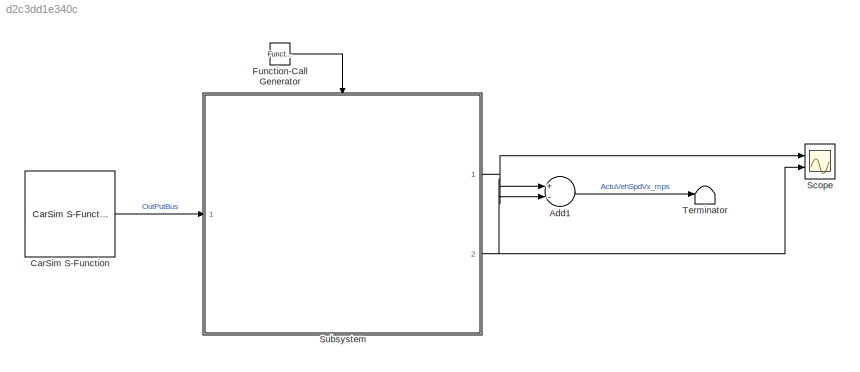
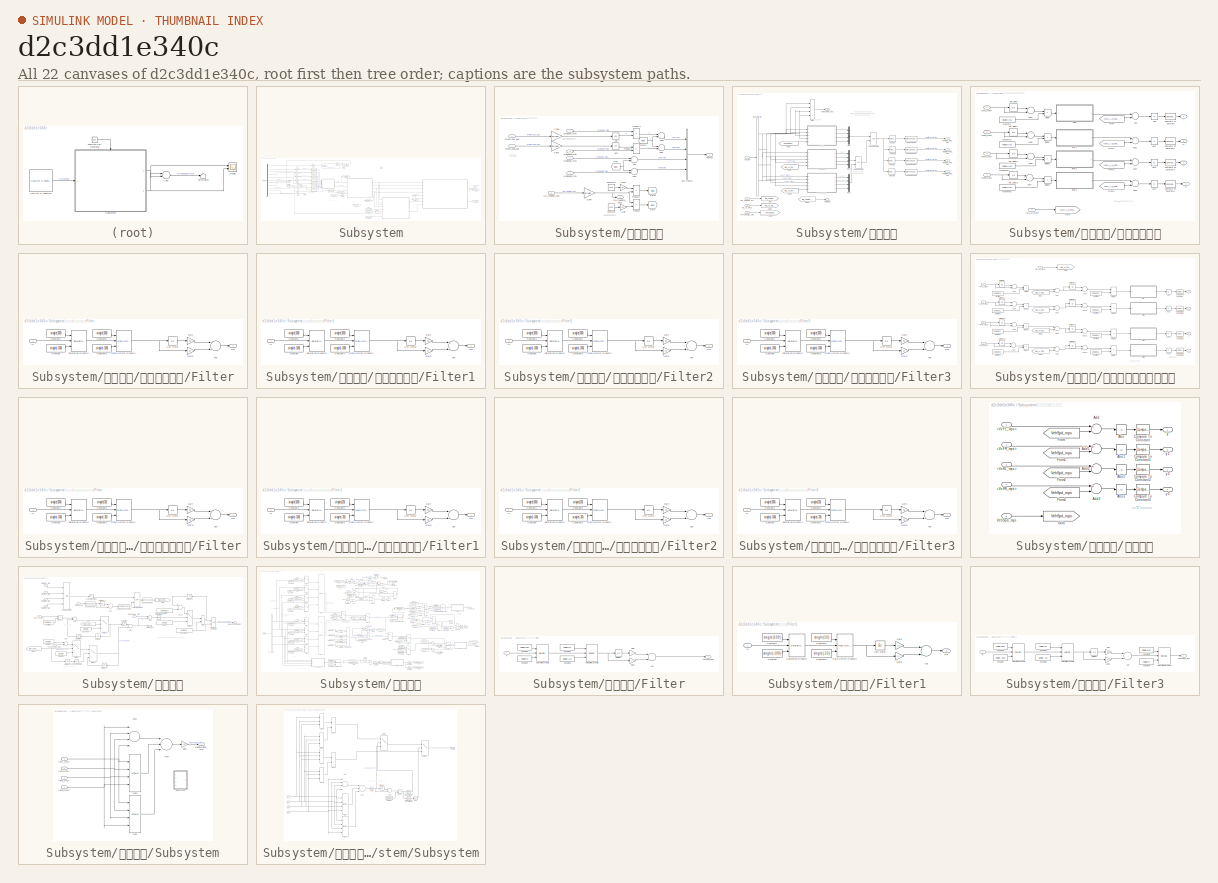
[diagram: thumbnail index - all 22 canvases of the model, root first then tree order]
MODEL slx_d2c3dd1e340c
KIND model
CONFIG AbsTol = auto
CONFIG EnableMultiTasking = off
CONFIG FixedStep = 0.01
CONFIG MaxStep = auto
CONFIG MinStep = auto
CONFIG RelTol = 1e-3
CONFIG SampleTimeConstraint = Unconstrained
CONFIG Solver = VariableStepAuto
CONFIG SolverName = VariableStepAuto
CONFIG StartTime = 0.0
CONFIG StopTime = 120
BLOCK [Sum] Add1
  InputSameDT = off
  Inputs = +-
  OutDataTypeStr = Inherit: Inherit via internal rule
  Ports = [2, 1]
  SaturateOnIntegerOverflow = off
BLOCK [Reference] CarSim S-Function  REF=Solver_SF/CarSim S-Function
  Ports = [0, 1]
  Priority = 1
  SourceBlock = Solver_SF/CarSim S-Function
  SourceProductName = CarSim S-Function
  SourceType = Vehicle math model library
BLOCK [Reference] Function-Call Generator  REF=simulink/Ports &
Subsystems/Function-Call
Generator
  Ports = [0, 1]
  SourceBlock = simulink/Ports &\nSubsystems/Function-Call\nGenerator
  SourceProductBaseCode = SL
  SourceProductName = Simulink
  SourceType = Function-Call Generator
BLOCK [Scope] Scope
  Floating = off
  NumInputPorts = 2
  Ports = [2]
  ScopeSpecificationString = Simulink.scopes.TimeScopeBlockCfg('CurrentConfiguration', extmgr.ConfigurationSet(extmgr.Configuration('Core','General UI',true),extmgr.Configuration('Core','Source UI',true),extmgr.Configuration('Sources','WiredSimulink',true),extmgr.Configuration('Visuals','Time Domain',true,'SerializedDisplays',{struct('MinYLimReal','-28.6292','MaxYLimReal','257.62547','YLabelReal','','MinYLimMag','0.00000','Ma...<+1528ch>
BLOCK [SubSystem] Subsystem
  Ports = [1, 2, 0, 1]
  RequestExecContextInheritance = off
BLOCK [Outport] Subsystem/ActuVehSpdVx_mps
  IconDisplay = Port number
  VectorParamsAs1DForOutWhenUnconnected = on
BLOCK [Sum] Subsystem/Add
  InputSameDT = off
  Inputs = -+
  OutDataTypeStr = Inherit: Inherit via internal rule
  Ports = [2, 1]
  SaturateOnIntegerOverflow = off
BLOCK [DataTypeConversion] Subsystem/Cast To Double
  OutDataTypeStr = single
  RndMeth = Floor
  SaturateOnIntegerOverflow = off
BLOCK [DataTypeConversion] Subsystem/Cast To Double1
  OutDataTypeStr = single
  RndMeth = Floor
  SaturateOnIntegerOverflow = off
BLOCK [DataTypeConversion] Subsystem/Cast To Double2
  OutDataTypeStr = single
  RndMeth = Floor
  SaturateOnIntegerOverflow = off
BLOCK [DataTypeConversion] Subsystem/Cast To Double3
  OutDataTypeStr = single
  RndMeth = Floor
  SaturateOnIntegerOverflow = off
BLOCK [DataTypeConversion] Subsystem/Cast To Double4
  OutDataTypeStr = single
  RndMeth = Floor
  SaturateOnIntegerOverflow = off
BLOCK [DataTypeConversion] Subsystem/Cast To Double5
  OutDataTypeStr = single
  RndMeth = Floor
  SaturateOnIntegerOverflow = off
BLOCK [DataTypeConversion] Subsystem/Cast To Double6
  OutDataTypeStr = single
  RndMeth = Floor
  SaturateOnIntegerOverflow = off
BLOCK [DataTypeConversion] Subsystem/Cast To Double7
  OutDataTypeStr = single
  RndMeth = Floor
  SaturateOnIntegerOverflow = off
BLOCK [Constant] Subsystem/Constant
  Value = 0.01
BLOCK [Demux] Subsystem/Demux
  DisplayOption = bar
  Outputs = 11
  Ports = [1, 11]
BLOCK [Product] Subsystem/Divide
  InputSameDT = off
  Inputs = */
  OutDataTypeStr = Inherit: Inherit via internal rule
  Ports = [2, 1]
  RndMeth = Floor
  SaturateOnIntegerOverflow = off
BLOCK [From] Subsystem/From
  Commented = on
  GotoTag = IMU_Aa_mpss
BLOCK [From] Subsystem/From1
  GotoTag = Vxii_mps
BLOCK [From] Subsystem/From2
  GotoTag = VehVxEst_mps
BLOCK [From] Subsystem/From3
  GotoTag = VehVxEst_mps
BLOCK [From] Subsystem/From4
  GotoTag = WhlSpdMax_mps
BLOCK [From] Subsystem/From5
  GotoTag = IMU_Aa_mpss
BLOCK [From] Subsystem/From6
  GotoTag = AccEst_mpss
BLOCK [Gain] Subsystem/Gain
  Gain = 1/3.6
  OutDataTypeStr = Inherit: Inherit via internal rule
  ParamDataTypeStr = Inherit: Inherit via internal rule
  SaturateOnIntegerOverflow = off
BLOCK [Gain] Subsystem/Gain1
  Gain = 1/3.6
  OutDataTypeStr = Inherit: Inherit via internal rule
  ParamDataTypeStr = Inherit: Inherit via internal rule
  SaturateOnIntegerOverflow = off
BLOCK [Gain] Subsystem/Gain2
  Gain = 1/3.6
  OutDataTypeStr = Inherit: Inherit via internal rule
  ParamDataTypeStr = Inherit: Inherit via internal rule
  SaturateOnIntegerOverflow = off
BLOCK [Gain] Subsystem/Gain3
  Gain = 1/3.6
  OutDataTypeStr = Inherit: Inherit via internal rule
  ParamDataTypeStr = Inherit: Inherit via internal rule
  SaturateOnIntegerOverflow = off
BLOCK [Gain] Subsystem/Gain4
  Gain = 1/3.6
  OutDataTypeStr = Inherit: Inherit via internal rule
  ParamDataTypeStr = Inherit: Inherit via internal rule
  SaturateOnIntegerOverflow = off
BLOCK [Gain] Subsystem/Gain5
  Gain = 10
  OutDataTypeStr = Inherit: Inherit via internal rule
  ParamDataTypeStr = Inherit: Inherit via internal rule
  SaturateOnIntegerOverflow = off
BLOCK [Gain] Subsystem/Gain6
  Gain = 10
  OutDataTypeStr = Inherit: Inherit via internal rule
  ParamDataTypeStr = Inherit: Inherit via internal rule
  SaturateOnIntegerOverflow = off
BLOCK [Gain] Subsystem/Gain7
  Gain = -1
  OutDataTypeStr = Inherit: Inherit via internal rule
  ParamDataTypeStr = Inherit: Inherit via internal rule
  SaturateOnIntegerOverflow = off
BLOCK [Gain] Subsystem/Gain8
  Gain = -1
  OutDataTypeStr = Inherit: Inherit via internal rule
  ParamDataTypeStr = Inherit: Inherit via internal rule
  SaturateOnIntegerOverflow = off
BLOCK [Gain] Subsystem/Gain9
  Gain = -1
  OutDataTypeStr = Inherit: Inherit via internal rule
  ParamDataTypeStr = Inherit: Inherit via internal rule
  SaturateOnIntegerOverflow = off
BLOCK [Goto] Subsystem/Goto
  GotoTag = VehVxEst_mps
BLOCK [Goto] Subsystem/Goto1
  GotoTag = IMU_Aa_mpss
BLOCK [Goto] Subsystem/Goto2
  GotoTag = Vxii_mps
BLOCK [Goto] Subsystem/Goto3
  GotoTag = WhlSpdMax_mps
BLOCK [Goto] Subsystem/Goto4
  GotoTag = AccEst_mpss
BLOCK [Inport] Subsystem/OutPutBus
  IconDisplay = Port number
BLOCK [Saturate] Subsystem/Saturation
  InputPortMap = u0
  LowerLimit = -100
  Ports = [1, 1]
  UpperLimit = 100
BLOCK [Terminator] Subsystem/Terminator
BLOCK [Terminator] Subsystem/Terminator1
BLOCK [UnitDelay] Subsystem/Unit Delay
  InputProcessing = Elements as channels (sample based)
  SampleTime = -1
BLOCK [UnitDelay] Subsystem/Unit Delay1
  InputProcessing = Elements as channels (sample based)
  SampleTime = -1
BLOCK [UnitDelay] Subsystem/Unit Delay2
  InputProcessing = Elements as channels (sample based)
  SampleTime = -1
BLOCK [Outport] Subsystem/VehVxEst_mps
  IconDisplay = Port number
  Port = 2
  VectorParamsAs1DForOutWhenUnconnected = on
BLOCK [TriggerPort] Subsystem/function
  Ports = []
  StatesWhenEnabling = held
  TriggerType = function-call
  VariantControl = (inherit)
BLOCK [SubSystem] Subsystem/坐标系转换
  Ports = [7, 2]
  RequestExecContextInheritance = off
BLOCK [Sum] Subsystem/坐标系转换/Add
  InputSameDT = off
  Inputs = +-
  OutDataTypeStr = Inherit: Inherit via internal rule
  Ports = [2, 1]
  SaturateOnIntegerOverflow = off
BLOCK [Sum] Subsystem/坐标系转换/Add1
  InputSameDT = off
  OutDataTypeStr = Inherit: Inherit via internal rule
  Ports = [2, 1]
  SaturateOnIntegerOverflow = off
BLOCK [Sum] Subsystem/坐标系转换/Add2
  InputSameDT = off
  Inputs = +-
  OutDataTypeStr = Inherit: Inherit via internal rule
  Ports = [2, 1]
  SaturateOnIntegerOverflow = off
BLOCK [Sum] Subsystem/坐标系转换/Add3
  InputSameDT = off
  OutDataTypeStr = Inherit: Inherit via internal rule
  Ports = [2, 1]
  SaturateOnIntegerOverflow = off
BLOCK [Trigonometry] Subsystem/坐标系转换/Asin
  Operator = cos
  Ports = [1, 1]
BLOCK [Trigonometry] Subsystem/坐标系转换/Asin1
  Operator = cos
  Ports = [1, 1]
BLOCK [BusCreator] Subsystem/坐标系转换/Bus Creator
  DisplayOption = bar
  InheritFromInputs = on
  Inputs = 4
  Ports = [4, 1]
BLOCK [Constant] Subsystem/坐标系转换/Constant
  Value = Ldwr
BLOCK [Constant] Subsystem/坐标系转换/Constant1
  Value = Ldwf
BLOCK [From] Subsystem/坐标系转换/From
  GotoTag = Vldwr
BLOCK [From] Subsystem/坐标系转换/From2
  GotoTag = Vldwf
BLOCK [Gain] Subsystem/坐标系转换/Gain
  Gain = 1/2
  OutDataTypeStr = Inherit: Inherit via internal rule
  ParamDataTypeStr = Inherit: Inherit via internal rule
  SaturateOnIntegerOverflow = off
BLOCK [Gain] Subsystem/坐标系转换/Gain1
  Gain = 1/2
  OutDataTypeStr = Inherit: Inherit via internal rule
  ParamDataTypeStr = Inherit: Inherit via internal rule
  SaturateOnIntegerOverflow = off
BLOCK [Gain] Subsystem/坐标系转换/Gain2
  Gain = pi/180
  OutDataTypeStr = Inherit: Inherit via internal rule
  ParamDataTypeStr = Inherit: Inherit via internal rule
  SaturateOnIntegerOverflow = off
BLOCK [Gain] Subsystem/坐标系转换/Gain3
  Gain = pi/180
  OutDataTypeStr = Inherit: Inherit via internal rule
  ParamDataTypeStr = Inherit: Inherit via internal rule
  SaturateOnIntegerOverflow = off
BLOCK [Gain] Subsystem/坐标系转换/Gain4
  Gain = pi/180
  OutDataTypeStr = Inherit: Inherit via internal rule
  ParamDataTypeStr = Inherit: Inherit via internal rule
  SaturateOnIntegerOverflow = off
BLOCK [Goto] Subsystem/坐标系转换/Goto
  GotoTag = Vldwr
BLOCK [Goto] Subsystem/坐标系转换/Goto1
  GotoTag = Vldwf
BLOCK [Inport] Subsystem/坐标系转换/IMU_YawRate_dps
  IconDisplay = Port number
  Port = 5
BLOCK [Outport] Subsystem/坐标系转换/IMU_YawRate_dps1
  IconDisplay = Port number
  Port = 2
  VectorParamsAs1DForOutWhenUnconnected = on
BLOCK [Product] Subsystem/坐标系转换/Product
  InputSameDT = off
  OutDataTypeStr = Inherit: Inherit via internal rule
  Ports = [2, 1]
  RndMeth = Floor
  SaturateOnIntegerOverflow = off
BLOCK [Product] Subsystem/坐标系转换/Product1
  InputSameDT = off
  OutDataTypeStr = Inherit: Inherit via internal rule
  Ports = [2, 1]
  RndMeth = Floor
  SaturateOnIntegerOverflow = off
BLOCK [Product] Subsystem/坐标系转换/Product2
  InputSameDT = off
  OutDataTypeStr = Inherit: Inherit via internal rule
  Ports = [2, 1]
  RndMeth = Floor
  SaturateOnIntegerOverflow = off
BLOCK [Product] Subsystem/坐标系转换/Product3
  InputSameDT = off
  OutDataTypeStr = Inherit: Inherit via internal rule
  Ports = [2, 1]
  RndMeth = Floor
  SaturateOnIntegerOverflow = off
BLOCK [Outport] Subsystem/坐标系转换/Vxii_mps
  IconDisplay = Port number
  VectorParamsAs1DForOutWhenUnconnected = on
BLOCK [Inport] Subsystem/坐标系转换/WhlSpdFL_mps
  IconDisplay = Port number
BLOCK [Inport] Subsystem/坐标系转换/WhlSpdFR_mps
  IconDisplay = Port number
  Port = 2
BLOCK [Inport] Subsystem/坐标系转换/WhlSpdRL_mps
  IconDisplay = Port number
  Port = 3
BLOCK [Inport] Subsystem/坐标系转换/WhlSpdRR_mps
  IconDisplay = Port number
  Port = 4
BLOCK [Inport] Subsystem/坐标系转换/WhlStrAngL_deg
  IconDisplay = Port number
  Port = 6
BLOCK [Inport] Subsystem/坐标系转换/WhlStrAngR_deg
  IconDisplay = Port number
  Port = 7
BLOCK [SubSystem] Subsystem/打滑判断
  Ports = [4, 5]
  RequestExecContextInheritance = off
BLOCK [BusSelector] Subsystem/打滑判断/Bus Selector
  OutputAsBus = off
  OutputSignals = VxFL_mps,VxFR_mps,VxRL_mps,VxRR_mps
  Ports = [1, 4]
BLOCK [DataTypeConversion] Subsystem/打滑判断/Cast To Double
  OutDataTypeStr = boolean
  RndMeth = Floor
  SaturateOnIntegerOverflow = off
BLOCK [DataTypeConversion] Subsystem/打滑判断/Cast To Double1
  OutDataTypeStr = boolean
  RndMeth = Floor
  SaturateOnIntegerOverflow = off
BLOCK [DataTypeConversion] Subsystem/打滑判断/Cast To Double2
  OutDataTypeStr = boolean
  RndMeth = Floor
  SaturateOnIntegerOverflow = off
BLOCK [DataTypeConversion] Subsystem/打滑判断/Cast To Double3
  OutDataTypeStr = boolean
  RndMeth = Floor
  SaturateOnIntegerOverflow = off
BLOCK [From] Subsystem/打滑判断/From
  GotoTag = IMU_Aa_mpsss
BLOCK [From] Subsystem/打滑判断/From1
  GotoTag = VehSpdEstiZ1_mps
BLOCK [From] Subsystem/打滑判断/From2
  GotoTag = IMU_Aa_mpsss
BLOCK [From] Subsystem/打滑判断/From3
  GotoTag = IMU_YawRate_dps
BLOCK [Goto] Subsystem/打滑判断/Goto
  GotoTag = IMU_YawRate_dps
BLOCK [Goto] Subsystem/打滑判断/Goto1
  GotoTag = IMU_Aa_mpsss
BLOCK [Goto] Subsystem/打滑判断/Goto2
  GotoTag = VehSpdEstiZ1_mps
BLOCK [Inport] Subsystem/打滑判断/IMU_Aa_mpss
  IconDisplay = Port number
  Port = 3
BLOCK [Inport] Subsystem/打滑判断/IMU_YawRate_dps
  IconDisplay = Port number
  Port = 2
BLOCK [Logic] Subsystem/打滑判断/Logical Operator
  AllPortsSameDT = off
  Operator = OR
  OutDataTypeStr = boolean
  Ports = [2, 1]
BLOCK [Logic] Subsystem/打滑判断/Logical Operator1
  AllPortsSameDT = off
  OutDataTypeStr = boolean
  Ports = [2, 1]
BLOCK [MinMax] Subsystem/打滑判断/Min1
  Function = max
  InputSameDT = off
  Inputs = 4
  Ports = [4, 1]
  SaturateOnIntegerOverflow = off
BLOCK [Mux] Subsystem/打滑判断/Mux
  DisplayOption = bar
  Ports = [4, 1]
BLOCK [Mux] Subsystem/打滑判断/Mux1
  DisplayOption = bar
  Ports = [4, 1]
BLOCK [Mux] Subsystem/打滑判断/Mux2
  DisplayOption = bar
  Ports = [4, 1]
BLOCK [Selector] Subsystem/打滑判断/Selector
  IndexOptions = Index vector (dialog)
  Indices = [1]
  InputPortWidth = 4
  OutputSizes = 1
  Ports = [1, 1]
BLOCK [Selector] Subsystem/打滑判断/Selector1
  IndexOptions = Index vector (dialog)
  Indices = [2]
  InputPortWidth = 4
  OutputSizes = 1
  Ports = [1, 1]
BLOCK [Selector] Subsystem/打滑判断/Selector2
  IndexOptions = Index vector (dialog)
  Indices = [3]
  InputPortWidth = 4
  OutputSizes = 1
  Ports = [1, 1]
BLOCK [Selector] Subsystem/打滑判断/Selector3
  IndexOptions = Index vector (dialog)
  Indices = [4]
  InputPortWidth = 4
  OutputSizes = 1
  Ports = [1, 1]
BLOCK [Terminator] Subsystem/打滑判断/Terminator
BLOCK [Inport] Subsystem/打滑判断/VehSpdEstiZ1_mps
  IconDisplay = Port number
  Port = 4
BLOCK [Inport] Subsystem/打滑判断/Vxii_mps
  IconDisplay = Port number
BLOCK [Outport] Subsystem/打滑判断/WhlSlipFLValid_flag
  IconDisplay = Port number
  VectorParamsAs1DForOutWhenUnconnected = on
BLOCK [Outport] Subsystem/打滑判断/WhlSlipFRValid_flag
  IconDisplay = Port number
  Port = 2
  VectorParamsAs1DForOutWhenUnconnected = on
BLOCK [Outport] Subsystem/打滑判断/WhlSlipRLValid_flag
  IconDisplay = Port number
  Port = 3
  VectorParamsAs1DForOutWhenUnconnected = on
BLOCK [Outport] Subsystem/打滑判断/WhlSlipRRValid_flag
  IconDisplay = Port number
  Port = 4
  VectorParamsAs1DForOutWhenUnconnected = on
BLOCK [Outport] Subsystem/打滑判断/WhlSpdMax_mps
  IconDisplay = Port number
  Port = 5
  VectorParamsAs1DForOutWhenUnconnected = on
BLOCK [SubSystem] Subsystem/打滑判断/加速度差判断
  Ports = [5, 4]
  RequestExecContextInheritance = off
BLOCK [Inport] Subsystem/打滑判断/加速度差判断/<VxFL_mps>
  IconDisplay = Port number
BLOCK [Inport] Subsystem/打滑判断/加速度差判断/<VxFR_mps>
  IconDisplay = Port number
  Port = 2
BLOCK [Inport] Subsystem/打滑判断/加速度差判断/<VxRL_mps>
  IconDisplay = Port number
  Port = 3
BLOCK [Inport] Subsystem/打滑判断/加速度差判断/<VxRR_mps>
  IconDisplay = Port number
  Port = 4
BLOCK [Abs] Subsystem/打滑判断/加速度差判断/Abs
  SaturateOnIntegerOverflow = off
BLOCK [Abs] Subsystem/打滑判断/加速度差判断/Abs1
  SaturateOnIntegerOverflow = off
BLOCK [Abs] Subsystem/打滑判断/加速度差判断/Abs2
  SaturateOnIntegerOverflow = off
BLOCK [Abs] Subsystem/打滑判断/加速度差判断/Abs3
  SaturateOnIntegerOverflow = off
BLOCK [Sum] Subsystem/打滑判断/加速度差判断/Add
  InputSameDT = off
  Inputs = +-
  OutDataTypeStr = Inherit: Inherit via internal rule
  Ports = [2, 1]
  SaturateOnIntegerOverflow = off
BLOCK [Sum] Subsystem/打滑判断/加速度差判断/Add1
  InputSameDT = off
  Inputs = +-
  OutDataTypeStr = Inherit: Inherit via internal rule
  Ports = [2, 1]
  SaturateOnIntegerOverflow = off
BLOCK [Sum] Subsystem/打滑判断/加速度差判断/Add2
  InputSameDT = off
  Inputs = +-
  OutDataTypeStr = Inherit: Inherit via internal rule
  Ports = [2, 1]
  SaturateOnIntegerOverflow = off
BLOCK [Sum] Subsystem/打滑判断/加速度差判断/Add3
  InputSameDT = off
  Inputs = +-
  OutDataTypeStr = Inherit: Inherit via internal rule
  Ports = [2, 1]
  SaturateOnIntegerOverflow = off
BLOCK [Sum] Subsystem/打滑判断/加速度差判断/Add4
  InputSameDT = off
  Inputs = -+
  OutDataTypeStr = Inherit: Inherit via internal rule
  Ports = [2, 1]
  SaturateOnIntegerOverflow = off
BLOCK [Sum] Subsystem/打滑判断/加速度差判断/Add5
  InputSameDT = off
  Inputs = -+
  OutDataTypeStr = Inherit: Inherit via internal rule
  Ports = [2, 1]
  SaturateOnIntegerOverflow = off
BLOCK [Sum] Subsystem/打滑判断/加速度差判断/Add6
  InputSameDT = off
  Inputs = -+
  OutDataTypeStr = Inherit: Inherit via internal rule
  Ports = [2, 1]
  SaturateOnIntegerOverflow = off
BLOCK [Sum] Subsystem/打滑判断/加速度差判断/Add7
  InputSameDT = off
  Inputs = -+
  OutDataTypeStr = Inherit: Inherit via internal rule
  Ports = [2, 1]
  SaturateOnIntegerOverflow = off
BLOCK [Reference] Subsystem/打滑判断/加速度差判断/Compare To Constant  REF=simulink/Logic and Bit
Operations/Compare
To Constant
  Ports = [1, 1]
  SourceBlock = simulink/Logic and Bit\nOperations/Compare\nTo Constant
  SourceProductBaseCode = SL
  SourceProductName = Simulink
  SourceType = Compare To Constant
BLOCK [Reference] Subsystem/打滑判断/加速度差判断/Compare To Constant1  REF=simulink/Logic and Bit
Operations/Compare
To Constant
  Ports = [1, 1]
  SourceBlock = simulink/Logic and Bit\nOperations/Compare\nTo Constant
  SourceProductBaseCode = SL
  SourceProductName = Simulink
  SourceType = Compare To Constant
BLOCK [Reference] Subsystem/打滑判断/加速度差判断/Compare To Constant2  REF=simulink/Logic and Bit
Operations/Compare
To Constant
  Ports = [1, 1]
  SourceBlock = simulink/Logic and Bit\nOperations/Compare\nTo Constant
  SourceProductBaseCode = SL
  SourceProductName = Simulink
  SourceType = Compare To Constant
BLOCK [Reference] Subsystem/打滑判断/加速度差判断/Compare To Constant3  REF=simulink/Logic and Bit
Operations/Compare
To Constant
  Ports = [1, 1]
  SourceBlock = simulink/Logic and Bit\nOperations/Compare\nTo Constant
  SourceProductBaseCode = SL
  SourceProductName = Simulink
  SourceType = Compare To Constant
BLOCK [Product] Subsystem/打滑判断/加速度差判断/Divide
  InputSameDT = off
  Inputs = */
  OutDataTypeStr = Inherit: Inherit via internal rule
  Ports = [2, 1]
  RndMeth = Floor
  SaturateOnIntegerOverflow = off
BLOCK [Product] Subsystem/打滑判断/加速度差判断/Divide1
  InputSameDT = off
  Inputs = */
  OutDataTypeStr = Inherit: Inherit via internal rule
  Ports = [2, 1]
  RndMeth = Floor
  SaturateOnIntegerOverflow = off
BLOCK [Product] Subsystem/打滑判断/加速度差判断/Divide2
  InputSameDT = off
  Inputs = */
  OutDataTypeStr = Inherit: Inherit via internal rule
  Ports = [2, 1]
  RndMeth = Floor
  SaturateOnIntegerOverflow = off
BLOCK [Product] Subsystem/打滑判断/加速度差判断/Divide3
  InputSameDT = off
  Inputs = */
  OutDataTypeStr = Inherit: Inherit via internal rule
  Ports = [2, 1]
  RndMeth = Floor
  SaturateOnIntegerOverflow = off
BLOCK [SubSystem] Subsystem/打滑判断/加速度差判断/Filter
  Ports = [1, 1]
  RequestExecContextInheritance = off
BLOCK [Sum] Subsystem/打滑判断/加速度差判断/Filter/Add
  InputSameDT = off
  OutDataTypeStr = Inherit: Inherit via internal rule
  Ports = [2, 1]
  SaturateOnIntegerOverflow = off
BLOCK [Constant] Subsystem/打滑判断/加速度差判断/Filter/Constant
  Value = single(-100)
BLOCK [Constant] Subsystem/打滑判断/加速度差判断/Filter/Constant1
  Value = single(100)
BLOCK [Constant] Subsystem/打滑判断/加速度差判断/Filter/Constant2
  Value = single(100)
BLOCK [Constant] Subsystem/打滑判断/加速度差判断/Filter/Constant3
  Value = single(-100)
BLOCK [Gain] Subsystem/打滑判断/加速度差判断/Filter/Gain
  Gain = 0.3
  OutDataTypeStr = Inherit: Inherit via internal rule
  ParamDataTypeStr = Inherit: Inherit via internal rule
  SaturateOnIntegerOverflow = off
BLOCK [Gain] Subsystem/打滑判断/加速度差判断/Filter/Gain1
  Gain = 0.7
  OutDataTypeStr = Inherit: Inherit via internal rule
  ParamDataTypeStr = Inherit: Inherit via internal rule
  SaturateOnIntegerOverflow = off
BLOCK [Inport] Subsystem/打滑判断/加速度差判断/Filter/In
  IconDisplay = Port number
BLOCK [Outport] Subsystem/打滑判断/加速度差判断/Filter/Out
  IconDisplay = Port number
  VectorParamsAs1DForOutWhenUnconnected = on
BLOCK [Reference] Subsystem/打滑判断/加速度差判断/Filter/Rate Limiter Dynamic  REF=simulink/Discontinuities/Rate Limiter
Dynamic
  Ports = [3, 1]
  SourceBlock = simulink/Discontinuities/Rate Limiter\nDynamic
  SourceProductBaseCode = SL
  SourceProductName = Simulink
  SourceType = Rate Limiter Dynamic
BLOCK [Reference] Subsystem/打滑判断/加速度差判断/Filter/Saturation Dynamic  REF=simulink/Discontinuities/Saturation
Dynamic
  Ports = [3, 1]
  SourceBlock = simulink/Discontinuities/Saturation\nDynamic
  SourceProductBaseCode = SL
  SourceProductName = Simulink
  SourceType = Saturation Dynamic
BLOCK [UnitDelay] Subsystem/打滑判断/加速度差判断/Filter/Unit Delay
  InputProcessing = Elements as channels (sample based)
  SampleTime = -1
BLOCK [SubSystem] Subsystem/打滑判断/加速度差判断/Filter1
  Ports = [1, 1]
  RequestExecContextInheritance = off
BLOCK [Sum] Subsystem/打滑判断/加速度差判断/Filter1/Add
  InputSameDT = off
  OutDataTypeStr = Inherit: Inherit via internal rule
  Ports = [2, 1]
  SaturateOnIntegerOverflow = off
BLOCK [Constant] Subsystem/打滑判断/加速度差判断/Filter1/Constant
  Value = single(-100)
BLOCK [Constant] Subsystem/打滑判断/加速度差判断/Filter1/Constant1
  Value = single(100)
BLOCK [Constant] Subsystem/打滑判断/加速度差判断/Filter1/Constant2
  Value = single(100)
BLOCK [Constant] Subsystem/打滑判断/加速度差判断/Filter1/Constant3
  Value = single(-100)
BLOCK [Gain] Subsystem/打滑判断/加速度差判断/Filter1/Gain
  Gain = 0.3
  OutDataTypeStr = Inherit: Inherit via internal rule
  ParamDataTypeStr = Inherit: Inherit via internal rule
  SaturateOnIntegerOverflow = off
BLOCK [Gain] Subsystem/打滑判断/加速度差判断/Filter1/Gain1
  Gain = 0.7
  OutDataTypeStr = Inherit: Inherit via internal rule
  ParamDataTypeStr = Inherit: Inherit via internal rule
  SaturateOnIntegerOverflow = off
BLOCK [Inport] Subsystem/打滑判断/加速度差判断/Filter1/In
  IconDisplay = Port number
BLOCK [Outport] Subsystem/打滑判断/加速度差判断/Filter1/Out
  IconDisplay = Port number
  VectorParamsAs1DForOutWhenUnconnected = on
BLOCK [Reference] Subsystem/打滑判断/加速度差判断/Filter1/Rate Limiter Dynamic  REF=simulink/Discontinuities/Rate Limiter
Dynamic
  Ports = [3, 1]
  SourceBlock = simulink/Discontinuities/Rate Limiter\nDynamic
  SourceProductBaseCode = SL
  SourceProductName = Simulink
  SourceType = Rate Limiter Dynamic
BLOCK [Reference] Subsystem/打滑判断/加速度差判断/Filter1/Saturation Dynamic  REF=simulink/Discontinuities/Saturation
Dynamic
  Ports = [3, 1]
  SourceBlock = simulink/Discontinuities/Saturation\nDynamic
  SourceProductBaseCode = SL
  SourceProductName = Simulink
  SourceType = Saturation Dynamic
BLOCK [UnitDelay] Subsystem/打滑判断/加速度差判断/Filter1/Unit Delay
  InputProcessing = Elements as channels (sample based)
  SampleTime = -1
BLOCK [SubSystem] Subsystem/打滑判断/加速度差判断/Filter2
  Ports = [1, 1]
  RequestExecContextInheritance = off
BLOCK [Sum] Subsystem/打滑判断/加速度差判断/Filter2/Add
  InputSameDT = off
  OutDataTypeStr = Inherit: Inherit via internal rule
  Ports = [2, 1]
  SaturateOnIntegerOverflow = off
BLOCK [Constant] Subsystem/打滑判断/加速度差判断/Filter2/Constant
  Value = single(-100)
BLOCK [Constant] Subsystem/打滑判断/加速度差判断/Filter2/Constant1
  Value = single(100)
BLOCK [Constant] Subsystem/打滑判断/加速度差判断/Filter2/Constant2
  Value = single(100)
BLOCK [Constant] Subsystem/打滑判断/加速度差判断/Filter2/Constant3
  Value = single(-100)
BLOCK [Gain] Subsystem/打滑判断/加速度差判断/Filter2/Gain
  Gain = 0.3
  OutDataTypeStr = Inherit: Inherit via internal rule
  ParamDataTypeStr = Inherit: Inherit via internal rule
  SaturateOnIntegerOverflow = off
BLOCK [Gain] Subsystem/打滑判断/加速度差判断/Filter2/Gain1
  Gain = 0.7
  OutDataTypeStr = Inherit: Inherit via internal rule
  ParamDataTypeStr = Inherit: Inherit via internal rule
  SaturateOnIntegerOverflow = off
BLOCK [Inport] Subsystem/打滑判断/加速度差判断/Filter2/In
  IconDisplay = Port number
BLOCK [Outport] Subsystem/打滑判断/加速度差判断/Filter2/Out
  IconDisplay = Port number
  VectorParamsAs1DForOutWhenUnconnected = on
BLOCK [Reference] Subsystem/打滑判断/加速度差判断/Filter2/Rate Limiter Dynamic  REF=simulink/Discontinuities/Rate Limiter
Dynamic
  Ports = [3, 1]
  SourceBlock = simulink/Discontinuities/Rate Limiter\nDynamic
  SourceProductBaseCode = SL
  SourceProductName = Simulink
  SourceType = Rate Limiter Dynamic
BLOCK [Reference] Subsystem/打滑判断/加速度差判断/Filter2/Saturation Dynamic  REF=simulink/Discontinuities/Saturation
Dynamic
  Ports = [3, 1]
  SourceBlock = simulink/Discontinuities/Saturation\nDynamic
  SourceProductBaseCode = SL
  SourceProductName = Simulink
  SourceType = Saturation Dynamic
BLOCK [UnitDelay] Subsystem/打滑判断/加速度差判断/Filter2/Unit Delay
  InputProcessing = Elements as channels (sample based)
  SampleTime = -1
BLOCK [SubSystem] Subsystem/打滑判断/加速度差判断/Filter3
  Ports = [1, 1]
  RequestExecContextInheritance = off
BLOCK [Sum] Subsystem/打滑判断/加速度差判断/Filter3/Add
  InputSameDT = off
  OutDataTypeStr = Inherit: Inherit via internal rule
  Ports = [2, 1]
  SaturateOnIntegerOverflow = off
BLOCK [Constant] Subsystem/打滑判断/加速度差判断/Filter3/Constant
  Value = single(-100)
BLOCK [Constant] Subsystem/打滑判断/加速度差判断/Filter3/Constant1
  Value = single(100)
BLOCK [Constant] Subsystem/打滑判断/加速度差判断/Filter3/Constant2
  Value = single(100)
BLOCK [Constant] Subsystem/打滑判断/加速度差判断/Filter3/Constant3
  Value = single(-100)
BLOCK [Gain] Subsystem/打滑判断/加速度差判断/Filter3/Gain
  Gain = 0.3
  OutDataTypeStr = Inherit: Inherit via internal rule
  ParamDataTypeStr = Inherit: Inherit via internal rule
  SaturateOnIntegerOverflow = off
BLOCK [Gain] Subsystem/打滑判断/加速度差判断/Filter3/Gain1
  Gain = 0.7
  OutDataTypeStr = Inherit: Inherit via internal rule
  ParamDataTypeStr = Inherit: Inherit via internal rule
  SaturateOnIntegerOverflow = off
BLOCK [Inport] Subsystem/打滑判断/加速度差判断/Filter3/In
  IconDisplay = Port number
BLOCK [Outport] Subsystem/打滑判断/加速度差判断/Filter3/Out
  IconDisplay = Port number
  VectorParamsAs1DForOutWhenUnconnected = on
BLOCK [Reference] Subsystem/打滑判断/加速度差判断/Filter3/Rate Limiter Dynamic  REF=simulink/Discontinuities/Rate Limiter
Dynamic
  Ports = [3, 1]
  SourceBlock = simulink/Discontinuities/Rate Limiter\nDynamic
  SourceProductBaseCode = SL
  SourceProductName = Simulink
  SourceType = Rate Limiter Dynamic
BLOCK [Reference] Subsystem/打滑判断/加速度差判断/Filter3/Saturation Dynamic  REF=simulink/Discontinuities/Saturation
Dynamic
  Ports = [3, 1]
  SourceBlock = simulink/Discontinuities/Saturation\nDynamic
  SourceProductBaseCode = SL
  SourceProductName = Simulink
  SourceType = Saturation Dynamic
BLOCK [UnitDelay] Subsystem/打滑判断/加速度差判断/Filter3/Unit Delay
  InputProcessing = Elements as channels (sample based)
  SampleTime = -1
BLOCK [From] Subsystem/打滑判断/加速度差判断/From
  GotoTag = IMU_Ax_mpss
BLOCK [From] Subsystem/打滑判断/加速度差判断/From1
  GotoTag = IMU_Ax_mpss
BLOCK [From] Subsystem/打滑判断/加速度差判断/From2
  GotoTag = IMU_Ax_mpss
BLOCK [From] Subsystem/打滑判断/加速度差判断/From3
  GotoTag = IMU_Ax_mpss
BLOCK [Goto] Subsystem/打滑判断/加速度差判断/Goto
  GotoTag = IMU_Ax_mpss
BLOCK [Inport] Subsystem/打滑判断/加速度差判断/IMU_Ax_mpss
  IconDisplay = Port number
  Port = 5
BLOCK [UnitDelay] Subsystem/打滑判断/加速度差判断/Unit Delay
  InputProcessing = Elements as channels (sample based)
  SampleTime = -1
BLOCK [UnitDelay] Subsystem/打滑判断/加速度差判断/Unit Delay1
  InputProcessing = Elements as channels (sample based)
  SampleTime = -1
BLOCK [UnitDelay] Subsystem/打滑判断/加速度差判断/Unit Delay2
  InputProcessing = Elements as channels (sample based)
  SampleTime = -1
BLOCK [UnitDelay] Subsystem/打滑判断/加速度差判断/Unit Delay3
  InputProcessing = Elements as channels (sample based)
  SampleTime = -1
BLOCK [Constant] Subsystem/打滑判断/加速度差判断/steptime
  Value = single(0.01)
BLOCK [Constant] Subsystem/打滑判断/加速度差判断/steptime1
  Value = single(0.01)
BLOCK [Constant] Subsystem/打滑判断/加速度差判断/steptime2
  Value = single(0.01)
BLOCK [Constant] Subsystem/打滑判断/加速度差判断/steptime3
  Value = single(0.01)
BLOCK [Outport] Subsystem/打滑判断/加速度差判断/y
  IconDisplay = Port number
  VectorParamsAs1DForOutWhenUnconnected = on
BLOCK [Outport] Subsystem/打滑判断/加速度差判断/y1
  IconDisplay = Port number
  Port = 2
  VectorParamsAs1DForOutWhenUnconnected = on
BLOCK [Outport] Subsystem/打滑判断/加速度差判断/y2
  IconDisplay = Port number
  Port = 3
  VectorParamsAs1DForOutWhenUnconnected = on
BLOCK [Outport] Subsystem/打滑判断/加速度差判断/y3
  IconDisplay = Port number
  Port = 4
  VectorParamsAs1DForOutWhenUnconnected = on
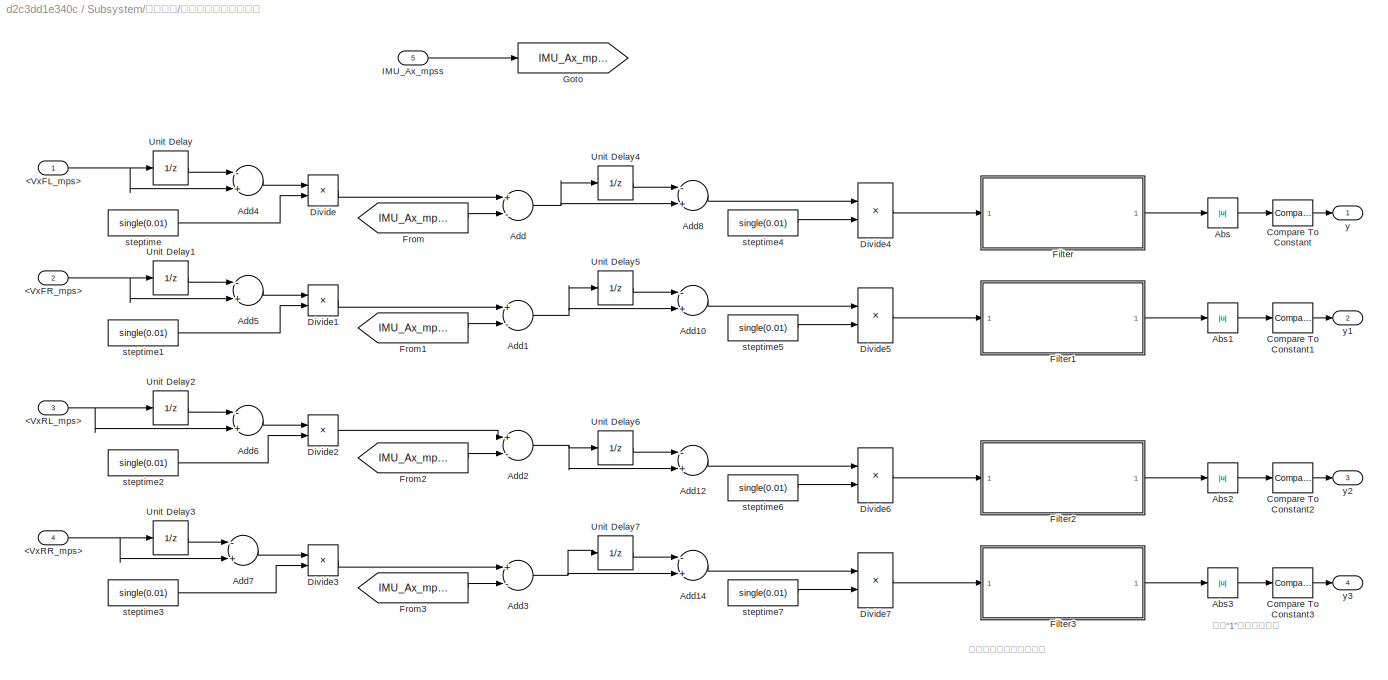
BLOCK [SubSystem] Subsystem/打滑判断/加速度差的微分的判断
  Ports = [5, 4]
  RequestExecContextInheritance = off
BLOCK [Inport] Subsystem/打滑判断/加速度差的微分的判断/<VxFL_mps>
  IconDisplay = Port number
BLOCK [Inport] Subsystem/打滑判断/加速度差的微分的判断/<VxFR_mps>
  IconDisplay = Port number
  Port = 2
BLOCK [Inport] Subsystem/打滑判断/加速度差的微分的判断/<VxRL_mps>
  IconDisplay = Port number
  Port = 3
BLOCK [Inport] Subsystem/打滑判断/加速度差的微分的判断/<VxRR_mps>
  IconDisplay = Port number
  Port = 4
BLOCK [Abs] Subsystem/打滑判断/加速度差的微分的判断/Abs
  SaturateOnIntegerOverflow = off
BLOCK [Abs] Subsystem/打滑判断/加速度差的微分的判断/Abs1
  SaturateOnIntegerOverflow = off
BLOCK [Abs] Subsystem/打滑判断/加速度差的微分的判断/Abs2
  SaturateOnIntegerOverflow = off
BLOCK [Abs] Subsystem/打滑判断/加速度差的微分的判断/Abs3
  SaturateOnIntegerOverflow = off
BLOCK [Sum] Subsystem/打滑判断/加速度差的微分的判断/Add
  InputSameDT = off
  Inputs = +-
  OutDataTypeStr = Inherit: Inherit via internal rule
  Ports = [2, 1]
  SaturateOnIntegerOverflow = off
BLOCK [Sum] Subsystem/打滑判断/加速度差的微分的判断/Add1
  InputSameDT = off
  Inputs = +-
  OutDataTypeStr = Inherit: Inherit via internal rule
  Ports = [2, 1]
  SaturateOnIntegerOverflow = off
BLOCK [Sum] Subsystem/打滑判断/加速度差的微分的判断/Add10
  InputSameDT = off
  Inputs = -+
  OutDataTypeStr = Inherit: Inherit via internal rule
  Ports = [2, 1]
  SaturateOnIntegerOverflow = off
BLOCK [Sum] Subsystem/打滑判断/加速度差的微分的判断/Add12
  InputSameDT = off
  Inputs = -+
  OutDataTypeStr = Inherit: Inherit via internal rule
  Ports = [2, 1]
  SaturateOnIntegerOverflow = off
BLOCK [Sum] Subsystem/打滑判断/加速度差的微分的判断/Add14
  InputSameDT = off
  Inputs = -+
  OutDataTypeStr = Inherit: Inherit via internal rule
  Ports = [2, 1]
  SaturateOnIntegerOverflow = off
BLOCK [Sum] Subsystem/打滑判断/加速度差的微分的判断/Add2
  InputSameDT = off
  Inputs = +-
  OutDataTypeStr = Inherit: Inherit via internal rule
  Ports = [2, 1]
  SaturateOnIntegerOverflow = off
BLOCK [Sum] Subsystem/打滑判断/加速度差的微分的判断/Add3
  InputSameDT = off
  Inputs = +-
  OutDataTypeStr = Inherit: Inherit via internal rule
  Ports = [2, 1]
  SaturateOnIntegerOverflow = off
BLOCK [Sum] Subsystem/打滑判断/加速度差的微分的判断/Add4
  InputSameDT = off
  Inputs = -+
  OutDataTypeStr = Inherit: Inherit via internal rule
  Ports = [2, 1]
  SaturateOnIntegerOverflow = off
BLOCK [Sum] Subsystem/打滑判断/加速度差的微分的判断/Add5
  InputSameDT = off
  Inputs = -+
  OutDataTypeStr = Inherit: Inherit via internal rule
  Ports = [2, 1]
  SaturateOnIntegerOverflow = off
BLOCK [Sum] Subsystem/打滑判断/加速度差的微分的判断/Add6
  InputSameDT = off
  Inputs = -+
  OutDataTypeStr = Inherit: Inherit via internal rule
  Ports = [2, 1]
  SaturateOnIntegerOverflow = off
BLOCK [Sum] Subsystem/打滑判断/加速度差的微分的判断/Add7
  InputSameDT = off
  Inputs = -+
  OutDataTypeStr = Inherit: Inherit via internal rule
  Ports = [2, 1]
  SaturateOnIntegerOverflow = off
BLOCK [Sum] Subsystem/打滑判断/加速度差的微分的判断/Add8
  InputSameDT = off
  Inputs = -+
  OutDataTypeStr = Inherit: Inherit via internal rule
  Ports = [2, 1]
  SaturateOnIntegerOverflow = off
BLOCK [Reference] Subsystem/打滑判断/加速度差的微分的判断/Compare To Constant  REF=simulink/Logic and Bit
Operations/Compare
To Constant
  Ports = [1, 1]
  SourceBlock = simulink/Logic and Bit\nOperations/Compare\nTo Constant
  SourceProductBaseCode = SL
  SourceProductName = Simulink
  SourceType = Compare To Constant
BLOCK [Reference] Subsystem/打滑判断/加速度差的微分的判断/Compare To Constant1  REF=simulink/Logic and Bit
Operations/Compare
To Constant
  Ports = [1, 1]
  SourceBlock = simulink/Logic and Bit\nOperations/Compare\nTo Constant
  SourceProductBaseCode = SL
  SourceProductName = Simulink
  SourceType = Compare To Constant
BLOCK [Reference] Subsystem/打滑判断/加速度差的微分的判断/Compare To Constant2  REF=simulink/Logic and Bit
Operations/Compare
To Constant
  Ports = [1, 1]
  SourceBlock = simulink/Logic and Bit\nOperations/Compare\nTo Constant
  SourceProductBaseCode = SL
  SourceProductName = Simulink
  SourceType = Compare To Constant
BLOCK [Reference] Subsystem/打滑判断/加速度差的微分的判断/Compare To Constant3  REF=simulink/Logic and Bit
Operations/Compare
To Constant
  Ports = [1, 1]
  SourceBlock = simulink/Logic and Bit\nOperations/Compare\nTo Constant
  SourceProductBaseCode = SL
  SourceProductName = Simulink
  SourceType = Compare To Constant
BLOCK [Product] Subsystem/打滑判断/加速度差的微分的判断/Divide
  InputSameDT = off
  Inputs = */
  OutDataTypeStr = Inherit: Inherit via internal rule
  Ports = [2, 1]
  RndMeth = Floor
  SaturateOnIntegerOverflow = off
BLOCK [Product] Subsystem/打滑判断/加速度差的微分的判断/Divide1
  InputSameDT = off
  Inputs = */
  OutDataTypeStr = Inherit: Inherit via internal rule
  Ports = [2, 1]
  RndMeth = Floor
  SaturateOnIntegerOverflow = off
BLOCK [Product] Subsystem/打滑判断/加速度差的微分的判断/Divide2
  InputSameDT = off
  Inputs = */
  OutDataTypeStr = Inherit: Inherit via internal rule
  Ports = [2, 1]
  RndMeth = Floor
  SaturateOnIntegerOverflow = off
BLOCK [Product] Subsystem/打滑判断/加速度差的微分的判断/Divide3
  InputSameDT = off
  Inputs = */
  OutDataTypeStr = Inherit: Inherit via internal rule
  Ports = [2, 1]
  RndMeth = Floor
  SaturateOnIntegerOverflow = off
BLOCK [Product] Subsystem/打滑判断/加速度差的微分的判断/Divide4
  InputSameDT = off
  Inputs = */
  OutDataTypeStr = Inherit: Inherit via internal rule
  Ports = [2, 1]
  RndMeth = Floor
  SaturateOnIntegerOverflow = off
BLOCK [Product] Subsystem/打滑判断/加速度差的微分的判断/Divide5
  InputSameDT = off
  Inputs = */
  OutDataTypeStr = Inherit: Inherit via internal rule
  Ports = [2, 1]
  RndMeth = Floor
  SaturateOnIntegerOverflow = off
BLOCK [Product] Subsystem/打滑判断/加速度差的微分的判断/Divide6
  InputSameDT = off
  Inputs = */
  OutDataTypeStr = Inherit: Inherit via internal rule
  Ports = [2, 1]
  RndMeth = Floor
  SaturateOnIntegerOverflow = off
BLOCK [Product] Subsystem/打滑判断/加速度差的微分的判断/Divide7
  InputSameDT = off
  Inputs = */
  OutDataTypeStr = Inherit: Inherit via internal rule
  Ports = [2, 1]
  RndMeth = Floor
  SaturateOnIntegerOverflow = off
BLOCK [SubSystem] Subsystem/打滑判断/加速度差的微分的判断/Filter
  Ports = [1, 1]
  RequestExecContextInheritance = off
BLOCK [Sum] Subsystem/打滑判断/加速度差的微分的判断/Filter/Add
  InputSameDT = off
  OutDataTypeStr = Inherit: Inherit via internal rule
  Ports = [2, 1]
  SaturateOnIntegerOverflow = off
BLOCK [Constant] Subsystem/打滑判断/加速度差的微分的判断/Filter/Constant
  Value = single(-100)
BLOCK [Constant] Subsystem/打滑判断/加速度差的微分的判断/Filter/Constant1
  Value = single(100)
BLOCK [Constant] Subsystem/打滑判断/加速度差的微分的判断/Filter/Constant2
  Value = single(20)
BLOCK [Constant] Subsystem/打滑判断/加速度差的微分的判断/Filter/Constant3
  Value = single(-20)
BLOCK [Gain] Subsystem/打滑判断/加速度差的微分的判断/Filter/Gain
  Gain = 0.5
  OutDataTypeStr = Inherit: Inherit via internal rule
  ParamDataTypeStr = Inherit: Inherit via internal rule
  SaturateOnIntegerOverflow = off
BLOCK [Gain] Subsystem/打滑判断/加速度差的微分的判断/Filter/Gain1
  Gain = 0.5
  OutDataTypeStr = Inherit: Inherit via internal rule
  ParamDataTypeStr = Inherit: Inherit via internal rule
  SaturateOnIntegerOverflow = off
BLOCK [Inport] Subsystem/打滑判断/加速度差的微分的判断/Filter/In
  IconDisplay = Port number
BLOCK [Outport] Subsystem/打滑判断/加速度差的微分的判断/Filter/Out
  IconDisplay = Port number
  VectorParamsAs1DForOutWhenUnconnected = on
BLOCK [Reference] Subsystem/打滑判断/加速度差的微分的判断/Filter/Rate Limiter Dynamic  REF=simulink/Discontinuities/Rate Limiter
Dynamic
  Ports = [3, 1]
  SourceBlock = simulink/Discontinuities/Rate Limiter\nDynamic
  SourceProductBaseCode = SL
  SourceProductName = Simulink
  SourceType = Rate Limiter Dynamic
BLOCK [Reference] Subsystem/打滑判断/加速度差的微分的判断/Filter/Saturation Dynamic  REF=simulink/Discontinuities/Saturation
Dynamic
  Ports = [3, 1]
  SourceBlock = simulink/Discontinuities/Saturation\nDynamic
  SourceProductBaseCode = SL
  SourceProductName = Simulink
  SourceType = Saturation Dynamic
BLOCK [UnitDelay] Subsystem/打滑判断/加速度差的微分的判断/Filter/Unit Delay
  InputProcessing = Elements as channels (sample based)
  SampleTime = -1
BLOCK [SubSystem] Subsystem/打滑判断/加速度差的微分的判断/Filter1
  Ports = [1, 1]
  RequestExecContextInheritance = off
BLOCK [Sum] Subsystem/打滑判断/加速度差的微分的判断/Filter1/Add
  InputSameDT = off
  OutDataTypeStr = Inherit: Inherit via internal rule
  Ports = [2, 1]
  SaturateOnIntegerOverflow = off
BLOCK [Constant] Subsystem/打滑判断/加速度差的微分的判断/Filter1/Constant
  Value = single(-100)
BLOCK [Constant] Subsystem/打滑判断/加速度差的微分的判断/Filter1/Constant1
  Value = single(100)
BLOCK [Constant] Subsystem/打滑判断/加速度差的微分的判断/Filter1/Constant2
  Value = single(20)
BLOCK [Constant] Subsystem/打滑判断/加速度差的微分的判断/Filter1/Constant3
  Value = single(-20)
BLOCK [Gain] Subsystem/打滑判断/加速度差的微分的判断/Filter1/Gain
  Gain = 0.5
  OutDataTypeStr = Inherit: Inherit via internal rule
  ParamDataTypeStr = Inherit: Inherit via internal rule
  SaturateOnIntegerOverflow = off
BLOCK [Gain] Subsystem/打滑判断/加速度差的微分的判断/Filter1/Gain1
  Gain = 0.5
  OutDataTypeStr = Inherit: Inherit via internal rule
  ParamDataTypeStr = Inherit: Inherit via internal rule
  SaturateOnIntegerOverflow = off
BLOCK [Inport] Subsystem/打滑判断/加速度差的微分的判断/Filter1/In
  IconDisplay = Port number
BLOCK [Outport] Subsystem/打滑判断/加速度差的微分的判断/Filter1/Out
  IconDisplay = Port number
  VectorParamsAs1DForOutWhenUnconnected = on
BLOCK [Reference] Subsystem/打滑判断/加速度差的微分的判断/Filter1/Rate Limiter Dynamic  REF=simulink/Discontinuities/Rate Limiter
Dynamic
  Ports = [3, 1]
  SourceBlock = simulink/Discontinuities/Rate Limiter\nDynamic
  SourceProductBaseCode = SL
  SourceProductName = Simulink
  SourceType = Rate Limiter Dynamic
BLOCK [Reference] Subsystem/打滑判断/加速度差的微分的判断/Filter1/Saturation Dynamic  REF=simulink/Discontinuities/Saturation
Dynamic
  Ports = [3, 1]
  SourceBlock = simulink/Discontinuities/Saturation\nDynamic
  SourceProductBaseCode = SL
  SourceProductName = Simulink
  SourceType = Saturation Dynamic
BLOCK [UnitDelay] Subsystem/打滑判断/加速度差的微分的判断/Filter1/Unit Delay
  InputProcessing = Elements as channels (sample based)
  SampleTime = -1
BLOCK [SubSystem] Subsystem/打滑判断/加速度差的微分的判断/Filter2
  Ports = [1, 1]
  RequestExecContextInheritance = off
BLOCK [Sum] Subsystem/打滑判断/加速度差的微分的判断/Filter2/Add
  InputSameDT = off
  OutDataTypeStr = Inherit: Inherit via internal rule
  Ports = [2, 1]
  SaturateOnIntegerOverflow = off
BLOCK [Constant] Subsystem/打滑判断/加速度差的微分的判断/Filter2/Constant
  Value = single(-100)
BLOCK [Constant] Subsystem/打滑判断/加速度差的微分的判断/Filter2/Constant1
  Value = single(100)
BLOCK [Constant] Subsystem/打滑判断/加速度差的微分的判断/Filter2/Constant2
  Value = single(20)
BLOCK [Constant] Subsystem/打滑判断/加速度差的微分的判断/Filter2/Constant3
  Value = single(-20)
BLOCK [Gain] Subsystem/打滑判断/加速度差的微分的判断/Filter2/Gain
  Gain = 0.5
  OutDataTypeStr = Inherit: Inherit via internal rule
  ParamDataTypeStr = Inherit: Inherit via internal rule
  SaturateOnIntegerOverflow = off
BLOCK [Gain] Subsystem/打滑判断/加速度差的微分的判断/Filter2/Gain1
  Gain = 0.5
  OutDataTypeStr = Inherit: Inherit via internal rule
  ParamDataTypeStr = Inherit: Inherit via internal rule
  SaturateOnIntegerOverflow = off
BLOCK [Inport] Subsystem/打滑判断/加速度差的微分的判断/Filter2/In
  IconDisplay = Port number
BLOCK [Outport] Subsystem/打滑判断/加速度差的微分的判断/Filter2/Out
  IconDisplay = Port number
  VectorParamsAs1DForOutWhenUnconnected = on
BLOCK [Reference] Subsystem/打滑判断/加速度差的微分的判断/Filter2/Rate Limiter Dynamic  REF=simulink/Discontinuities/Rate Limiter
Dynamic
  Ports = [3, 1]
  SourceBlock = simulink/Discontinuities/Rate Limiter\nDynamic
  SourceProductBaseCode = SL
  SourceProductName = Simulink
  SourceType = Rate Limiter Dynamic
BLOCK [Reference] Subsystem/打滑判断/加速度差的微分的判断/Filter2/Saturation Dynamic  REF=simulink/Discontinuities/Saturation
Dynamic
  Ports = [3, 1]
  SourceBlock = simulink/Discontinuities/Saturation\nDynamic
  SourceProductBaseCode = SL
  SourceProductName = Simulink
  SourceType = Saturation Dynamic
BLOCK [UnitDelay] Subsystem/打滑判断/加速度差的微分的判断/Filter2/Unit Delay
  InputProcessing = Elements as channels (sample based)
  SampleTime = -1
BLOCK [SubSystem] Subsystem/打滑判断/加速度差的微分的判断/Filter3
  Ports = [1, 1]
  RequestExecContextInheritance = off
BLOCK [Sum] Subsystem/打滑判断/加速度差的微分的判断/Filter3/Add
  InputSameDT = off
  OutDataTypeStr = Inherit: Inherit via internal rule
  Ports = [2, 1]
  SaturateOnIntegerOverflow = off
BLOCK [Constant] Subsystem/打滑判断/加速度差的微分的判断/Filter3/Constant
  Value = single(-100)
BLOCK [Constant] Subsystem/打滑判断/加速度差的微分的判断/Filter3/Constant1
  Value = single(100)
BLOCK [Constant] Subsystem/打滑判断/加速度差的微分的判断/Filter3/Constant2
  Value = single(20)
BLOCK [Constant] Subsystem/打滑判断/加速度差的微分的判断/Filter3/Constant3
  Value = single(-20)
BLOCK [Gain] Subsystem/打滑判断/加速度差的微分的判断/Filter3/Gain
  Gain = 0.5
  OutDataTypeStr = Inherit: Inherit via internal rule
  ParamDataTypeStr = Inherit: Inherit via internal rule
  SaturateOnIntegerOverflow = off
BLOCK [Gain] Subsystem/打滑判断/加速度差的微分的判断/Filter3/Gain1
  Gain = 0.5
  OutDataTypeStr = Inherit: Inherit via internal rule
  ParamDataTypeStr = Inherit: Inherit via internal rule
  SaturateOnIntegerOverflow = off
BLOCK [Inport] Subsystem/打滑判断/加速度差的微分的判断/Filter3/In
  IconDisplay = Port number
BLOCK [Outport] Subsystem/打滑判断/加速度差的微分的判断/Filter3/Out
  IconDisplay = Port number
  VectorParamsAs1DForOutWhenUnconnected = on
BLOCK [Reference] Subsystem/打滑判断/加速度差的微分的判断/Filter3/Rate Limiter Dynamic  REF=simulink/Discontinuities/Rate Limiter
Dynamic
  Ports = [3, 1]
  SourceBlock = simulink/Discontinuities/Rate Limiter\nDynamic
  SourceProductBaseCode = SL
  SourceProductName = Simulink
  SourceType = Rate Limiter Dynamic
BLOCK [Reference] Subsystem/打滑判断/加速度差的微分的判断/Filter3/Saturation Dynamic  REF=simulink/Discontinuities/Saturation
Dynamic
  Ports = [3, 1]
  SourceBlock = simulink/Discontinuities/Saturation\nDynamic
  SourceProductBaseCode = SL
  SourceProductName = Simulink
  SourceType = Saturation Dynamic
BLOCK [UnitDelay] Subsystem/打滑判断/加速度差的微分的判断/Filter3/Unit Delay
  InputProcessing = Elements as channels (sample based)
  SampleTime = -1
BLOCK [From] Subsystem/打滑判断/加速度差的微分的判断/From
  GotoTag = IMU_Ax_mpss
BLOCK [From] Subsystem/打滑判断/加速度差的微分的判断/From1
  GotoTag = IMU_Ax_mpss
BLOCK [From] Subsystem/打滑判断/加速度差的微分的判断/From2
  GotoTag = IMU_Ax_mpss
BLOCK [From] Subsystem/打滑判断/加速度差的微分的判断/From3
  GotoTag = IMU_Ax_mpss
BLOCK [Goto] Subsystem/打滑判断/加速度差的微分的判断/Goto
  GotoTag = IMU_Ax_mpss
BLOCK [Inport] Subsystem/打滑判断/加速度差的微分的判断/IMU_Ax_mpss
  IconDisplay = Port number
  Port = 5
BLOCK [UnitDelay] Subsystem/打滑判断/加速度差的微分的判断/Unit Delay
  InputProcessing = Elements as channels (sample based)
  SampleTime = -1
BLOCK [UnitDelay] Subsystem/打滑判断/加速度差的微分的判断/Unit Delay1
  InputProcessing = Elements as channels (sample based)
  SampleTime = -1
BLOCK [UnitDelay] Subsystem/打滑判断/加速度差的微分的判断/Unit Delay2
  InputProcessing = Elements as channels (sample based)
  SampleTime = -1
BLOCK [UnitDelay] Subsystem/打滑判断/加速度差的微分的判断/Unit Delay3
  InputProcessing = Elements as channels (sample based)
  SampleTime = -1
BLOCK [UnitDelay] Subsystem/打滑判断/加速度差的微分的判断/Unit Delay4
  InputProcessing = Elements as channels (sample based)
  SampleTime = -1
BLOCK [UnitDelay] Subsystem/打滑判断/加速度差的微分的判断/Unit Delay5
  InputProcessing = Elements as channels (sample based)
  SampleTime = -1
BLOCK [UnitDelay] Subsystem/打滑判断/加速度差的微分的判断/Unit Delay6
  InputProcessing = Elements as channels (sample based)
  SampleTime = -1
BLOCK [UnitDelay] Subsystem/打滑判断/加速度差的微分的判断/Unit Delay7
  InputProcessing = Elements as channels (sample based)
  SampleTime = -1
BLOCK [Constant] Subsystem/打滑判断/加速度差的微分的判断/steptime
  Value = single(0.01)
BLOCK [Constant] Subsystem/打滑判断/加速度差的微分的判断/steptime1
  Value = single(0.01)
BLOCK [Constant] Subsystem/打滑判断/加速度差的微分的判断/steptime2
  Value = single(0.01)
BLOCK [Constant] Subsystem/打滑判断/加速度差的微分的判断/steptime3
  Value = single(0.01)
BLOCK [Constant] Subsystem/打滑判断/加速度差的微分的判断/steptime4
  Value = single(0.01)
BLOCK [Constant] Subsystem/打滑判断/加速度差的微分的判断/steptime5
  Value = single(0.01)
BLOCK [Constant] Subsystem/打滑判断/加速度差的微分的判断/steptime6
  Value = single(0.01)
BLOCK [Constant] Subsystem/打滑判断/加速度差的微分的判断/steptime7
  Value = single(0.01)
BLOCK [Outport] Subsystem/打滑判断/加速度差的微分的判断/y
  IconDisplay = Port number
  VectorParamsAs1DForOutWhenUnconnected = on
BLOCK [Outport] Subsystem/打滑判断/加速度差的微分的判断/y1
  IconDisplay = Port number
  Port = 2
  VectorParamsAs1DForOutWhenUnconnected = on
BLOCK [Outport] Subsystem/打滑判断/加速度差的微分的判断/y2
  IconDisplay = Port number
  Port = 3
  VectorParamsAs1DForOutWhenUnconnected = on
BLOCK [Outport] Subsystem/打滑判断/加速度差的微分的判断/y3
  IconDisplay = Port number
  Port = 4
  VectorParamsAs1DForOutWhenUnconnected = on
BLOCK [SubSystem] Subsystem/打滑判断/速差判断
  Ports = [5, 4]
  RequestExecContextInheritance = off
BLOCK [Inport] Subsystem/打滑判断/速差判断/<VxFL_mps>
  IconDisplay = Port number
BLOCK [Inport] Subsystem/打滑判断/速差判断/<VxFR_mps>
  IconDisplay = Port number
  Port = 2
BLOCK [Inport] Subsystem/打滑判断/速差判断/<VxRL_mps>
  IconDisplay = Port number
  Port = 3
BLOCK [Inport] Subsystem/打滑判断/速差判断/<VxRR_mps>
  IconDisplay = Port number
  Port = 4
BLOCK [Abs] Subsystem/打滑判断/速差判断/Abs
  SaturateOnIntegerOverflow = off
BLOCK [Abs] Subsystem/打滑判断/速差判断/Abs1
  SaturateOnIntegerOverflow = off
BLOCK [Abs] Subsystem/打滑判断/速差判断/Abs2
  SaturateOnIntegerOverflow = off
BLOCK [Abs] Subsystem/打滑判断/速差判断/Abs3
  SaturateOnIntegerOverflow = off
BLOCK [Sum] Subsystem/打滑判断/速差判断/Add
  InputSameDT = off
  Inputs = +-
  OutDataTypeStr = Inherit: Inherit via internal rule
  Ports = [2, 1]
  SaturateOnIntegerOverflow = off
BLOCK [Sum] Subsystem/打滑判断/速差判断/Add1
  InputSameDT = off
  Inputs = +-
  OutDataTypeStr = Inherit: Inherit via internal rule
  Ports = [2, 1]
  SaturateOnIntegerOverflow = off
BLOCK [Sum] Subsystem/打滑判断/速差判断/Add2
  InputSameDT = off
  Inputs = +-
  OutDataTypeStr = Inherit: Inherit via internal rule
  Ports = [2, 1]
  SaturateOnIntegerOverflow = off
BLOCK [Sum] Subsystem/打滑判断/速差判断/Add3
  InputSameDT = off
  Inputs = +-
  OutDataTypeStr = Inherit: Inherit via internal rule
  Ports = [2, 1]
  SaturateOnIntegerOverflow = off
BLOCK [Reference] Subsystem/打滑判断/速差判断/Compare To Constant  REF=simulink/Logic and Bit
Operations/Compare
To Constant
  Ports = [1, 1]
  SourceBlock = simulink/Logic and Bit\nOperations/Compare\nTo Constant
  SourceProductBaseCode = SL
  SourceProductName = Simulink
  SourceType = Compare To Constant
BLOCK [Reference] Subsystem/打滑判断/速差判断/Compare To Constant1  REF=simulink/Logic and Bit
Operations/Compare
To Constant
  Ports = [1, 1]
  SourceBlock = simulink/Logic and Bit\nOperations/Compare\nTo Constant
  SourceProductBaseCode = SL
  SourceProductName = Simulink
  SourceType = Compare To Constant
BLOCK [Reference] Subsystem/打滑判断/速差判断/Compare To Constant2  REF=simulink/Logic and Bit
Operations/Compare
To Constant
  Ports = [1, 1]
  SourceBlock = simulink/Logic and Bit\nOperations/Compare\nTo Constant
  SourceProductBaseCode = SL
  SourceProductName = Simulink
  SourceType = Compare To Constant
BLOCK [Reference] Subsystem/打滑判断/速差判断/Compare To Constant3  REF=simulink/Logic and Bit
Operations/Compare
To Constant
  Ports = [1, 1]
  SourceBlock = simulink/Logic and Bit\nOperations/Compare\nTo Constant
  SourceProductBaseCode = SL
  SourceProductName = Simulink
  SourceType = Compare To Constant
BLOCK [From] Subsystem/打滑判断/速差判断/From
  GotoTag = VehSpd_mps
BLOCK [From] Subsystem/打滑判断/速差判断/From1
  GotoTag = VehSpd_mps
BLOCK [From] Subsystem/打滑判断/速差判断/From2
  GotoTag = VehSpd_mps
BLOCK [From] Subsystem/打滑判断/速差判断/From3
  GotoTag = VehSpd_mps
BLOCK [Goto] Subsystem/打滑判断/速差判断/Goto
  GotoTag = VehSpd_mps
BLOCK [Inport] Subsystem/打滑判断/速差判断/VehSpd_mps
  IconDisplay = Port number
  Port = 5
BLOCK [Outport] Subsystem/打滑判断/速差判断/y
  IconDisplay = Port number
  VectorParamsAs1DForOutWhenUnconnected = on
BLOCK [Outport] Subsystem/打滑判断/速差判断/y1
  IconDisplay = Port number
  Port = 2
  VectorParamsAs1DForOutWhenUnconnected = on
BLOCK [Outport] Subsystem/打滑判断/速差判断/y2
  IconDisplay = Port number
  Port = 3
  VectorParamsAs1DForOutWhenUnconnected = on
BLOCK [Outport] Subsystem/打滑判断/速差判断/y3
  IconDisplay = Port number
  Port = 4
  VectorParamsAs1DForOutWhenUnconnected = on
BLOCK [SubSystem] Subsystem/积分判断
  Ports = [8, 2]
  RequestExecContextInheritance = off
BLOCK [Sum] Subsystem/积分判断/Add
  InputSameDT = off
  OutDataTypeStr = Inherit: Inherit via internal rule
  Ports = [2, 1]
  SaturateOnIntegerOverflow = off
BLOCK [Sum] Subsystem/积分判断/Add1
  InputSameDT = off
  Inputs = -+
  OutDataTypeStr = Inherit: Inherit via internal rule
  Ports = [2, 1]
  SaturateOnIntegerOverflow = off
BLOCK [Sum] Subsystem/积分判断/Add10
  InputSameDT = off
  OutDataTypeStr = Inherit: Inherit via internal rule
  Ports = [2, 1]
  SaturateOnIntegerOverflow = off
BLOCK [Sum] Subsystem/积分判断/Add2
  InputSameDT = off
  Inputs = +-
  OutDataTypeStr = Inherit: Inherit via internal rule
  Ports = [2, 1]
  SaturateOnIntegerOverflow = off
BLOCK [Sum] Subsystem/积分判断/Add3
  InputSameDT = off
  OutDataTypeStr = Inherit: Inherit via internal rule
  Ports = [2, 1]
  SaturateOnIntegerOverflow = off
BLOCK [Sum] Subsystem/积分判断/Add4
  InputSameDT = off
  OutDataTypeStr = Inherit: Inherit via internal rule
  Ports = [2, 1]
  SaturateOnIntegerOverflow = off
BLOCK [DataTypeConversion] Subsystem/积分判断/Cast To Double
  OutDataTypeStr = single
  RndMeth = Floor
  SaturateOnIntegerOverflow = off
BLOCK [DataTypeConversion] Subsystem/积分判断/Cast To Double1
  OutDataTypeStr = boolean
  RndMeth = Floor
  SaturateOnIntegerOverflow = off
BLOCK [Reference] Subsystem/积分判断/Compare To Constant  REF=simulink/Logic and Bit
Operations/Compare
To Constant
  Ports = [1, 1]
  SourceBlock = simulink/Logic and Bit\nOperations/Compare\nTo Constant
  SourceProductBaseCode = SL
  SourceProductName = Simulink
  SourceType = Compare To Constant
BLOCK [Reference] Subsystem/积分判断/Compare To Constant1  REF=simulink/Logic and Bit
Operations/Compare
To Constant
  Ports = [1, 1]
  SourceBlock = simulink/Logic and Bit\nOperations/Compare\nTo Constant
  SourceProductBaseCode = SL
  SourceProductName = Simulink
  SourceType = Compare To Constant
BLOCK [Constant] Subsystem/积分判断/Constant
  Value = single(0)
BLOCK [Inport] Subsystem/积分判断/FFVehVxEst_mps
  IconDisplay = Port number
  Port = 6
BLOCK [From] Subsystem/积分判断/From
  GotoTag = IMUAccIns_ACT
BLOCK [From] Subsystem/积分判断/From1
  GotoTag = IMUAccIns_ACT
BLOCK [Goto] Subsystem/积分判断/Goto
  GotoTag = IMUAccIns_ACT
BLOCK [Outport] Subsystem/积分判断/IMUVehSpdEstiExit
  IconDisplay = Port number
  Port = 2
  VectorParamsAs1DForOutWhenUnconnected = on
BLOCK [Inport] Subsystem/积分判断/IMU_Ax_mpss
  IconDisplay = Port number
  Port = 5
BLOCK [Constant] Subsystem/积分判断/InitZORE
  Value = single(0)
BLOCK [Logic] Subsystem/积分判断/Logical Operator
  AllPortsSameDT = off
  Inputs = 4
  Operator = OR
  OutDataTypeStr = boolean
  Ports = [4, 1]
BLOCK [Logic] Subsystem/积分判断/Logical Operator1
  AllPortsSameDT = off
  Operator = NOT
  OutDataTypeStr = boolean
  Ports = [1, 1]
BLOCK [Logic] Subsystem/积分判断/Logical Operator2
  AllPortsSameDT = off
  Operator = OR
  OutDataTypeStr = boolean
  Ports = [2, 1]
BLOCK [Logic] Subsystem/积分判断/Logical Operator3
  AllPortsSameDT = off
  Operator = NOT
  OutDataTypeStr = boolean
  Ports = [1, 1]
BLOCK [MinMax] Subsystem/积分判断/Min
  InputSameDT = off
  Inputs = 2
  Ports = [2, 1]
  SaturateOnIntegerOverflow = off
BLOCK [Product] Subsystem/积分判断/Product
  InputSameDT = off
  OutDataTypeStr = Inherit: Inherit via internal rule
  Ports = [2, 1]
  RndMeth = Floor
  SaturateOnIntegerOverflow = off
BLOCK [RelationalOperator] Subsystem/积分判断/Relational Operator9
  InputSameDT = off
  OutDataTypeStr = boolean
  Ports = [2, 1]
  RndMeth = Simplest
BLOCK [Constant] Subsystem/积分判断/Reset
  Value = single(0)
BLOCK [Constant] Subsystem/积分判断/ResetDelay
  Value = single(0.1)
BLOCK [Saturate] Subsystem/积分判断/Saturation
  InputPortMap = u0
  LowerLimit = -10
  Ports = [1, 1]
  UpperLimit = 200
BLOCK [Saturate] Subsystem/积分判断/Saturation1
  InputPortMap = u0
  LowerLimit = -10
  Ports = [1, 1]
  UpperLimit = 200
BLOCK [Constant] Subsystem/积分判断/Steptime
  Value = single(0.01)
BLOCK [Switch] Subsystem/积分判断/Switch1
  Criteria = u2 ~= 0
  InputSameDT = off
  SaturateOnIntegerOverflow = off
BLOCK [Switch] Subsystem/积分判断/Switch3
  Criteria = u2 ~= 0
  InputSameDT = off
  SaturateOnIntegerOverflow = off
BLOCK [Switch] Subsystem/积分判断/Switch4
  Criteria = u2 ~= 0
  InputSameDT = off
  SaturateOnIntegerOverflow = off
BLOCK [Switch] Subsystem/积分判断/Switch6
  Criteria = u2 ~= 0
  InputSameDT = off
  SaturateOnIntegerOverflow = off
BLOCK [Inport] Subsystem/积分判断/TrqReq_Nm
  IconDisplay = Port number
  Port = 7
BLOCK [UnitDelay] Subsystem/积分判断/Unit Delay
  InputProcessing = Elements as channels (sample based)
  SampleTime = -1
BLOCK [UnitDelay] Subsystem/积分判断/Unit Delay1
  InputProcessing = Elements as channels (sample based)
  SampleTime = -1
BLOCK [UnitDelay] Subsystem/积分判断/Unit Delay2
  InputProcessing = Elements as channels (sample based)
  SampleTime = -1
BLOCK [UnitDelay] Subsystem/积分判断/Unit Delay3
  InputProcessing = Elements as channels (sample based)
  SampleTime = -1
BLOCK [UnitDelay] Subsystem/积分判断/Unit Delay4
  InputProcessing = Elements as channels (sample based)
  SampleTime = -1
BLOCK [Outport] Subsystem/积分判断/VxIMU_est
  IconDisplay = Port number
  VectorParamsAs1DForOutWhenUnconnected = on
BLOCK [Inport] Subsystem/积分判断/WhlSlipFL_flag
  IconDisplay = Port number
BLOCK [Inport] Subsystem/积分判断/WhlSlipFR_flag
  IconDisplay = Port number
  Port = 2
BLOCK [Inport] Subsystem/积分判断/WhlSlipRL_flag
  IconDisplay = Port number
  Port = 3
BLOCK [Inport] Subsystem/积分判断/WhlSlipRR_flag
  IconDisplay = Port number
  Port = 4
BLOCK [Inport] Subsystem/积分判断/WhlSpdMax_mps
  IconDisplay = Port number
  Port = 8
BLOCK [Constant] Subsystem/积分判断/steptime1
  Value = single(0.01)
BLOCK [Constant] Subsystem/积分判断/steptime2
  Value = single(0)
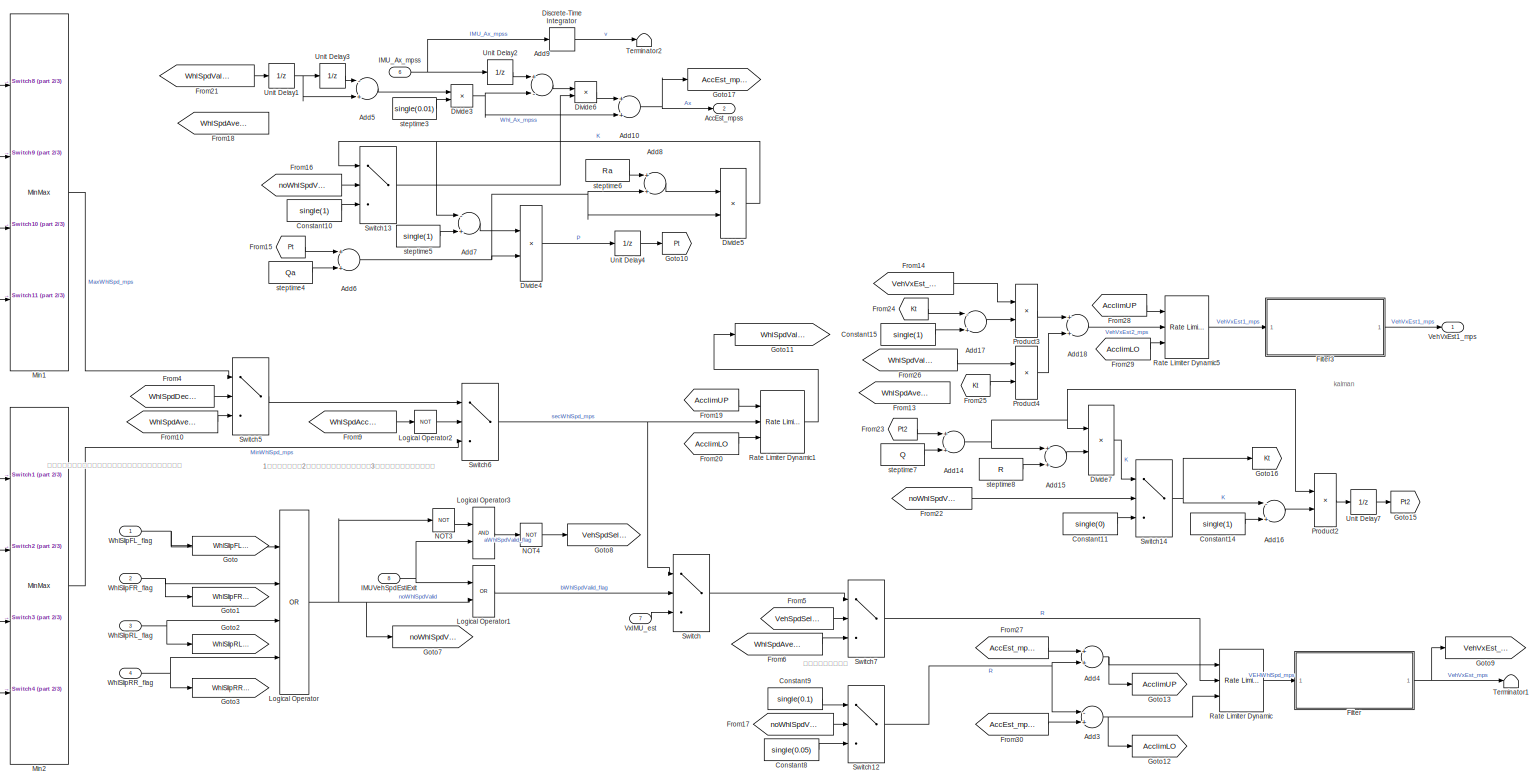
[diagram: Subsystem/车速估计 - part 1/3, most of the canvas]
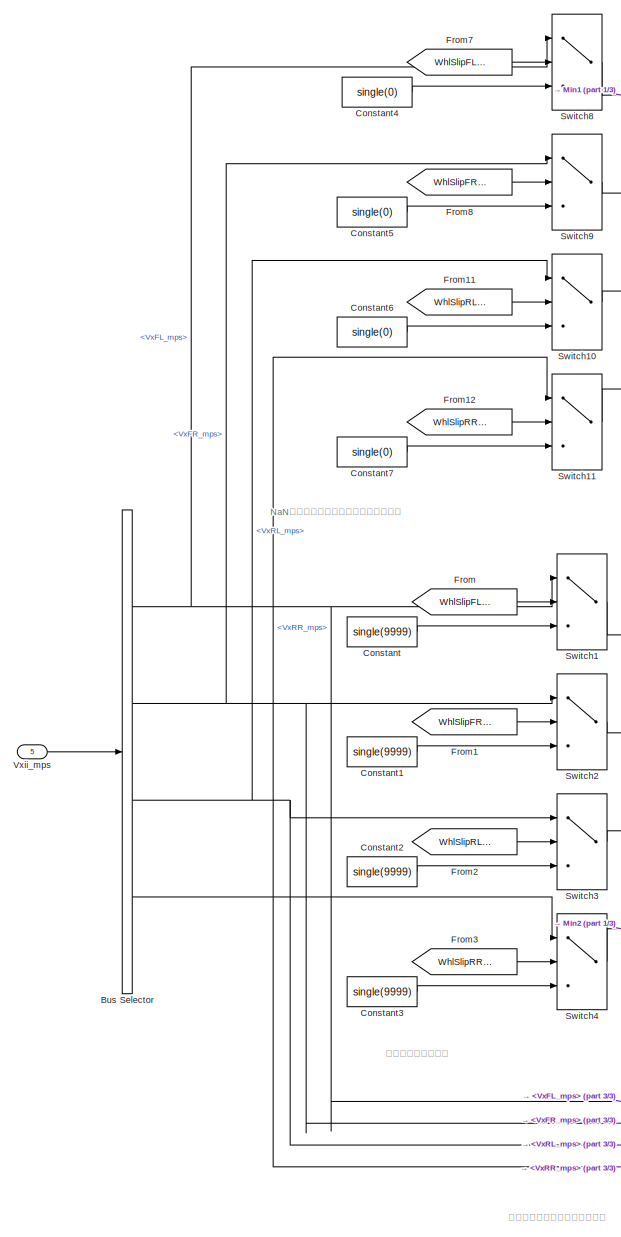
[diagram: Subsystem/车速估计 - part 2/3, left side, full height]
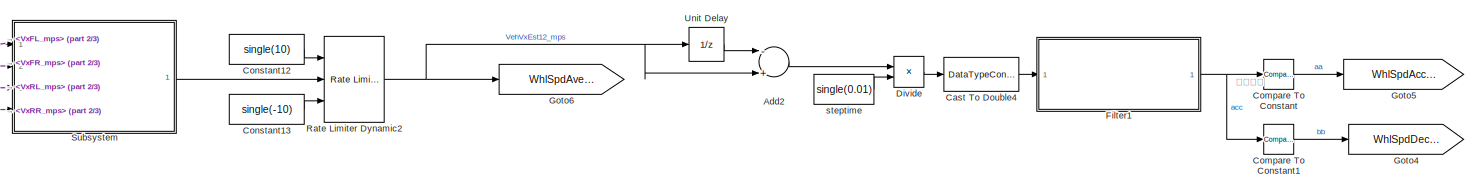
[diagram: Subsystem/车速估计 - part 3/3, bottom center region]
BLOCK [SubSystem] Subsystem/车速估计
  Ports = [8, 2]
  RequestExecContextInheritance = off
BLOCK [Outport] Subsystem/车速估计/AccEst_mpss
  IconDisplay = Port number
  Port = 2
  VectorParamsAs1DForOutWhenUnconnected = on
BLOCK [Sum] Subsystem/车速估计/Add10
  InputSameDT = off
  OutDataTypeStr = Inherit: Inherit via internal rule
  Ports = [2, 1]
  SaturateOnIntegerOverflow = off
BLOCK [Sum] Subsystem/车速估计/Add14
  InputSameDT = off
  OutDataTypeStr = Inherit: Inherit via internal rule
  Ports = [2, 1]
  SaturateOnIntegerOverflow = off
BLOCK [Sum] Subsystem/车速估计/Add15
  InputSameDT = off
  OutDataTypeStr = Inherit: Inherit via internal rule
  Ports = [2, 1]
  SaturateOnIntegerOverflow = off
BLOCK [Sum] Subsystem/车速估计/Add16
  InputSameDT = off
  Inputs = -+
  OutDataTypeStr = Inherit: Inherit via internal rule
  Ports = [2, 1]
  SaturateOnIntegerOverflow = off
BLOCK [Sum] Subsystem/车速估计/Add17
  InputSameDT = off
  Inputs = -+
  OutDataTypeStr = Inherit: Inherit via internal rule
  Ports = [2, 1]
  SaturateOnIntegerOverflow = off
BLOCK [Sum] Subsystem/车速估计/Add18
  InputSameDT = off
  OutDataTypeStr = Inherit: Inherit via internal rule
  Ports = [2, 1]
  SaturateOnIntegerOverflow = off
BLOCK [Sum] Subsystem/车速估计/Add2
  InputSameDT = off
  Inputs = -+
  OutDataTypeStr = Inherit: Inherit via internal rule
  Ports = [2, 1]
  SaturateOnIntegerOverflow = off
BLOCK [Sum] Subsystem/车速估计/Add3
  InputSameDT = off
  Inputs = -+
  OutDataTypeStr = Inherit: Inherit via internal rule
  Ports = [2, 1]
  SaturateOnIntegerOverflow = off
BLOCK [Sum] Subsystem/车速估计/Add4
  InputSameDT = off
  OutDataTypeStr = Inherit: Inherit via internal rule
  Ports = [2, 1]
  SaturateOnIntegerOverflow = off
BLOCK [Sum] Subsystem/车速估计/Add5
  InputSameDT = off
  Inputs = -+
  OutDataTypeStr = Inherit: Inherit via internal rule
  Ports = [2, 1]
  SaturateOnIntegerOverflow = off
BLOCK [Sum] Subsystem/车速估计/Add6
  InputSameDT = off
  OutDataTypeStr = Inherit: Inherit via internal rule
  Ports = [2, 1]
  SaturateOnIntegerOverflow = off
BLOCK [Sum] Subsystem/车速估计/Add7
  InputSameDT = off
  Inputs = -+
  OutDataTypeStr = Inherit: Inherit via internal rule
  Ports = [2, 1]
  SaturateOnIntegerOverflow = off
BLOCK [Sum] Subsystem/车速估计/Add8
  InputSameDT = off
  OutDataTypeStr = Inherit: Inherit via internal rule
  Ports = [2, 1]
  SaturateOnIntegerOverflow = off
BLOCK [Sum] Subsystem/车速估计/Add9
  InputSameDT = off
  Inputs = +-
  OutDataTypeStr = Inherit: Inherit via internal rule
  Ports = [2, 1]
  SaturateOnIntegerOverflow = off
BLOCK [BusSelector] Subsystem/车速估计/Bus Selector
  OutputAsBus = off
  OutputSignals = VxFL_mps,VxFR_mps,VxRL_mps,VxRR_mps
  Ports = [1, 4]
BLOCK [DataTypeConversion] Subsystem/车速估计/Cast To Double4
  OutDataTypeStr = single
  RndMeth = Floor
  SaturateOnIntegerOverflow = off
BLOCK [Reference] Subsystem/车速估计/Compare To Constant  REF=simulink/Logic and Bit
Operations/Compare
To Constant
  Ports = [1, 1]
  SourceBlock = simulink/Logic and Bit\nOperations/Compare\nTo Constant
  SourceProductBaseCode = SL
  SourceProductName = Simulink
  SourceType = Compare To Constant
BLOCK [Reference] Subsystem/车速估计/Compare To Constant1  REF=simulink/Logic and Bit
Operations/Compare
To Constant
  Ports = [1, 1]
  SourceBlock = simulink/Logic and Bit\nOperations/Compare\nTo Constant
  SourceProductBaseCode = SL
  SourceProductName = Simulink
  SourceType = Compare To Constant
BLOCK [Constant] Subsystem/车速估计/Constant
  Value = single(9999)
BLOCK [Constant] Subsystem/车速估计/Constant1
  Value = single(9999)
BLOCK [Constant] Subsystem/车速估计/Constant10
  Value = single(1)
BLOCK [Constant] Subsystem/车速估计/Constant11
  Value = single(0)
BLOCK [Constant] Subsystem/车速估计/Constant12
  Value = single(10)
BLOCK [Constant] Subsystem/车速估计/Constant13
  Value = single(-10)
BLOCK [Constant] Subsystem/车速估计/Constant14
  Value = single(1)
BLOCK [Constant] Subsystem/车速估计/Constant15
  Value = single(1)
BLOCK [Constant] Subsystem/车速估计/Constant2
  Value = single(9999)
BLOCK [Constant] Subsystem/车速估计/Constant3
  Value = single(9999)
BLOCK [Constant] Subsystem/车速估计/Constant4
  Value = single(0)
BLOCK [Constant] Subsystem/车速估计/Constant5
  Value = single(0)
BLOCK [Constant] Subsystem/车速估计/Constant6
  Value = single(0)
BLOCK [Constant] Subsystem/车速估计/Constant7
  Value = single(0)
BLOCK [Constant] Subsystem/车速估计/Constant8
  Value = single(0.05)
BLOCK [Constant] Subsystem/车速估计/Constant9
  Value = single(0.1)
BLOCK [DiscreteIntegrator] Subsystem/车速估计/Discrete-Time Integrator
  ICPrevOutput = DiscIntNeverNeededParam
  ICPrevScaledInput = DiscIntNeverNeededParam
  InitialConditionSetting = Auto
  Ports = [1, 1]
  SampleTime = -1
BLOCK [Product] Subsystem/车速估计/Divide
  InputSameDT = off
  Inputs = */
  OutDataTypeStr = Inherit: Inherit via internal rule
  Ports = [2, 1]
  RndMeth = Floor
  SaturateOnIntegerOverflow = off
BLOCK [Product] Subsystem/车速估计/Divide3
  InputSameDT = off
  Inputs = */
  OutDataTypeStr = Inherit: Inherit via internal rule
  Ports = [2, 1]
  RndMeth = Floor
  SaturateOnIntegerOverflow = off
BLOCK [Product] Subsystem/车速估计/Divide4
  InputSameDT = off
  Inputs = **
  OutDataTypeStr = Inherit: Inherit via internal rule
  Ports = [2, 1]
  RndMeth = Floor
  SaturateOnIntegerOverflow = off
BLOCK [Product] Subsystem/车速估计/Divide5
  InputSameDT = off
  Inputs = /*
  OutDataTypeStr = Inherit: Inherit via internal rule
  Ports = [2, 1]
  RndMeth = Floor
  SaturateOnIntegerOverflow = off
BLOCK [Product] Subsystem/车速估计/Divide6
  InputSameDT = off
  Inputs = **
  OutDataTypeStr = Inherit: Inherit via internal rule
  Ports = [2, 1]
  RndMeth = Floor
  SaturateOnIntegerOverflow = off
BLOCK [Product] Subsystem/车速估计/Divide7
  InputSameDT = off
  Inputs = */
  OutDataTypeStr = Inherit: Inherit via internal rule
  Ports = [2, 1]
  RndMeth = Floor
  SaturateOnIntegerOverflow = off
BLOCK [SubSystem] Subsystem/车速估计/Filter
  Ports = [1, 1]
  RequestExecContextInheritance = off
BLOCK [Sum] Subsystem/车速估计/Filter/Add
  InputSameDT = off
  OutDataTypeStr = Inherit: Inherit via internal rule
  Ports = [2, 1]
  SaturateOnIntegerOverflow = off
BLOCK [Constant] Subsystem/车速估计/Filter/Constant
  Value = single(0)
BLOCK [Constant] Subsystem/车速估计/Filter/Constant1
  Value = single(100)
BLOCK [Constant] Subsystem/车速估计/Filter/Constant2
  Value = single(15)
BLOCK [Constant] Subsystem/车速估计/Filter/Constant3
  Value = single(-15)
BLOCK [Gain] Subsystem/车速估计/Filter/Gain
  Gain = 0
  OutDataTypeStr = Inherit: Inherit via internal rule
  ParamDataTypeStr = Inherit: Inherit via internal rule
  SaturateOnIntegerOverflow = off
BLOCK [Gain] Subsystem/车速估计/Filter/Gain1
  OutDataTypeStr = Inherit: Inherit via internal rule
  ParamDataTypeStr = Inherit: Inherit via internal rule
  SaturateOnIntegerOverflow = off
BLOCK [Inport] Subsystem/车速估计/Filter/In
  IconDisplay = Port number
BLOCK [Reference] Subsystem/车速估计/Filter/Rate Limiter Dynamic  REF=simulink/Discontinuities/Rate Limiter
Dynamic
  Ports = [3, 1]
  SourceBlock = simulink/Discontinuities/Rate Limiter\nDynamic
  SourceProductBaseCode = SL
  SourceProductName = Simulink
  SourceType = Rate Limiter Dynamic
BLOCK [Reference] Subsystem/车速估计/Filter/Saturation Dynamic  REF=simulink/Discontinuities/Saturation
Dynamic
  Ports = [3, 1]
  SourceBlock = simulink/Discontinuities/Saturation\nDynamic
  SourceProductBaseCode = SL
  SourceProductName = Simulink
  SourceType = Saturation Dynamic
BLOCK [UnitDelay] Subsystem/车速估计/Filter/Unit Delay
  InputProcessing = Elements as channels (sample based)
  SampleTime = -1
BLOCK [Outport] Subsystem/车速估计/Filter/VehVxEst_mps
  IconDisplay = Port number
  VectorParamsAs1DForOutWhenUnconnected = on
BLOCK [SubSystem] Subsystem/车速估计/Filter1
  Ports = [1, 1]
  RequestExecContextInheritance = off
BLOCK [Sum] Subsystem/车速估计/Filter1/Add
  InputSameDT = off
  OutDataTypeStr = Inherit: Inherit via internal rule
  Ports = [2, 1]
  SaturateOnIntegerOverflow = off
BLOCK [Constant] Subsystem/车速估计/Filter1/Constant
  Value = single(-100)
BLOCK [Constant] Subsystem/车速估计/Filter1/Constant1
  Value = single(100)
BLOCK [Constant] Subsystem/车速估计/Filter1/Constant2
  Value = single(10)
BLOCK [Constant] Subsystem/车速估计/Filter1/Constant3
  Value = single(-10)
BLOCK [Gain] Subsystem/车速估计/Filter1/Gain
  Gain = 0.3
  OutDataTypeStr = Inherit: Inherit via internal rule
  ParamDataTypeStr = Inherit: Inherit via internal rule
  SaturateOnIntegerOverflow = off
BLOCK [Gain] Subsystem/车速估计/Filter1/Gain1
  Gain = 0.7
  OutDataTypeStr = Inherit: Inherit via internal rule
  ParamDataTypeStr = Inherit: Inherit via internal rule
  SaturateOnIntegerOverflow = off
BLOCK [Inport] Subsystem/车速估计/Filter1/In
  IconDisplay = Port number
BLOCK [Outport] Subsystem/车速估计/Filter1/Out
  IconDisplay = Port number
  VectorParamsAs1DForOutWhenUnconnected = on
BLOCK [Reference] Subsystem/车速估计/Filter1/Rate Limiter Dynamic  REF=simulink/Discontinuities/Rate Limiter
Dynamic
  Ports = [3, 1]
  SourceBlock = simulink/Discontinuities/Rate Limiter\nDynamic
  SourceProductBaseCode = SL
  SourceProductName = Simulink
  SourceType = Rate Limiter Dynamic
BLOCK [Reference] Subsystem/车速估计/Filter1/Saturation Dynamic  REF=simulink/Discontinuities/Saturation
Dynamic
  Ports = [3, 1]
  SourceBlock = simulink/Discontinuities/Saturation\nDynamic
  SourceProductBaseCode = SL
  SourceProductName = Simulink
  SourceType = Saturation Dynamic
BLOCK [UnitDelay] Subsystem/车速估计/Filter1/Unit Delay
  InputProcessing = Elements as channels (sample based)
  SampleTime = -1
BLOCK [SubSystem] Subsystem/车速估计/Filter3
  Ports = [1, 1]
  RequestExecContextInheritance = off
BLOCK [Sum] Subsystem/车速估计/Filter3/Add
  InputSameDT = off
  OutDataTypeStr = Inherit: Inherit via internal rule
  Ports = [2, 1]
  SaturateOnIntegerOverflow = off
BLOCK [Constant] Subsystem/车速估计/Filter3/Constant
  Value = single(-100)
BLOCK [Constant] Subsystem/车速估计/Filter3/Constant1
  Value = single(100)
BLOCK [Constant] Subsystem/车速估计/Filter3/Constant2
  Value = single(15)
BLOCK [Constant] Subsystem/车速估计/Filter3/Constant3
  Value = single(-15)
BLOCK [Constant] Subsystem/车速估计/Filter3/Constant4
  Value = single(0)
BLOCK [Constant] Subsystem/车速估计/Filter3/Constant5
  Value = single(100)
BLOCK [Gain] Subsystem/车速估计/Filter3/Gain
  Gain = 0.3
  OutDataTypeStr = Inherit: Inherit via internal rule
  ParamDataTypeStr = Inherit: Inherit via internal rule
  SaturateOnIntegerOverflow = off
BLOCK [Gain] Subsystem/车速估计/Filter3/Gain1
  Gain = 0.7
  OutDataTypeStr = Inherit: Inherit via internal rule
  ParamDataTypeStr = Inherit: Inherit via internal rule
  SaturateOnIntegerOverflow = off
BLOCK [Inport] Subsystem/车速估计/Filter3/In
  IconDisplay = Port number
BLOCK [Reference] Subsystem/车速估计/Filter3/Rate Limiter Dynamic  REF=simulink/Discontinuities/Rate Limiter
Dynamic
  Ports = [3, 1]
  SourceBlock = simulink/Discontinuities/Rate Limiter\nDynamic
  SourceProductBaseCode = SL
  SourceProductName = Simulink
  SourceType = Rate Limiter Dynamic
BLOCK [Reference] Subsystem/车速估计/Filter3/Saturation Dynamic  REF=simulink/Discontinuities/Saturation
Dynamic
  Ports = [3, 1]
  SourceBlock = simulink/Discontinuities/Saturation\nDynamic
  SourceProductBaseCode = SL
  SourceProductName = Simulink
  SourceType = Saturation Dynamic
BLOCK [Reference] Subsystem/车速估计/Filter3/Saturation Dynamic1  REF=simulink/Discontinuities/Saturation
Dynamic
  Ports = [3, 1]
  SourceBlock = simulink/Discontinuities/Saturation\nDynamic
  SourceProductBaseCode = SL
  SourceProductName = Simulink
  SourceType = Saturation Dynamic
BLOCK [UnitDelay] Subsystem/车速估计/Filter3/Unit Delay
  InputProcessing = Elements as channels (sample based)
  SampleTime = -1
BLOCK [Outport] Subsystem/车速估计/Filter3/VehVxEst1_mps
  IconDisplay = Port number
  VectorParamsAs1DForOutWhenUnconnected = on
BLOCK [From] Subsystem/车速估计/From
  GotoTag = WhlSlipFL_flag
BLOCK [From] Subsystem/车速估计/From1
  GotoTag = WhlSlipFR_flag
BLOCK [From] Subsystem/车速估计/From10
  GotoTag = WhlSpdAve_mps
BLOCK [From] Subsystem/车速估计/From11
  GotoTag = WhlSlipRL_flag
BLOCK [From] Subsystem/车速估计/From12
  GotoTag = WhlSlipRR_flag
BLOCK [From] Subsystem/车速估计/From13
  Commented = on
  GotoTag = WhlSpdAve_mps
BLOCK [From] Subsystem/车速估计/From14
  GotoTag = VehVxEst_mps
BLOCK [From] Subsystem/车速估计/From15
  GotoTag = Pt
BLOCK [From] Subsystem/车速估计/From16
  GotoTag = noWhlSpdValid
BLOCK [From] Subsystem/车速估计/From17
  GotoTag = noWhlSpdValid
BLOCK [From] Subsystem/车速估计/From18
  Commented = on
  GotoTag = WhlSpdAve_mps
BLOCK [From] Subsystem/车速估计/From19
  GotoTag = AcclimUP
BLOCK [From] Subsystem/车速估计/From2
  GotoTag = WhlSlipRL_flag
BLOCK [From] Subsystem/车速估计/From20
  GotoTag = AcclimLO
BLOCK [From] Subsystem/车速估计/From21
  GotoTag = WhlSpdValid_mps
BLOCK [From] Subsystem/车速估计/From22
  GotoTag = noWhlSpdValid
BLOCK [From] Subsystem/车速估计/From23
  GotoTag = Pt2
BLOCK [From] Subsystem/车速估计/From24
  GotoTag = Kt
BLOCK [From] Subsystem/车速估计/From25
  GotoTag = Kt
BLOCK [From] Subsystem/车速估计/From26
  GotoTag = WhlSpdValid_mps
BLOCK [From] Subsystem/车速估计/From27
  GotoTag = AccEst_mpss
BLOCK [From] Subsystem/车速估计/From28
  GotoTag = AcclimUP
BLOCK [From] Subsystem/车速估计/From29
  GotoTag = AcclimLO
BLOCK [From] Subsystem/车速估计/From3
  GotoTag = WhlSlipRR_flag
BLOCK [From] Subsystem/车速估计/From30
  GotoTag = AccEst_mpss
BLOCK [From] Subsystem/车速估计/From4
  GotoTag = WhlSpdDec_flag
BLOCK [From] Subsystem/车速估计/From5
  GotoTag = VehSpdSel_flag
BLOCK [From] Subsystem/车速估计/From6
  GotoTag = WhlSpdAve_mps
BLOCK [From] Subsystem/车速估计/From7
  GotoTag = WhlSlipFL_flag
BLOCK [From] Subsystem/车速估计/From8
  GotoTag = WhlSlipFR_flag
BLOCK [From] Subsystem/车速估计/From9
  GotoTag = WhlSpdAcc_flag
BLOCK [Goto] Subsystem/车速估计/Goto
  GotoTag = WhlSlipFL_flag
BLOCK [Goto] Subsystem/车速估计/Goto1
  GotoTag = WhlSlipFR_flag
BLOCK [Goto] Subsystem/车速估计/Goto10
  GotoTag = Pt
BLOCK [Goto] Subsystem/车速估计/Goto11
  GotoTag = WhlSpdValid_mps
BLOCK [Goto] Subsystem/车速估计/Goto12
  GotoTag = AcclimLO
BLOCK [Goto] Subsystem/车速估计/Goto13
  GotoTag = AcclimUP
BLOCK [Goto] Subsystem/车速估计/Goto15
  GotoTag = Pt2
BLOCK [Goto] Subsystem/车速估计/Goto16
  GotoTag = Kt
BLOCK [Goto] Subsystem/车速估计/Goto17
  GotoTag = AccEst_mpss
BLOCK [Goto] Subsystem/车速估计/Goto2
  GotoTag = WhlSlipRL_flag
BLOCK [Goto] Subsystem/车速估计/Goto3
  GotoTag = WhlSlipRR_flag
BLOCK [Goto] Subsystem/车速估计/Goto4
  GotoTag = WhlSpdDec_flag
BLOCK [Goto] Subsystem/车速估计/Goto5
  GotoTag = WhlSpdAcc_flag
BLOCK [Goto] Subsystem/车速估计/Goto6
  GotoTag = WhlSpdAve_mps
BLOCK [Goto] Subsystem/车速估计/Goto7
  GotoTag = noWhlSpdValid
BLOCK [Goto] Subsystem/车速估计/Goto8
  GotoTag = VehSpdSel_flag
BLOCK [Goto] Subsystem/车速估计/Goto9
  GotoTag = VehVxEst_mps
BLOCK [Inport] Subsystem/车速估计/IMUVehSpdEstiExit
  IconDisplay = Port number
  Port = 8
BLOCK [Inport] Subsystem/车速估计/IMU_Ax_mpss
  IconDisplay = Port number
  Port = 6
BLOCK [Logic] Subsystem/车速估计/Logical Operator
  AllPortsSameDT = off
  Inputs = 4
  Operator = OR
  OutDataTypeStr = boolean
  Ports = [4, 1]
BLOCK [Logic] Subsystem/车速估计/Logical Operator1
  AllPortsSameDT = off
  Operator = OR
  OutDataTypeStr = boolean
  Ports = [2, 1]
BLOCK [Logic] Subsystem/车速估计/Logical Operator2
  AllPortsSameDT = off
  Operator = NOT
  OutDataTypeStr = boolean
  Ports = [1, 1]
BLOCK [Logic] Subsystem/车速估计/Logical Operator3
  AllPortsSameDT = off
  OutDataTypeStr = boolean
  Ports = [2, 1]
BLOCK [MinMax] Subsystem/车速估计/Min1
  Function = max
  InputSameDT = off
  Inputs = 4
  Ports = [4, 1]
  SaturateOnIntegerOverflow = off
BLOCK [MinMax] Subsystem/车速估计/Min2
  InputSameDT = off
  Inputs = 4
  Ports = [4, 1]
  SaturateOnIntegerOverflow = off
BLOCK [Logic] Subsystem/车速估计/NOT3
  AllPortsSameDT = off
  Operator = NOT
  OutDataTypeStr = boolean
  Ports = [1, 1]
BLOCK [Logic] Subsystem/车速估计/NOT4
  AllPortsSameDT = off
  Operator = NOT
  OutDataTypeStr = boolean
  Ports = [1, 1]
BLOCK [Product] Subsystem/车速估计/Product2
  InputSameDT = off
  OutDataTypeStr = Inherit: Inherit via internal rule
  Ports = [2, 1]
  RndMeth = Floor
  SaturateOnIntegerOverflow = off
BLOCK [Product] Subsystem/车速估计/Product3
  InputSameDT = off
  OutDataTypeStr = Inherit: Inherit via internal rule
  Ports = [2, 1]
  RndMeth = Floor
  SaturateOnIntegerOverflow = off
BLOCK [Product] Subsystem/车速估计/Product4
  InputSameDT = off
  OutDataTypeStr = Inherit: Inherit via internal rule
  Ports = [2, 1]
  RndMeth = Floor
  SaturateOnIntegerOverflow = off
BLOCK [Reference] Subsystem/车速估计/Rate Limiter Dynamic  REF=simulink/Discontinuities/Rate Limiter
Dynamic
  Ports = [3, 1]
  SourceBlock = simulink/Discontinuities/Rate Limiter\nDynamic
  SourceProductBaseCode = SL
  SourceProductName = Simulink
  SourceType = Rate Limiter Dynamic
BLOCK [Reference] Subsystem/车速估计/Rate Limiter Dynamic1  REF=simulink/Discontinuities/Rate Limiter
Dynamic
  Ports = [3, 1]
  SourceBlock = simulink/Discontinuities/Rate Limiter\nDynamic
  SourceProductBaseCode = SL
  SourceProductName = Simulink
  SourceType = Rate Limiter Dynamic
BLOCK [Reference] Subsystem/车速估计/Rate Limiter Dynamic2  REF=simulink/Discontinuities/Rate Limiter
Dynamic
  Ports = [3, 1]
  SourceBlock = simulink/Discontinuities/Rate Limiter\nDynamic
  SourceProductBaseCode = SL
  SourceProductName = Simulink
  SourceType = Rate Limiter Dynamic
BLOCK [Reference] Subsystem/车速估计/Rate Limiter Dynamic5  REF=simulink/Discontinuities/Rate Limiter
Dynamic
  Ports = [3, 1]
  SourceBlock = simulink/Discontinuities/Rate Limiter\nDynamic
  SourceProductBaseCode = SL
  SourceProductName = Simulink
  SourceType = Rate Limiter Dynamic
BLOCK [SubSystem] Subsystem/车速估计/Subsystem
  Ports = [4, 1]
  RequestExecContextInheritance = off
BLOCK [Inport] Subsystem/车速估计/Subsystem/<VxFL_mps>
  IconDisplay = Port number
BLOCK [Inport] Subsystem/车速估计/Subsystem/<VxFR_mps>
  IconDisplay = Port number
  Port = 2
BLOCK [Inport] Subsystem/车速估计/Subsystem/<VxRL_mps>
  IconDisplay = Port number
  Port = 3
BLOCK [Inport] Subsystem/车速估计/Subsystem/<VxRR_mps>
  IconDisplay = Port number
  Port = 4
BLOCK [Sum] Subsystem/车速估计/Subsystem/Add3
  InputSameDT = off
  Inputs = ++++
  OutDataTypeStr = Inherit: Inherit via internal rule
  Ports = [4, 1]
  SaturateOnIntegerOverflow = off
BLOCK [Sum] Subsystem/车速估计/Subsystem/Add4
  InputSameDT = off
  Inputs = +--
  OutDataTypeStr = Inherit: Inherit via internal rule
  Ports = [3, 1]
  SaturateOnIntegerOverflow = off
BLOCK [Gain] Subsystem/车速估计/Subsystem/Gain1
  Gain = 1/2
  OutDataTypeStr = Inherit: Inherit via internal rule
  ParamDataTypeStr = Inherit: Inherit via internal rule
  SaturateOnIntegerOverflow = off
BLOCK [Outport] Subsystem/车速估计/Subsystem/MiddleWhlSpd_mps
  IconDisplay = Port number
  VectorParamsAs1DForOutWhenUnconnected = on
BLOCK [MinMax] Subsystem/车速估计/Subsystem/Min3
  Function = max
  InputSameDT = off
  Inputs = 4
  Ports = [4, 1]
  SaturateOnIntegerOverflow = off
BLOCK [MinMax] Subsystem/车速估计/Subsystem/Min4
  InputSameDT = off
  Inputs = 4
  Ports = [4, 1]
  SaturateOnIntegerOverflow = off
BLOCK [SubSystem] Subsystem/车速估计/Subsystem/Subsystem
  Commented = on
  Ports = [4, 1]
  RequestExecContextInheritance = off
BLOCK [Sum] Subsystem/车速估计/Subsystem/Subsystem/Add
  Commented = on
  InputSameDT = off
  Inputs = ++++
  OutDataTypeStr = Inherit: Inherit via internal rule
  Ports = [4, 1]
  SaturateOnIntegerOverflow = off
BLOCK [Sum] Subsystem/车速估计/Subsystem/Subsystem/Add1
  Commented = on
  InputSameDT = off
  Inputs = +--
  OutDataTypeStr = Inherit: Inherit via internal rule
  Ports = [3, 1]
  SaturateOnIntegerOverflow = off
BLOCK [Sum] Subsystem/车速估计/Subsystem/Subsystem/Add2
  Commented = on
  InputSameDT = off
  Inputs = -+
  OutDataTypeStr = Inherit: Inherit via internal rule
  Ports = [2, 1]
  SaturateOnIntegerOverflow = off
BLOCK [Reference] Subsystem/车速估计/Subsystem/Subsystem/Compare To Constant1  REF=simulink/Logic and Bit
Operations/Compare
To Constant
  Commented = on
  Ports = [1, 1]
  SourceBlock = simulink/Logic and Bit\nOperations/Compare\nTo Constant
  SourceProductBaseCode = SL
  SourceProductName = Simulink
  SourceType = Compare To Constant
BLOCK [Reference] Subsystem/车速估计/Subsystem/Subsystem/Compare To Constant2  REF=simulink/Logic and Bit
Operations/Compare
To Constant
  Commented = on
  Ports = [1, 1]
  SourceBlock = simulink/Logic and Bit\nOperations/Compare\nTo Constant
  SourceProductBaseCode = SL
  SourceProductName = Simulink
  SourceType = Compare To Constant
BLOCK [Product] Subsystem/车速估计/Subsystem/Subsystem/Divide1
  Commented = on
  InputSameDT = off
  Inputs = */
  OutDataTypeStr = Inherit: Inherit via internal rule
  Ports = [2, 1]
  RndMeth = Floor
  SaturateOnIntegerOverflow = off
BLOCK [Gain] Subsystem/车速估计/Subsystem/Subsystem/Gain
  Commented = on
  Gain = 1/2
  OutDataTypeStr = Inherit: Inherit via internal rule
  ParamDataTypeStr = Inherit: Inherit via internal rule
  SaturateOnIntegerOverflow = off
BLOCK [Inport] Subsystem/车速估计/Subsystem/Subsystem/In1
  IconDisplay = Port number
BLOCK [Inport] Subsystem/车速估计/Subsystem/Subsystem/In2
  IconDisplay = Port number
  Port = 2
BLOCK [Inport] Subsystem/车速估计/Subsystem/Subsystem/In3
  IconDisplay = Port number
  Port = 3
BLOCK [Inport] Subsystem/车速估计/Subsystem/Subsystem/In4
  IconDisplay = Port number
  Port = 4
BLOCK [MinMax] Subsystem/车速估计/Subsystem/Subsystem/Max
  Commented = on
  Function = max
  InputSameDT = off
  Inputs = 3
  Ports = [3, 1]
  SaturateOnIntegerOverflow = off
BLOCK [MinMax] Subsystem/车速估计/Subsystem/Subsystem/Max1
  Commented = on
  Function = max
  InputSameDT = off
  Inputs = 3
  Ports = [3, 1]
  SaturateOnIntegerOverflow = off
BLOCK [MinMax] Subsystem/车速估计/Subsystem/Subsystem/Max2
  Commented = on
  InputSameDT = off
  Inputs = 2
  Ports = [2, 1]
  SaturateOnIntegerOverflow = off
BLOCK [MinMax] Subsystem/车速估计/Subsystem/Subsystem/Max3
  Commented = on
  InputSameDT = off
  Inputs = 3
  Ports = [3, 1]
  SaturateOnIntegerOverflow = off
BLOCK [MinMax] Subsystem/车速估计/Subsystem/Subsystem/Max4
  Commented = on
  InputSameDT = off
  Inputs = 3
  Ports = [3, 1]
  SaturateOnIntegerOverflow = off
BLOCK [MinMax] Subsystem/车速估计/Subsystem/Subsystem/Max5
  Commented = on
  Function = max
  InputSameDT = off
  Inputs = 2
  Ports = [2, 1]
  SaturateOnIntegerOverflow = off
BLOCK [MinMax] Subsystem/车速估计/Subsystem/Subsystem/Min1
  Commented = on
  Function = max
  InputSameDT = off
  Inputs = 4
  Ports = [4, 1]
  SaturateOnIntegerOverflow = off
BLOCK [MinMax] Subsystem/车速估计/Subsystem/Subsystem/Min2
  Commented = on
  InputSameDT = off
  Inputs = 4
  Ports = [4, 1]
  SaturateOnIntegerOverflow = off
BLOCK [Logic] Subsystem/车速估计/Subsystem/Subsystem/NOT
  AllPortsSameDT = off
  Commented = on
  Operator = NOT
  OutDataTypeStr = boolean
  Ports = [1, 1]
BLOCK [Outport] Subsystem/车速估计/Subsystem/Subsystem/Out1
  IconDisplay = Port number
  VectorParamsAs1DForOutWhenUnconnected = on
BLOCK [Switch] Subsystem/车速估计/Subsystem/Subsystem/Switch
  Commented = on
  Criteria = u2 ~= 0
  InputSameDT = off
  SaturateOnIntegerOverflow = off
BLOCK [Switch] Subsystem/车速估计/Subsystem/Subsystem/Switch1
  Commented = on
  Criteria = u2 ~= 0
  InputSameDT = off
  SaturateOnIntegerOverflow = off
BLOCK [UnitDelay] Subsystem/车速估计/Subsystem/Subsystem/Unit Delay1
  Commented = on
  InputProcessing = Elements as channels (sample based)
  SampleTime = -1
BLOCK [Constant] Subsystem/车速估计/Subsystem/Subsystem/steptime1
  Commented = on
  Value = single(0.01)
BLOCK [Switch] Subsystem/车速估计/Switch
  Criteria = u2 ~= 0
  InputSameDT = off
  SaturateOnIntegerOverflow = off
BLOCK [Switch] Subsystem/车速估计/Switch1
  Criteria = u2 ~= 0
  InputSameDT = off
  SaturateOnIntegerOverflow = off
BLOCK [Switch] Subsystem/车速估计/Switch10
  Criteria = u2 ~= 0
  InputSameDT = off
  SaturateOnIntegerOverflow = off
BLOCK [Switch] Subsystem/车速估计/Switch11
  Criteria = u2 ~= 0
  InputSameDT = off
  SaturateOnIntegerOverflow = off
BLOCK [Switch] Subsystem/车速估计/Switch12
  Criteria = u2 ~= 0
  InputSameDT = off
  SaturateOnIntegerOverflow = off
BLOCK [Switch] Subsystem/车速估计/Switch13
  Criteria = u2 ~= 0
  InputSameDT = off
  SaturateOnIntegerOverflow = off
BLOCK [Switch] Subsystem/车速估计/Switch14
  Criteria = u2 ~= 0
  InputSameDT = off
  SaturateOnIntegerOverflow = off
BLOCK [Switch] Subsystem/车速估计/Switch2
  Criteria = u2 ~= 0
  InputSameDT = off
  SaturateOnIntegerOverflow = off
BLOCK [Switch] Subsystem/车速估计/Switch3
  Criteria = u2 ~= 0
  InputSameDT = off
  SaturateOnIntegerOverflow = off
BLOCK [Switch] Subsystem/车速估计/Switch4
  Criteria = u2 ~= 0
  InputSameDT = off
  SaturateOnIntegerOverflow = off
BLOCK [Switch] Subsystem/车速估计/Switch5
  Criteria = u2 ~= 0
  InputSameDT = off
  SaturateOnIntegerOverflow = off
BLOCK [Switch] Subsystem/车速估计/Switch6
  Criteria = u2 ~= 0
  InputSameDT = off
  SaturateOnIntegerOverflow = off
BLOCK [Switch] Subsystem/车速估计/Switch7
  Criteria = u2 ~= 0
  InputSameDT = off
  SaturateOnIntegerOverflow = off
BLOCK [Switch] Subsystem/车速估计/Switch8
  Criteria = u2 ~= 0
  InputSameDT = off
  SaturateOnIntegerOverflow = off
BLOCK [Switch] Subsystem/车速估计/Switch9
  Criteria = u2 ~= 0
  InputSameDT = off
  SaturateOnIntegerOverflow = off
BLOCK [Terminator] Subsystem/车速估计/Terminator1
BLOCK [Terminator] Subsystem/车速估计/Terminator2
BLOCK [UnitDelay] Subsystem/车速估计/Unit Delay
  InputProcessing = Elements as channels (sample based)
  SampleTime = -1
BLOCK [UnitDelay] Subsystem/车速估计/Unit Delay1
  InputProcessing = Elements as channels (sample based)
  SampleTime = -1
BLOCK [UnitDelay] Subsystem/车速估计/Unit Delay2
  InputProcessing = Elements as channels (sample based)
  SampleTime = -1
BLOCK [UnitDelay] Subsystem/车速估计/Unit Delay3
  InputProcessing = Elements as channels (sample based)
  SampleTime = -1
BLOCK [UnitDelay] Subsystem/车速估计/Unit Delay4
  InitialCondition = 0.01
  InputProcessing = Elements as channels (sample based)
  SampleTime = -1
BLOCK [UnitDelay] Subsystem/车速估计/Unit Delay7
  InputProcessing = Elements as channels (sample based)
  SampleTime = -1
BLOCK [Outport] Subsystem/车速估计/VehVxEst1_mps
  IconDisplay = Port number
  VectorParamsAs1DForOutWhenUnconnected = on
BLOCK [Inport] Subsystem/车速估计/VxIMU_est
  IconDisplay = Port number
  Port = 7
BLOCK [Inport] Subsystem/车速估计/Vxii_mps
  IconDisplay = Port number
  Port = 5
BLOCK [Inport] Subsystem/车速估计/WhlSlipFL_flag
  IconDisplay = Port number
BLOCK [Inport] Subsystem/车速估计/WhlSlipFR_flag
  IconDisplay = Port number
  Port = 2
BLOCK [Inport] Subsystem/车速估计/WhlSlipRL_flag
  IconDisplay = Port number
  Port = 3
BLOCK [Inport] Subsystem/车速估计/WhlSlipRR_flag
  IconDisplay = Port number
  Port = 4
BLOCK [Constant] Subsystem/车速估计/steptime
  Value = single(0.01)
BLOCK [Constant] Subsystem/车速估计/steptime3
  Value = single(0.01)
BLOCK [Constant] Subsystem/车速估计/steptime4
  Value = Qa
BLOCK [Constant] Subsystem/车速估计/steptime5
  Value = single(1)
BLOCK [Constant] Subsystem/车速估计/steptime6
  Value = Ra
BLOCK [Constant] Subsystem/车速估计/steptime7
  Value = Q
BLOCK [Constant] Subsystem/车速估计/steptime8
  Value = R
BLOCK [Terminator] Terminator
ANNOTATION Subsystem: 信号的滤波去噪应该在其他模块完成
ANNOTATION Subsystem: 和实车相反
ANNOTATION Subsystem/坐标系转换: cos模块的单位是弧度制、
ANNOTATION Subsystem/坐标系转换: 未考虑漂移工况
ANNOTATION Subsystem/坐标系转换: 顺时针为正，逆时针为负。
ANNOTATION Subsystem/打滑判断: 实践中很难同时满足这三个条件。 一般只满足后两个其中一个即可。
ANNOTATION Subsystem/打滑判断: 更改记录：1、理了信号线，更整齐。 2、加速度差，加速度差的微分的判断加入滤波模块。 3、轮速选取改为选取最大轮速。
ANNOTATION Subsystem/打滑判断: 选取一个最大轮速
ANNOTATION Subsystem/打滑判断/加速度差判断: 输出“1”代表判定有效
ANNOTATION Subsystem/打滑判断/加速度差的微分的判断: 此处应当是比较重的滤波
ANNOTATION Subsystem/打滑判断/加速度差的微分的判断: 输出“1”代表判定有效
ANNOTATION Subsystem/打滑判断/速差判断: 输出“1”代表判定有效
ANNOTATION Subsystem/积分判断: 对加速度进行积分
ANNOTATION Subsystem/积分判断: 积分开始时，需要给初始值
ANNOTATION Subsystem/积分判断: 计时器，当积分速度大于轮速一个时间后，退出积分速度。
ANNOTATION Subsystem/车速估计: 1、有可信轮速。2、无可信轮速，积分未退出。3、无可信轮速，积分退出。
ANNOTATION Subsystem/车速估计: NaN用法存疑，对自动代码生成影响未知
ANNOTATION Subsystem/车速估计: kalman
ANNOTATION Subsystem/车速估计: 判断阈值
ANNOTATION Subsystem/车速估计: 对可信车速求最小值
ANNOTATION Subsystem/车速估计: 用于计算车辆加减速状态的车速
ANNOTATION Subsystem/车速估计: 若轮速加速，则选取小轮速；若轮速减速，则选取最大轮速。
ANNOTATION Subsystem/车速估计: 选取什么轮速合适？
ANNOTATION Subsystem/车速估计/Subsystem/Subsystem: 可在去掉最大最小值里再取最大、最小
LINE Add1:1 -> Terminator:1
LINE CarSim S-Function:1 -> Subsystem:1
LINE Function-Call Generator:1 -> Subsystem:trigger
LINE Subsystem/Add:1 -> Subsystem/Divide:1
LINE Subsystem/Cast To Double1:1 -> Subsystem/坐标系转换:1
LINE Subsystem/Cast To Double2:1 -> Subsystem/坐标系转换:2
LINE Subsystem/Cast To Double3:1 -> Subsystem/坐标系转换:3
LINE Subsystem/Cast To Double4:1 -> Subsystem/坐标系转换:4
LINE Subsystem/Cast To Double5:1 -> Subsystem/坐标系转换:5
LINE Subsystem/Cast To Double6:1 -> Subsystem/坐标系转换:6
LINE Subsystem/Cast To Double7:1 -> Subsystem/坐标系转换:7
NET Subsystem/Cast To Double:1 -> Subsystem/Goto1:1, Subsystem/打滑判断:3
LINE Subsystem/Constant:1 -> Subsystem/Divide:2
LINE Subsystem/Demux:1 -> Subsystem/Gain:1
LINE Subsystem/Demux:10 -> Subsystem/Gain6:1
LINE Subsystem/Demux:11 -> Subsystem/积分判断:7
LINE Subsystem/Demux:2 -> Subsystem/Gain1:1
LINE Subsystem/Demux:3 -> Subsystem/Gain3:1
LINE Subsystem/Demux:4 -> Subsystem/Gain2:1
LINE Subsystem/Demux:5 -> Subsystem/Gain4:1
LINE Subsystem/Demux:6 -> Subsystem/Gain8:1
LINE Subsystem/Demux:7 -> Subsystem/Gain9:1
LINE Subsystem/Demux:8 -> Subsystem/Terminator1:1
LINE Subsystem/Demux:9 -> Subsystem/Gain7:1
LINE Subsystem/Divide:1 -> Subsystem/Saturation:1
LINE Subsystem/From1:1 -> Subsystem/车速估计:5
LINE Subsystem/From2:1 -> Subsystem/Unit Delay1:1
LINE Subsystem/From3:1 -> Subsystem/Unit Delay:1
LINE Subsystem/From4:1 -> Subsystem/积分判断:8
LINE Subsystem/From5:1 -> Subsystem/车速估计:6
LINE Subsystem/From6:1 -> Subsystem/积分判断:5
LINE Subsystem/Gain1:1 -> Subsystem/Cast To Double1:1
LINE Subsystem/Gain2:1 -> Subsystem/Cast To Double2:1
LINE Subsystem/Gain3:1 -> Subsystem/Cast To Double3:1
LINE Subsystem/Gain4:1 -> Subsystem/Cast To Double4:1
LINE Subsystem/Gain5:1 -> Subsystem/Cast To Double:1
LINE Subsystem/Gain6:1 -> Subsystem/Terminator:1
LINE Subsystem/Gain7:1 -> Subsystem/Cast To Double5:1
LINE Subsystem/Gain8:1 -> Subsystem/Cast To Double6:1
LINE Subsystem/Gain9:1 -> Subsystem/Cast To Double7:1
NET Subsystem/Gain:1 -> Subsystem/ActuVehSpdVx_mps:1, Subsystem/Add:2, Subsystem/Unit Delay2:1
LINE Subsystem/OutPutBus:1 -> Subsystem/Demux:1
LINE Subsystem/Saturation:1 -> Subsystem/Gain5:1
LINE Subsystem/Unit Delay1:1 -> Subsystem/积分判断:6
LINE Subsystem/Unit Delay2:1 -> Subsystem/Add:1
LINE Subsystem/Unit Delay:1 -> Subsystem/打滑判断:4
LINE Subsystem/坐标系转换/Add1:1 -> Subsystem/坐标系转换/Bus Creator:4
LINE Subsystem/坐标系转换/Add2:1 -> Subsystem/坐标系转换/Bus Creator:1
LINE Subsystem/坐标系转换/Add3:1 -> Subsystem/坐标系转换/Bus Creator:2
LINE Subsystem/坐标系转换/Add:1 -> Subsystem/坐标系转换/Bus Creator:3
LINE Subsystem/坐标系转换/Asin1:1 -> Subsystem/坐标系转换/Product2:1
LINE Subsystem/坐标系转换/Asin:1 -> Subsystem/坐标系转换/Product1:2
LINE Subsystem/坐标系转换/Bus Creator:1 -> Subsystem/坐标系转换/Vxii_mps:1
LINE Subsystem/坐标系转换/Constant1:1 -> Subsystem/坐标系转换/Gain1:1
LINE Subsystem/坐标系转换/Constant:1 -> Subsystem/坐标系转换/Gain:1
NET Subsystem/坐标系转换/From2:1 -> Subsystem/坐标系转换/Add2:2, Subsystem/坐标系转换/Add3:1
NET Subsystem/坐标系转换/From:1 -> Subsystem/坐标系转换/Add1:1, Subsystem/坐标系转换/Add:2
LINE Subsystem/坐标系转换/Gain1:1 -> Subsystem/坐标系转换/Product3:1
LINE Subsystem/坐标系转换/Gain2:1 -> Subsystem/坐标系转换/Asin:1
LINE Subsystem/坐标系转换/Gain3:1 -> Subsystem/坐标系转换/Asin1:1
NET Subsystem/坐标系转换/Gain4:1 -> Subsystem/坐标系转换/IMU_YawRate_dps1:1, Subsystem/坐标系转换/Product3:2, Subsystem/坐标系转换/Product:1
LINE Subsystem/坐标系转换/Gain:1 -> Subsystem/坐标系转换/Product:2
LINE Subsystem/坐标系转换/IMU_YawRate_dps:1 -> Subsystem/坐标系转换/Gain4:1
LINE Subsystem/坐标系转换/Product1:1 -> Subsystem/坐标系转换/Add2:1
LINE Subsystem/坐标系转换/Product2:1 -> Subsystem/坐标系转换/Add3:2
LINE Subsystem/坐标系转换/Product3:1 -> Subsystem/坐标系转换/Goto1:1
LINE Subsystem/坐标系转换/Product:1 -> Subsystem/坐标系转换/Goto:1
LINE Subsystem/坐标系转换/WhlSpdFL_mps:1 -> Subsystem/坐标系转换/Product1:1
LINE Subsystem/坐标系转换/WhlSpdFR_mps:1 -> Subsystem/坐标系转换/Product2:2
LINE Subsystem/坐标系转换/WhlSpdRL_mps:1 -> Subsystem/坐标系转换/Add:1
LINE Subsystem/坐标系转换/WhlSpdRR_mps:1 -> Subsystem/坐标系转换/Add1:2
LINE Subsystem/坐标系转换/WhlStrAngL_deg:1 -> Subsystem/坐标系转换/Gain2:1
LINE Subsystem/坐标系转换/WhlStrAngR_deg:1 -> Subsystem/坐标系转换/Gain3:1
NET Subsystem/坐标系转换:1 -> Subsystem/Goto2:1, Subsystem/打滑判断:1
LINE Subsystem/坐标系转换:2 -> Subsystem/打滑判断:2
NET Subsystem/打滑判断/Bus Selector:1 -> Subsystem/打滑判断/Min1:1, Subsystem/打滑判断/加速度差判断:1, Subsystem/打滑判断/加速度差的微分的判断:1, Subsystem/打滑判断/速差判断:1
NET Subsystem/打滑判断/Bus Selector:2 -> Subsystem/打滑判断/Min1:2, Subsystem/打滑判断/加速度差判断:2, Subsystem/打滑判断/加速度差的微分的判断:2, Subsystem/打滑判断/速差判断:2
NET Subsystem/打滑判断/Bus Selector:3 -> Subsystem/打滑判断/Min1:3, Subsystem/打滑判断/加速度差判断:3, Subsystem/打滑判断/加速度差的微分的判断:3, Subsystem/打滑判断/速差判断:3
NET Subsystem/打滑判断/Bus Selector:4 -> Subsystem/打滑判断/Min1:4, Subsystem/打滑判断/加速度差判断:4, Subsystem/打滑判断/加速度差的微分的判断:4, Subsystem/打滑判断/速差判断:4
LINE Subsystem/打滑判断/Cast To Double1:1 -> Subsystem/打滑判断/WhlSlipFRValid_flag:1
LINE Subsystem/打滑判断/Cast To Double2:1 -> Subsystem/打滑判断/WhlSlipRLValid_flag:1
LINE Subsystem/打滑判断/Cast To Double3:1 -> Subsystem/打滑判断/WhlSlipRRValid_flag:1
LINE Subsystem/打滑判断/Cast To Double:1 -> Subsystem/打滑判断/WhlSlipFLValid_flag:1
LINE Subsystem/打滑判断/From1:1 -> Subsystem/打滑判断/速差判断:5
LINE Subsystem/打滑判断/From2:1 -> Subsystem/打滑判断/加速度差的微分的判断:5
LINE Subsystem/打滑判断/From3:1 -> Subsystem/打滑判断/Terminator:1
LINE Subsystem/打滑判断/From:1 -> Subsystem/打滑判断/加速度差判断:5
LINE Subsystem/打滑判断/IMU_Aa_mpss:1 -> Subsystem/打滑判断/Goto1:1
LINE Subsystem/打滑判断/IMU_YawRate_dps:1 -> Subsystem/打滑判断/Goto:1
NET Subsystem/打滑判断/Logical Operator1:1 -> Subsystem/打滑判断/Selector1:1, Subsystem/打滑判断/Selector2:1, Subsystem/打滑判断/Selector3:1, Subsystem/打滑判断/Selector:1
LINE Subsystem/打滑判断/Logical Operator:1 -> Subsystem/打滑判断/Logical Operator1:2
LINE Subsystem/打滑判断/Min1:1 -> Subsystem/打滑判断/WhlSpdMax_mps:1
LINE Subsystem/打滑判断/Mux1:1 -> Subsystem/打滑判断/Logical Operator:1
LINE Subsystem/打滑判断/Mux2:1 -> Subsystem/打滑判断/Logical Operator:2
LINE Subsystem/打滑判断/Mux:1 -> Subsystem/打滑判断/Logical Operator1:1
LINE Subsystem/打滑判断/Selector1:1 -> Subsystem/打滑判断/Cast To Double1:1
LINE Subsystem/打滑判断/Selector2:1 -> Subsystem/打滑判断/Cast To Double2:1
LINE Subsystem/打滑判断/Selector3:1 -> Subsystem/打滑判断/Cast To Double3:1
LINE Subsystem/打滑判断/Selector:1 -> Subsystem/打滑判断/Cast To Double:1
LINE Subsystem/打滑判断/VehSpdEstiZ1_mps:1 -> Subsystem/打滑判断/Goto2:1
LINE Subsystem/打滑判断/Vxii_mps:1 -> Subsystem/打滑判断/Bus Selector:1
NET Subsystem/打滑判断/加速度差判断/<VxFL_mps>:1 -> Subsystem/打滑判断/加速度差判断/Add4:2, Subsystem/打滑判断/加速度差判断/Unit Delay:1
NET Subsystem/打滑判断/加速度差判断/<VxFR_mps>:1 -> Subsystem/打滑判断/加速度差判断/Add5:2, Subsystem/打滑判断/加速度差判断/Unit Delay1:1
NET Subsystem/打滑判断/加速度差判断/<VxRL_mps>:1 -> Subsystem/打滑判断/加速度差判断/Add6:2, Subsystem/打滑判断/加速度差判断/Unit Delay2:1
NET Subsystem/打滑判断/加速度差判断/<VxRR_mps>:1 -> Subsystem/打滑判断/加速度差判断/Add7:2, Subsystem/打滑判断/加速度差判断/Unit Delay3:1
LINE Subsystem/打滑判断/加速度差判断/Abs1:1 -> Subsystem/打滑判断/加速度差判断/Compare To Constant1:1
LINE Subsystem/打滑判断/加速度差判断/Abs2:1 -> Subsystem/打滑判断/加速度差判断/Compare To Constant2:1
LINE Subsystem/打滑判断/加速度差判断/Abs3:1 -> Subsystem/打滑判断/加速度差判断/Compare To Constant3:1
LINE Subsystem/打滑判断/加速度差判断/Abs:1 -> Subsystem/打滑判断/加速度差判断/Compare To Constant:1
LINE Subsystem/打滑判断/加速度差判断/Add1:1 -> Subsystem/打滑判断/加速度差判断/Abs1:1
LINE Subsystem/打滑判断/加速度差判断/Add2:1 -> Subsystem/打滑判断/加速度差判断/Abs2:1
LINE Subsystem/打滑判断/加速度差判断/Add3:1 -> Subsystem/打滑判断/加速度差判断/Abs3:1
LINE Subsystem/打滑判断/加速度差判断/Add4:1 -> Subsystem/打滑判断/加速度差判断/Divide:1
LINE Subsystem/打滑判断/加速度差判断/Add5:1 -> Subsystem/打滑判断/加速度差判断/Divide1:1
LINE Subsystem/打滑判断/加速度差判断/Add6:1 -> Subsystem/打滑判断/加速度差判断/Divide2:1
LINE Subsystem/打滑判断/加速度差判断/Add7:1 -> Subsystem/打滑判断/加速度差判断/Divide3:1
LINE Subsystem/打滑判断/加速度差判断/Add:1 -> Subsystem/打滑判断/加速度差判断/Abs:1
LINE Subsystem/打滑判断/加速度差判断/Compare To Constant1:1 -> Subsystem/打滑判断/加速度差判断/y1:1
LINE Subsystem/打滑判断/加速度差判断/Compare To Constant2:1 -> Subsystem/打滑判断/加速度差判断/y2:1
LINE Subsystem/打滑判断/加速度差判断/Compare To Constant3:1 -> Subsystem/打滑判断/加速度差判断/y3:1
LINE Subsystem/打滑判断/加速度差判断/Compare To Constant:1 -> Subsystem/打滑判断/加速度差判断/y:1
LINE Subsystem/打滑判断/加速度差判断/Divide1:1 -> Subsystem/打滑判断/加速度差判断/Filter1:1
LINE Subsystem/打滑判断/加速度差判断/Divide2:1 -> Subsystem/打滑判断/加速度差判断/Filter2:1
LINE Subsystem/打滑判断/加速度差判断/Divide3:1 -> Subsystem/打滑判断/加速度差判断/Filter3:1
LINE Subsystem/打滑判断/加速度差判断/Divide:1 -> Subsystem/打滑判断/加速度差判断/Filter:1
LINE Subsystem/打滑判断/加速度差判断/Filter/Add:1 -> Subsystem/打滑判断/加速度差判断/Filter/Out:1
LINE Subsystem/打滑判断/加速度差判断/Filter/Constant1:1 -> Subsystem/打滑判断/加速度差判断/Filter/Saturation Dynamic:1
LINE Subsystem/打滑判断/加速度差判断/Filter/Constant2:1 -> Subsystem/打滑判断/加速度差判断/Filter/Rate Limiter Dynamic:1
LINE Subsystem/打滑判断/加速度差判断/Filter/Constant3:1 -> Subsystem/打滑判断/加速度差判断/Filter/Rate Limiter Dynamic:3
LINE Subsystem/打滑判断/加速度差判断/Filter/Constant:1 -> Subsystem/打滑判断/加速度差判断/Filter/Saturation Dynamic:3
LINE Subsystem/打滑判断/加速度差判断/Filter/Gain1:1 -> Subsystem/打滑判断/加速度差判断/Filter/Add:2
LINE Subsystem/打滑判断/加速度差判断/Filter/Gain:1 -> Subsystem/打滑判断/加速度差判断/Filter/Add:1
LINE Subsystem/打滑判断/加速度差判断/Filter/In:1 -> Subsystem/打滑判断/加速度差判断/Filter/Saturation Dynamic:2
NET Subsystem/打滑判断/加速度差判断/Filter/Rate Limiter Dynamic:1 -> Subsystem/打滑判断/加速度差判断/Filter/Gain1:1, Subsystem/打滑判断/加速度差判断/Filter/Unit Delay:1
LINE Subsystem/打滑判断/加速度差判断/Filter/Saturation Dynamic:1 -> Subsystem/打滑判断/加速度差判断/Filter/Rate Limiter Dynamic:2
LINE Subsystem/打滑判断/加速度差判断/Filter/Unit Delay:1 -> Subsystem/打滑判断/加速度差判断/Filter/Gain:1
LINE Subsystem/打滑判断/加速度差判断/Filter1/Add:1 -> Subsystem/打滑判断/加速度差判断/Filter1/Out:1
LINE Subsystem/打滑判断/加速度差判断/Filter1/Constant1:1 -> Subsystem/打滑判断/加速度差判断/Filter1/Saturation Dynamic:1
LINE Subsystem/打滑判断/加速度差判断/Filter1/Constant2:1 -> Subsystem/打滑判断/加速度差判断/Filter1/Rate Limiter Dynamic:1
LINE Subsystem/打滑判断/加速度差判断/Filter1/Constant3:1 -> Subsystem/打滑判断/加速度差判断/Filter1/Rate Limiter Dynamic:3
LINE Subsystem/打滑判断/加速度差判断/Filter1/Constant:1 -> Subsystem/打滑判断/加速度差判断/Filter1/Saturation Dynamic:3
LINE Subsystem/打滑判断/加速度差判断/Filter1/Gain1:1 -> Subsystem/打滑判断/加速度差判断/Filter1/Add:2
LINE Subsystem/打滑判断/加速度差判断/Filter1/Gain:1 -> Subsystem/打滑判断/加速度差判断/Filter1/Add:1
LINE Subsystem/打滑判断/加速度差判断/Filter1/In:1 -> Subsystem/打滑判断/加速度差判断/Filter1/Saturation Dynamic:2
NET Subsystem/打滑判断/加速度差判断/Filter1/Rate Limiter Dynamic:1 -> Subsystem/打滑判断/加速度差判断/Filter1/Gain1:1, Subsystem/打滑判断/加速度差判断/Filter1/Unit Delay:1
LINE Subsystem/打滑判断/加速度差判断/Filter1/Saturation Dynamic:1 -> Subsystem/打滑判断/加速度差判断/Filter1/Rate Limiter Dynamic:2
LINE Subsystem/打滑判断/加速度差判断/Filter1/Unit Delay:1 -> Subsystem/打滑判断/加速度差判断/Filter1/Gain:1
LINE Subsystem/打滑判断/加速度差判断/Filter1:1 -> Subsystem/打滑判断/加速度差判断/Add1:1
LINE Subsystem/打滑判断/加速度差判断/Filter2/Add:1 -> Subsystem/打滑判断/加速度差判断/Filter2/Out:1
LINE Subsystem/打滑判断/加速度差判断/Filter2/Constant1:1 -> Subsystem/打滑判断/加速度差判断/Filter2/Saturation Dynamic:1
LINE Subsystem/打滑判断/加速度差判断/Filter2/Constant2:1 -> Subsystem/打滑判断/加速度差判断/Filter2/Rate Limiter Dynamic:1
LINE Subsystem/打滑判断/加速度差判断/Filter2/Constant3:1 -> Subsystem/打滑判断/加速度差判断/Filter2/Rate Limiter Dynamic:3
LINE Subsystem/打滑判断/加速度差判断/Filter2/Constant:1 -> Subsystem/打滑判断/加速度差判断/Filter2/Saturation Dynamic:3
LINE Subsystem/打滑判断/加速度差判断/Filter2/Gain1:1 -> Subsystem/打滑判断/加速度差判断/Filter2/Add:2
LINE Subsystem/打滑判断/加速度差判断/Filter2/Gain:1 -> Subsystem/打滑判断/加速度差判断/Filter2/Add:1
LINE Subsystem/打滑判断/加速度差判断/Filter2/In:1 -> Subsystem/打滑判断/加速度差判断/Filter2/Saturation Dynamic:2
NET Subsystem/打滑判断/加速度差判断/Filter2/Rate Limiter Dynamic:1 -> Subsystem/打滑判断/加速度差判断/Filter2/Gain1:1, Subsystem/打滑判断/加速度差判断/Filter2/Unit Delay:1
LINE Subsystem/打滑判断/加速度差判断/Filter2/Saturation Dynamic:1 -> Subsystem/打滑判断/加速度差判断/Filter2/Rate Limiter Dynamic:2
LINE Subsystem/打滑判断/加速度差判断/Filter2/Unit Delay:1 -> Subsystem/打滑判断/加速度差判断/Filter2/Gain:1
LINE Subsystem/打滑判断/加速度差判断/Filter2:1 -> Subsystem/打滑判断/加速度差判断/Add2:1
LINE Subsystem/打滑判断/加速度差判断/Filter3/Add:1 -> Subsystem/打滑判断/加速度差判断/Filter3/Out:1
LINE Subsystem/打滑判断/加速度差判断/Filter3/Constant1:1 -> Subsystem/打滑判断/加速度差判断/Filter3/Saturation Dynamic:1
LINE Subsystem/打滑判断/加速度差判断/Filter3/Constant2:1 -> Subsystem/打滑判断/加速度差判断/Filter3/Rate Limiter Dynamic:1
LINE Subsystem/打滑判断/加速度差判断/Filter3/Constant3:1 -> Subsystem/打滑判断/加速度差判断/Filter3/Rate Limiter Dynamic:3
LINE Subsystem/打滑判断/加速度差判断/Filter3/Constant:1 -> Subsystem/打滑判断/加速度差判断/Filter3/Saturation Dynamic:3
LINE Subsystem/打滑判断/加速度差判断/Filter3/Gain1:1 -> Subsystem/打滑判断/加速度差判断/Filter3/Add:2
LINE Subsystem/打滑判断/加速度差判断/Filter3/Gain:1 -> Subsystem/打滑判断/加速度差判断/Filter3/Add:1
LINE Subsystem/打滑判断/加速度差判断/Filter3/In:1 -> Subsystem/打滑判断/加速度差判断/Filter3/Saturation Dynamic:2
NET Subsystem/打滑判断/加速度差判断/Filter3/Rate Limiter Dynamic:1 -> Subsystem/打滑判断/加速度差判断/Filter3/Gain1:1, Subsystem/打滑判断/加速度差判断/Filter3/Unit Delay:1
LINE Subsystem/打滑判断/加速度差判断/Filter3/Saturation Dynamic:1 -> Subsystem/打滑判断/加速度差判断/Filter3/Rate Limiter Dynamic:2
LINE Subsystem/打滑判断/加速度差判断/Filter3/Unit Delay:1 -> Subsystem/打滑判断/加速度差判断/Filter3/Gain:1
LINE Subsystem/打滑判断/加速度差判断/Filter3:1 -> Subsystem/打滑判断/加速度差判断/Add3:1
LINE Subsystem/打滑判断/加速度差判断/Filter:1 -> Subsystem/打滑判断/加速度差判断/Add:1
LINE Subsystem/打滑判断/加速度差判断/From1:1 -> Subsystem/打滑判断/加速度差判断/Add1:2
LINE Subsystem/打滑判断/加速度差判断/From2:1 -> Subsystem/打滑判断/加速度差判断/Add2:2
LINE Subsystem/打滑判断/加速度差判断/From3:1 -> Subsystem/打滑判断/加速度差判断/Add3:2
LINE Subsystem/打滑判断/加速度差判断/From:1 -> Subsystem/打滑判断/加速度差判断/Add:2
LINE Subsystem/打滑判断/加速度差判断/IMU_Ax_mpss:1 -> Subsystem/打滑判断/加速度差判断/Goto:1
LINE Subsystem/打滑判断/加速度差判断/Unit Delay1:1 -> Subsystem/打滑判断/加速度差判断/Add5:1
LINE Subsystem/打滑判断/加速度差判断/Unit Delay2:1 -> Subsystem/打滑判断/加速度差判断/Add6:1
LINE Subsystem/打滑判断/加速度差判断/Unit Delay3:1 -> Subsystem/打滑判断/加速度差判断/Add7:1
LINE Subsystem/打滑判断/加速度差判断/Unit Delay:1 -> Subsystem/打滑判断/加速度差判断/Add4:1
LINE Subsystem/打滑判断/加速度差判断/steptime1:1 -> Subsystem/打滑判断/加速度差判断/Divide1:2
LINE Subsystem/打滑判断/加速度差判断/steptime2:1 -> Subsystem/打滑判断/加速度差判断/Divide2:2
LINE Subsystem/打滑判断/加速度差判断/steptime3:1 -> Subsystem/打滑判断/加速度差判断/Divide3:2
LINE Subsystem/打滑判断/加速度差判断/steptime:1 -> Subsystem/打滑判断/加速度差判断/Divide:2
LINE Subsystem/打滑判断/加速度差判断:1 -> Subsystem/打滑判断/Mux1:1
LINE Subsystem/打滑判断/加速度差判断:2 -> Subsystem/打滑判断/Mux1:2
LINE Subsystem/打滑判断/加速度差判断:3 -> Subsystem/打滑判断/Mux1:3
LINE Subsystem/打滑判断/加速度差判断:4 -> Subsystem/打滑判断/Mux1:4
NET Subsystem/打滑判断/加速度差的微分的判断/<VxFL_mps>:1 -> Subsystem/打滑判断/加速度差的微分的判断/Add4:2, Subsystem/打滑判断/加速度差的微分的判断/Unit Delay:1
NET Subsystem/打滑判断/加速度差的微分的判断/<VxFR_mps>:1 -> Subsystem/打滑判断/加速度差的微分的判断/Add5:2, Subsystem/打滑判断/加速度差的微分的判断/Unit Delay1:1
NET Subsystem/打滑判断/加速度差的微分的判断/<VxRL_mps>:1 -> Subsystem/打滑判断/加速度差的微分的判断/Add6:2, Subsystem/打滑判断/加速度差的微分的判断/Unit Delay2:1
NET Subsystem/打滑判断/加速度差的微分的判断/<VxRR_mps>:1 -> Subsystem/打滑判断/加速度差的微分的判断/Add7:2, Subsystem/打滑判断/加速度差的微分的判断/Unit Delay3:1
LINE Subsystem/打滑判断/加速度差的微分的判断/Abs1:1 -> Subsystem/打滑判断/加速度差的微分的判断/Compare To Constant1:1
LINE Subsystem/打滑判断/加速度差的微分的判断/Abs2:1 -> Subsystem/打滑判断/加速度差的微分的判断/Compare To Constant2:1
LINE Subsystem/打滑判断/加速度差的微分的判断/Abs3:1 -> Subsystem/打滑判断/加速度差的微分的判断/Compare To Constant3:1
LINE Subsystem/打滑判断/加速度差的微分的判断/Abs:1 -> Subsystem/打滑判断/加速度差的微分的判断/Compare To Constant:1
LINE Subsystem/打滑判断/加速度差的微分的判断/Add10:1 -> Subsystem/打滑判断/加速度差的微分的判断/Divide5:1
LINE Subsystem/打滑判断/加速度差的微分的判断/Add12:1 -> Subsystem/打滑判断/加速度差的微分的判断/Divide6:1
LINE Subsystem/打滑判断/加速度差的微分的判断/Add14:1 -> Subsystem/打滑判断/加速度差的微分的判断/Divide7:1
NET Subsystem/打滑判断/加速度差的微分的判断/Add1:1 -> Subsystem/打滑判断/加速度差的微分的判断/Add10:2, Subsystem/打滑判断/加速度差的微分的判断/Unit Delay5:1
NET Subsystem/打滑判断/加速度差的微分的判断/Add2:1 -> Subsystem/打滑判断/加速度差的微分的判断/Add12:2, Subsystem/打滑判断/加速度差的微分的判断/Unit Delay6:1
NET Subsystem/打滑判断/加速度差的微分的判断/Add3:1 -> Subsystem/打滑判断/加速度差的微分的判断/Add14:2, Subsystem/打滑判断/加速度差的微分的判断/Unit Delay7:1
LINE Subsystem/打滑判断/加速度差的微分的判断/Add4:1 -> Subsystem/打滑判断/加速度差的微分的判断/Divide:1
LINE Subsystem/打滑判断/加速度差的微分的判断/Add5:1 -> Subsystem/打滑判断/加速度差的微分的判断/Divide1:1
LINE Subsystem/打滑判断/加速度差的微分的判断/Add6:1 -> Subsystem/打滑判断/加速度差的微分的判断/Divide2:1
LINE Subsystem/打滑判断/加速度差的微分的判断/Add7:1 -> Subsystem/打滑判断/加速度差的微分的判断/Divide3:1
LINE Subsystem/打滑判断/加速度差的微分的判断/Add8:1 -> Subsystem/打滑判断/加速度差的微分的判断/Divide4:1
NET Subsystem/打滑判断/加速度差的微分的判断/Add:1 -> Subsystem/打滑判断/加速度差的微分的判断/Add8:2, Subsystem/打滑判断/加速度差的微分的判断/Unit Delay4:1
LINE Subsystem/打滑判断/加速度差的微分的判断/Compare To Constant1:1 -> Subsystem/打滑判断/加速度差的微分的判断/y1:1
LINE Subsystem/打滑判断/加速度差的微分的判断/Compare To Constant2:1 -> Subsystem/打滑判断/加速度差的微分的判断/y2:1
LINE Subsystem/打滑判断/加速度差的微分的判断/Compare To Constant3:1 -> Subsystem/打滑判断/加速度差的微分的判断/y3:1
LINE Subsystem/打滑判断/加速度差的微分的判断/Compare To Constant:1 -> Subsystem/打滑判断/加速度差的微分的判断/y:1
LINE Subsystem/打滑判断/加速度差的微分的判断/Divide1:1 -> Subsystem/打滑判断/加速度差的微分的判断/Add1:1
LINE Subsystem/打滑判断/加速度差的微分的判断/Divide2:1 -> Subsystem/打滑判断/加速度差的微分的判断/Add2:1
LINE Subsystem/打滑判断/加速度差的微分的判断/Divide3:1 -> Subsystem/打滑判断/加速度差的微分的判断/Add3:1
LINE Subsystem/打滑判断/加速度差的微分的判断/Divide4:1 -> Subsystem/打滑判断/加速度差的微分的判断/Filter:1
LINE Subsystem/打滑判断/加速度差的微分的判断/Divide5:1 -> Subsystem/打滑判断/加速度差的微分的判断/Filter1:1
LINE Subsystem/打滑判断/加速度差的微分的判断/Divide6:1 -> Subsystem/打滑判断/加速度差的微分的判断/Filter2:1
LINE Subsystem/打滑判断/加速度差的微分的判断/Divide7:1 -> Subsystem/打滑判断/加速度差的微分的判断/Filter3:1
LINE Subsystem/打滑判断/加速度差的微分的判断/Divide:1 -> Subsystem/打滑判断/加速度差的微分的判断/Add:1
LINE Subsystem/打滑判断/加速度差的微分的判断/Filter/Add:1 -> Subsystem/打滑判断/加速度差的微分的判断/Filter/Out:1
LINE Subsystem/打滑判断/加速度差的微分的判断/Filter/Constant1:1 -> Subsystem/打滑判断/加速度差的微分的判断/Filter/Saturation Dynamic:1
LINE Subsystem/打滑判断/加速度差的微分的判断/Filter/Constant2:1 -> Subsystem/打滑判断/加速度差的微分的判断/Filter/Rate Limiter Dynamic:1
LINE Subsystem/打滑判断/加速度差的微分的判断/Filter/Constant3:1 -> Subsystem/打滑判断/加速度差的微分的判断/Filter/Rate Limiter Dynamic:3
LINE Subsystem/打滑判断/加速度差的微分的判断/Filter/Constant:1 -> Subsystem/打滑判断/加速度差的微分的判断/Filter/Saturation Dynamic:3
LINE Subsystem/打滑判断/加速度差的微分的判断/Filter/Gain1:1 -> Subsystem/打滑判断/加速度差的微分的判断/Filter/Add:2
LINE Subsystem/打滑判断/加速度差的微分的判断/Filter/Gain:1 -> Subsystem/打滑判断/加速度差的微分的判断/Filter/Add:1
LINE Subsystem/打滑判断/加速度差的微分的判断/Filter/In:1 -> Subsystem/打滑判断/加速度差的微分的判断/Filter/Saturation Dynamic:2
NET Subsystem/打滑判断/加速度差的微分的判断/Filter/Rate Limiter Dynamic:1 -> Subsystem/打滑判断/加速度差的微分的判断/Filter/Gain1:1, Subsystem/打滑判断/加速度差的微分的判断/Filter/Unit Delay:1
LINE Subsystem/打滑判断/加速度差的微分的判断/Filter/Saturation Dynamic:1 -> Subsystem/打滑判断/加速度差的微分的判断/Filter/Rate Limiter Dynamic:2
LINE Subsystem/打滑判断/加速度差的微分的判断/Filter/Unit Delay:1 -> Subsystem/打滑判断/加速度差的微分的判断/Filter/Gain:1
LINE Subsystem/打滑判断/加速度差的微分的判断/Filter1/Add:1 -> Subsystem/打滑判断/加速度差的微分的判断/Filter1/Out:1
LINE Subsystem/打滑判断/加速度差的微分的判断/Filter1/Constant1:1 -> Subsystem/打滑判断/加速度差的微分的判断/Filter1/Saturation Dynamic:1
LINE Subsystem/打滑判断/加速度差的微分的判断/Filter1/Constant2:1 -> Subsystem/打滑判断/加速度差的微分的判断/Filter1/Rate Limiter Dynamic:1
LINE Subsystem/打滑判断/加速度差的微分的判断/Filter1/Constant3:1 -> Subsystem/打滑判断/加速度差的微分的判断/Filter1/Rate Limiter Dynamic:3
LINE Subsystem/打滑判断/加速度差的微分的判断/Filter1/Constant:1 -> Subsystem/打滑判断/加速度差的微分的判断/Filter1/Saturation Dynamic:3
LINE Subsystem/打滑判断/加速度差的微分的判断/Filter1/Gain1:1 -> Subsystem/打滑判断/加速度差的微分的判断/Filter1/Add:2
LINE Subsystem/打滑判断/加速度差的微分的判断/Filter1/Gain:1 -> Subsystem/打滑判断/加速度差的微分的判断/Filter1/Add:1
LINE Subsystem/打滑判断/加速度差的微分的判断/Filter1/In:1 -> Subsystem/打滑判断/加速度差的微分的判断/Filter1/Saturation Dynamic:2
NET Subsystem/打滑判断/加速度差的微分的判断/Filter1/Rate Limiter Dynamic:1 -> Subsystem/打滑判断/加速度差的微分的判断/Filter1/Gain1:1, Subsystem/打滑判断/加速度差的微分的判断/Filter1/Unit Delay:1
LINE Subsystem/打滑判断/加速度差的微分的判断/Filter1/Saturation Dynamic:1 -> Subsystem/打滑判断/加速度差的微分的判断/Filter1/Rate Limiter Dynamic:2
LINE Subsystem/打滑判断/加速度差的微分的判断/Filter1/Unit Delay:1 -> Subsystem/打滑判断/加速度差的微分的判断/Filter1/Gain:1
LINE Subsystem/打滑判断/加速度差的微分的判断/Filter1:1 -> Subsystem/打滑判断/加速度差的微分的判断/Abs1:1
LINE Subsystem/打滑判断/加速度差的微分的判断/Filter2/Add:1 -> Subsystem/打滑判断/加速度差的微分的判断/Filter2/Out:1
LINE Subsystem/打滑判断/加速度差的微分的判断/Filter2/Constant1:1 -> Subsystem/打滑判断/加速度差的微分的判断/Filter2/Saturation Dynamic:1
LINE Subsystem/打滑判断/加速度差的微分的判断/Filter2/Constant2:1 -> Subsystem/打滑判断/加速度差的微分的判断/Filter2/Rate Limiter Dynamic:1
LINE Subsystem/打滑判断/加速度差的微分的判断/Filter2/Constant3:1 -> Subsystem/打滑判断/加速度差的微分的判断/Filter2/Rate Limiter Dynamic:3
LINE Subsystem/打滑判断/加速度差的微分的判断/Filter2/Constant:1 -> Subsystem/打滑判断/加速度差的微分的判断/Filter2/Saturation Dynamic:3
LINE Subsystem/打滑判断/加速度差的微分的判断/Filter2/Gain1:1 -> Subsystem/打滑判断/加速度差的微分的判断/Filter2/Add:2
LINE Subsystem/打滑判断/加速度差的微分的判断/Filter2/Gain:1 -> Subsystem/打滑判断/加速度差的微分的判断/Filter2/Add:1
LINE Subsystem/打滑判断/加速度差的微分的判断/Filter2/In:1 -> Subsystem/打滑判断/加速度差的微分的判断/Filter2/Saturation Dynamic:2
NET Subsystem/打滑判断/加速度差的微分的判断/Filter2/Rate Limiter Dynamic:1 -> Subsystem/打滑判断/加速度差的微分的判断/Filter2/Gain1:1, Subsystem/打滑判断/加速度差的微分的判断/Filter2/Unit Delay:1
LINE Subsystem/打滑判断/加速度差的微分的判断/Filter2/Saturation Dynamic:1 -> Subsystem/打滑判断/加速度差的微分的判断/Filter2/Rate Limiter Dynamic:2
LINE Subsystem/打滑判断/加速度差的微分的判断/Filter2/Unit Delay:1 -> Subsystem/打滑判断/加速度差的微分的判断/Filter2/Gain:1
LINE Subsystem/打滑判断/加速度差的微分的判断/Filter2:1 -> Subsystem/打滑判断/加速度差的微分的判断/Abs2:1
LINE Subsystem/打滑判断/加速度差的微分的判断/Filter3/Add:1 -> Subsystem/打滑判断/加速度差的微分的判断/Filter3/Out:1
LINE Subsystem/打滑判断/加速度差的微分的判断/Filter3/Constant1:1 -> Subsystem/打滑判断/加速度差的微分的判断/Filter3/Saturation Dynamic:1
LINE Subsystem/打滑判断/加速度差的微分的判断/Filter3/Constant2:1 -> Subsystem/打滑判断/加速度差的微分的判断/Filter3/Rate Limiter Dynamic:1
LINE Subsystem/打滑判断/加速度差的微分的判断/Filter3/Constant3:1 -> Subsystem/打滑判断/加速度差的微分的判断/Filter3/Rate Limiter Dynamic:3
LINE Subsystem/打滑判断/加速度差的微分的判断/Filter3/Constant:1 -> Subsystem/打滑判断/加速度差的微分的判断/Filter3/Saturation Dynamic:3
LINE Subsystem/打滑判断/加速度差的微分的判断/Filter3/Gain1:1 -> Subsystem/打滑判断/加速度差的微分的判断/Filter3/Add:2
LINE Subsystem/打滑判断/加速度差的微分的判断/Filter3/Gain:1 -> Subsystem/打滑判断/加速度差的微分的判断/Filter3/Add:1
LINE Subsystem/打滑判断/加速度差的微分的判断/Filter3/In:1 -> Subsystem/打滑判断/加速度差的微分的判断/Filter3/Saturation Dynamic:2
NET Subsystem/打滑判断/加速度差的微分的判断/Filter3/Rate Limiter Dynamic:1 -> Subsystem/打滑判断/加速度差的微分的判断/Filter3/Gain1:1, Subsystem/打滑判断/加速度差的微分的判断/Filter3/Unit Delay:1
LINE Subsystem/打滑判断/加速度差的微分的判断/Filter3/Saturation Dynamic:1 -> Subsystem/打滑判断/加速度差的微分的判断/Filter3/Rate Limiter Dynamic:2
LINE Subsystem/打滑判断/加速度差的微分的判断/Filter3/Unit Delay:1 -> Subsystem/打滑判断/加速度差的微分的判断/Filter3/Gain:1
LINE Subsystem/打滑判断/加速度差的微分的判断/Filter3:1 -> Subsystem/打滑判断/加速度差的微分的判断/Abs3:1
LINE Subsystem/打滑判断/加速度差的微分的判断/Filter:1 -> Subsystem/打滑判断/加速度差的微分的判断/Abs:1
LINE Subsystem/打滑判断/加速度差的微分的判断/From1:1 -> Subsystem/打滑判断/加速度差的微分的判断/Add1:2
LINE Subsystem/打滑判断/加速度差的微分的判断/From2:1 -> Subsystem/打滑判断/加速度差的微分的判断/Add2:2
LINE Subsystem/打滑判断/加速度差的微分的判断/From3:1 -> Subsystem/打滑判断/加速度差的微分的判断/Add3:2
LINE Subsystem/打滑判断/加速度差的微分的判断/From:1 -> Subsystem/打滑判断/加速度差的微分的判断/Add:2
LINE Subsystem/打滑判断/加速度差的微分的判断/IMU_Ax_mpss:1 -> Subsystem/打滑判断/加速度差的微分的判断/Goto:1
LINE Subsystem/打滑判断/加速度差的微分的判断/Unit Delay1:1 -> Subsystem/打滑判断/加速度差的微分的判断/Add5:1
LINE Subsystem/打滑判断/加速度差的微分的判断/Unit Delay2:1 -> Subsystem/打滑判断/加速度差的微分的判断/Add6:1
LINE Subsystem/打滑判断/加速度差的微分的判断/Unit Delay3:1 -> Subsystem/打滑判断/加速度差的微分的判断/Add7:1
LINE Subsystem/打滑判断/加速度差的微分的判断/Unit Delay4:1 -> Subsystem/打滑判断/加速度差的微分的判断/Add8:1
LINE Subsystem/打滑判断/加速度差的微分的判断/Unit Delay5:1 -> Subsystem/打滑判断/加速度差的微分的判断/Add10:1
LINE Subsystem/打滑判断/加速度差的微分的判断/Unit Delay6:1 -> Subsystem/打滑判断/加速度差的微分的判断/Add12:1
LINE Subsystem/打滑判断/加速度差的微分的判断/Unit Delay7:1 -> Subsystem/打滑判断/加速度差的微分的判断/Add14:1
LINE Subsystem/打滑判断/加速度差的微分的判断/Unit Delay:1 -> Subsystem/打滑判断/加速度差的微分的判断/Add4:1
LINE Subsystem/打滑判断/加速度差的微分的判断/steptime1:1 -> Subsystem/打滑判断/加速度差的微分的判断/Divide1:2
LINE Subsystem/打滑判断/加速度差的微分的判断/steptime2:1 -> Subsystem/打滑判断/加速度差的微分的判断/Divide2:2
LINE Subsystem/打滑判断/加速度差的微分的判断/steptime3:1 -> Subsystem/打滑判断/加速度差的微分的判断/Divide3:2
LINE Subsystem/打滑判断/加速度差的微分的判断/steptime4:1 -> Subsystem/打滑判断/加速度差的微分的判断/Divide4:2
LINE Subsystem/打滑判断/加速度差的微分的判断/steptime5:1 -> Subsystem/打滑判断/加速度差的微分的判断/Divide5:2
LINE Subsystem/打滑判断/加速度差的微分的判断/steptime6:1 -> Subsystem/打滑判断/加速度差的微分的判断/Divide6:2
LINE Subsystem/打滑判断/加速度差的微分的判断/steptime7:1 -> Subsystem/打滑判断/加速度差的微分的判断/Divide7:2
LINE Subsystem/打滑判断/加速度差的微分的判断/steptime:1 -> Subsystem/打滑判断/加速度差的微分的判断/Divide:2
LINE Subsystem/打滑判断/加速度差的微分的判断:1 -> Subsystem/打滑判断/Mux2:1
LINE Subsystem/打滑判断/加速度差的微分的判断:2 -> Subsystem/打滑判断/Mux2:2
LINE Subsystem/打滑判断/加速度差的微分的判断:3 -> Subsystem/打滑判断/Mux2:3
LINE Subsystem/打滑判断/加速度差的微分的判断:4 -> Subsystem/打滑判断/Mux2:4
LINE Subsystem/打滑判断/速差判断/<VxFL_mps>:1 -> Subsystem/打滑判断/速差判断/Add:1
LINE Subsystem/打滑判断/速差判断/<VxFR_mps>:1 -> Subsystem/打滑判断/速差判断/Add1:1
LINE Subsystem/打滑判断/速差判断/<VxRL_mps>:1 -> Subsystem/打滑判断/速差判断/Add2:1
LINE Subsystem/打滑判断/速差判断/<VxRR_mps>:1 -> Subsystem/打滑判断/速差判断/Add3:1
LINE Subsystem/打滑判断/速差判断/Abs1:1 -> Subsystem/打滑判断/速差判断/Compare To Constant1:1
LINE Subsystem/打滑判断/速差判断/Abs2:1 -> Subsystem/打滑判断/速差判断/Compare To Constant2:1
LINE Subsystem/打滑判断/速差判断/Abs3:1 -> Subsystem/打滑判断/速差判断/Compare To Constant3:1
LINE Subsystem/打滑判断/速差判断/Abs:1 -> Subsystem/打滑判断/速差判断/Compare To Constant:1
LINE Subsystem/打滑判断/速差判断/Add1:1 -> Subsystem/打滑判断/速差判断/Abs1:1
LINE Subsystem/打滑判断/速差判断/Add2:1 -> Subsystem/打滑判断/速差判断/Abs2:1
LINE Subsystem/打滑判断/速差判断/Add3:1 -> Subsystem/打滑判断/速差判断/Abs3:1
LINE Subsystem/打滑判断/速差判断/Add:1 -> Subsystem/打滑判断/速差判断/Abs:1
LINE Subsystem/打滑判断/速差判断/Compare To Constant1:1 -> Subsystem/打滑判断/速差判断/y1:1
LINE Subsystem/打滑判断/速差判断/Compare To Constant2:1 -> Subsystem/打滑判断/速差判断/y2:1
LINE Subsystem/打滑判断/速差判断/Compare To Constant3:1 -> Subsystem/打滑判断/速差判断/y3:1
LINE Subsystem/打滑判断/速差判断/Compare To Constant:1 -> Subsystem/打滑判断/速差判断/y:1
LINE Subsystem/打滑判断/速差判断/From1:1 -> Subsystem/打滑判断/速差判断/Add1:2
LINE Subsystem/打滑判断/速差判断/From2:1 -> Subsystem/打滑判断/速差判断/Add2:2
LINE Subsystem/打滑判断/速差判断/From3:1 -> Subsystem/打滑判断/速差判断/Add3:2
LINE Subsystem/打滑判断/速差判断/From:1 -> Subsystem/打滑判断/速差判断/Add:2
LINE Subsystem/打滑判断/速差判断/VehSpd_mps:1 -> Subsystem/打滑判断/速差判断/Goto:1
LINE Subsystem/打滑判断/速差判断:1 -> Subsystem/打滑判断/Mux:1
LINE Subsystem/打滑判断/速差判断:2 -> Subsystem/打滑判断/Mux:2
LINE Subsystem/打滑判断/速差判断:3 -> Subsystem/打滑判断/Mux:3
LINE Subsystem/打滑判断/速差判断:4 -> Subsystem/打滑判断/Mux:4
NET Subsystem/打滑判断:1 -> Subsystem/积分判断:1, Subsystem/车速估计:1
NET Subsystem/打滑判断:2 -> Subsystem/积分判断:2, Subsystem/车速估计:2
NET Subsystem/打滑判断:3 -> Subsystem/积分判断:3, Subsystem/车速估计:3
NET Subsystem/打滑判断:4 -> Subsystem/积分判断:4, Subsystem/车速估计:4
LINE Subsystem/打滑判断:5 -> Subsystem/Goto3:1
LINE Subsystem/积分判断/Add10:1 -> Subsystem/积分判断/Switch6:1
LINE Subsystem/积分判断/Add1:1 -> Subsystem/积分判断/Compare To Constant:1
LINE Subsystem/积分判断/Add2:1 -> Subsystem/积分判断/Compare To Constant1:1
NET Subsystem/积分判断/Add3:1 -> Subsystem/积分判断/Add2:2, Subsystem/积分判断/VxIMU_est:1
LINE Subsystem/积分判断/Add4:1 -> Subsystem/积分判断/Switch4:1
LINE Subsystem/积分判断/Add:1 -> Subsystem/积分判断/Switch1:1
LINE Subsystem/积分判断/Cast To Double1:1 -> Subsystem/积分判断/Goto:1
NET Subsystem/积分判断/Cast To Double:1 -> Subsystem/积分判断/Add1:2, Subsystem/积分判断/Unit Delay4:1
LINE Subsystem/积分判断/Compare To Constant1:1 -> Subsystem/积分判断/Switch6:2
LINE Subsystem/积分判断/Compare To Constant:1 -> Subsystem/积分判断/Logical Operator2:2
LINE Subsystem/积分判断/Constant:1 -> Subsystem/积分判断/Switch1:3
LINE Subsystem/积分判断/FFVehVxEst_mps:1 -> Subsystem/积分判断/Add4:2
NET Subsystem/积分判断/From1:1 -> Subsystem/积分判断/Switch4:2, Subsystem/积分判断/Unit Delay3:1
LINE Subsystem/积分判断/From:1 -> Subsystem/积分判断/Switch1:2
LINE Subsystem/积分判断/IMU_Ax_mpss:1 -> Subsystem/积分判断/Product:1
LINE Subsystem/积分判断/InitZORE:1 -> Subsystem/积分判断/Switch4:3
LINE Subsystem/积分判断/Logical Operator1:1 -> Subsystem/积分判断/Logical Operator2:1
LINE Subsystem/积分判断/Logical Operator2:1 -> Subsystem/积分判断/Cast To Double1:1
LINE Subsystem/积分判断/Logical Operator3:1 -> Subsystem/积分判断/Switch3:2
LINE Subsystem/积分判断/Logical Operator:1 -> Subsystem/积分判断/Logical Operator1:1
NET Subsystem/积分判断/Min:1 -> Subsystem/积分判断/Relational Operator9:1, Subsystem/积分判断/Unit Delay2:1
LINE Subsystem/积分判断/Product:1 -> Subsystem/积分判断/Add:1
LINE Subsystem/积分判断/Relational Operator9:1 -> Subsystem/积分判断/IMUVehSpdEstiExit:1
LINE Subsystem/积分判断/Reset:1 -> Subsystem/积分判断/Switch6:3
NET Subsystem/积分判断/ResetDelay:1 -> Subsystem/积分判断/Min:2, Subsystem/积分判断/Relational Operator9:2
LINE Subsystem/积分判断/Saturation1:1 -> Subsystem/积分判断/Add:2
LINE Subsystem/积分判断/Saturation:1 -> Subsystem/积分判断/Add3:1
LINE Subsystem/积分判断/Steptime:1 -> Subsystem/积分判断/Add10:2
NET Subsystem/积分判断/Switch1:1 -> Subsystem/积分判断/Saturation:1, Subsystem/积分判断/Unit Delay:1
NET Subsystem/积分判断/Switch3:1 -> Subsystem/积分判断/Add3:2, Subsystem/积分判断/Unit Delay1:1
LINE Subsystem/积分判断/Switch4:1 -> Subsystem/积分判断/Switch3:1
LINE Subsystem/积分判断/Switch6:1 -> Subsystem/积分判断/Min:1
LINE Subsystem/积分判断/TrqReq_Nm:1 -> Subsystem/积分判断/Cast To Double:1
LINE Subsystem/积分判断/Unit Delay1:1 -> Subsystem/积分判断/Switch3:3
LINE Subsystem/积分判断/Unit Delay2:1 -> Subsystem/积分判断/Add10:1
LINE Subsystem/积分判断/Unit Delay3:1 -> Subsystem/积分判断/Logical Operator3:1
LINE Subsystem/积分判断/Unit Delay4:1 -> Subsystem/积分判断/Add1:1
LINE Subsystem/积分判断/Unit Delay:1 -> Subsystem/积分判断/Saturation1:1
LINE Subsystem/积分判断/WhlSlipFL_flag:1 -> Subsystem/积分判断/Logical Operator:1
LINE Subsystem/积分判断/WhlSlipFR_flag:1 -> Subsystem/积分判断/Logical Operator:2
LINE Subsystem/积分判断/WhlSlipRL_flag:1 -> Subsystem/积分判断/Logical Operator:3
LINE Subsystem/积分判断/WhlSlipRR_flag:1 -> Subsystem/积分判断/Logical Operator:4
LINE Subsystem/积分判断/WhlSpdMax_mps:1 -> Subsystem/积分判断/Add2:1
LINE Subsystem/积分判断/steptime1:1 -> Subsystem/积分判断/Product:2
LINE Subsystem/积分判断/steptime2:1 -> Subsystem/积分判断/Add4:1
LINE Subsystem/积分判断:1 -> Subsystem/车速估计:7
LINE Subsystem/积分判断:2 -> Subsystem/车速估计:8
NET Subsystem/车速估计/Add10:1 -> Subsystem/车速估计/AccEst_mpss:1, Subsystem/车速估计/Goto17:1
NET Subsystem/车速估计/Add14:1 -> Subsystem/车速估计/Add15:1, Subsystem/车速估计/Divide7:1, Subsystem/车速估计/Product2:1
LINE Subsystem/车速估计/Add15:1 -> Subsystem/车速估计/Divide7:2
LINE Subsystem/车速估计/Add16:1 -> Subsystem/车速估计/Product2:2
LINE Subsystem/车速估计/Add17:1 -> Subsystem/车速估计/Product3:2
LINE Subsystem/车速估计/Add18:1 -> Subsystem/车速估计/Rate Limiter Dynamic5:2
LINE Subsystem/车速估计/Add2:1 -> Subsystem/车速估计/Divide:1
NET Subsystem/车速估计/Add3:1 -> Subsystem/车速估计/Goto12:1, Subsystem/车速估计/Rate Limiter Dynamic:3
NET Subsystem/车速估计/Add4:1 -> Subsystem/车速估计/Goto13:1, Subsystem/车速估计/Rate Limiter Dynamic:1
LINE Subsystem/车速估计/Add5:1 -> Subsystem/车速估计/Divide3:1
NET Subsystem/车速估计/Add6:1 -> Subsystem/车速估计/Add8:2, Subsystem/车速估计/Divide4:2, Subsystem/车速估计/Divide5:2
LINE Subsystem/车速估计/Add7:1 -> Subsystem/车速估计/Divide4:1
LINE Subsystem/车速估计/Add8:1 -> Subsystem/车速估计/Divide5:1
LINE Subsystem/车速估计/Add9:1 -> Subsystem/车速估计/Divide6:1
NET Subsystem/车速估计/Bus Selector:1 -> Subsystem/车速估计/Subsystem:1, Subsystem/车速估计/Switch1:1, Subsystem/车速估计/Switch8:1
NET Subsystem/车速估计/Bus Selector:2 -> Subsystem/车速估计/Subsystem:2, Subsystem/车速估计/Switch2:1, Subsystem/车速估计/Switch9:1
NET Subsystem/车速估计/Bus Selector:3 -> Subsystem/车速估计/Subsystem:3, Subsystem/车速估计/Switch10:1, Subsystem/车速估计/Switch3:1
NET Subsystem/车速估计/Bus Selector:4 -> Subsystem/车速估计/Subsystem:4, Subsystem/车速估计/Switch11:1, Subsystem/车速估计/Switch4:1
LINE Subsystem/车速估计/Cast To Double4:1 -> Subsystem/车速估计/Filter1:1
LINE Subsystem/车速估计/Compare To Constant1:1 -> Subsystem/车速估计/Goto4:1
LINE Subsystem/车速估计/Compare To Constant:1 -> Subsystem/车速估计/Goto5:1
LINE Subsystem/车速估计/Constant10:1 -> Subsystem/车速估计/Switch13:3
LINE Subsystem/车速估计/Constant11:1 -> Subsystem/车速估计/Switch14:3
LINE Subsystem/车速估计/Constant12:1 -> Subsystem/车速估计/Rate Limiter Dynamic2:1
LINE Subsystem/车速估计/Constant13:1 -> Subsystem/车速估计/Rate Limiter Dynamic2:3
LINE Subsystem/车速估计/Constant14:1 -> Subsystem/车速估计/Add16:2
LINE Subsystem/车速估计/Constant15:1 -> Subsystem/车速估计/Add17:2
LINE Subsystem/车速估计/Constant1:1 -> Subsystem/车速估计/Switch2:3
LINE Subsystem/车速估计/Constant2:1 -> Subsystem/车速估计/Switch3:3
LINE Subsystem/车速估计/Constant3:1 -> Subsystem/车速估计/Switch4:3
LINE Subsystem/车速估计/Constant4:1 -> Subsystem/车速估计/Switch8:3
LINE Subsystem/车速估计/Constant5:1 -> Subsystem/车速估计/Switch9:3
LINE Subsystem/车速估计/Constant6:1 -> Subsystem/车速估计/Switch10:3
LINE Subsystem/车速估计/Constant7:1 -> Subsystem/车速估计/Switch11:3
LINE Subsystem/车速估计/Constant8:1 -> Subsystem/车速估计/Switch12:3
LINE Subsystem/车速估计/Constant9:1 -> Subsystem/车速估计/Switch12:1
LINE Subsystem/车速估计/Constant:1 -> Subsystem/车速估计/Switch1:3
LINE Subsystem/车速估计/Discrete-Time Integrator:1 -> Subsystem/车速估计/Terminator2:1
NET Subsystem/车速估计/Divide3:1 -> Subsystem/车速估计/Add10:2, Subsystem/车速估计/Add9:2
LINE Subsystem/车速估计/Divide4:1 -> Subsystem/车速估计/Unit Delay4:1
NET Subsystem/车速估计/Divide5:1 -> Subsystem/车速估计/Add7:1, Subsystem/车速估计/Switch13:1
LINE Subsystem/车速估计/Divide6:1 -> Subsystem/车速估计/Add10:1
LINE Subsystem/车速估计/Divide7:1 -> Subsystem/车速估计/Switch14:1
LINE Subsystem/车速估计/Divide:1 -> Subsystem/车速估计/Cast To Double4:1
LINE Subsystem/车速估计/Filter/Add:1 -> Subsystem/车速估计/Filter/VehVxEst_mps:1
LINE Subsystem/车速估计/Filter/Constant1:1 -> Subsystem/车速估计/Filter/Saturation Dynamic:1
LINE Subsystem/车速估计/Filter/Constant2:1 -> Subsystem/车速估计/Filter/Rate Limiter Dynamic:1
LINE Subsystem/车速估计/Filter/Constant3:1 -> Subsystem/车速估计/Filter/Rate Limiter Dynamic:3
LINE Subsystem/车速估计/Filter/Constant:1 -> Subsystem/车速估计/Filter/Saturation Dynamic:3
LINE Subsystem/车速估计/Filter/Gain1:1 -> Subsystem/车速估计/Filter/Add:2
LINE Subsystem/车速估计/Filter/Gain:1 -> Subsystem/车速估计/Filter/Add:1
LINE Subsystem/车速估计/Filter/In:1 -> Subsystem/车速估计/Filter/Saturation Dynamic:2
NET Subsystem/车速估计/Filter/Rate Limiter Dynamic:1 -> Subsystem/车速估计/Filter/Gain1:1, Subsystem/车速估计/Filter/Unit Delay:1
LINE Subsystem/车速估计/Filter/Saturation Dynamic:1 -> Subsystem/车速估计/Filter/Rate Limiter Dynamic:2
LINE Subsystem/车速估计/Filter/Unit Delay:1 -> Subsystem/车速估计/Filter/Gain:1
LINE Subsystem/车速估计/Filter1/Add:1 -> Subsystem/车速估计/Filter1/Out:1
LINE Subsystem/车速估计/Filter1/Constant1:1 -> Subsystem/车速估计/Filter1/Saturation Dynamic:1
LINE Subsystem/车速估计/Filter1/Constant2:1 -> Subsystem/车速估计/Filter1/Rate Limiter Dynamic:1
LINE Subsystem/车速估计/Filter1/Constant3:1 -> Subsystem/车速估计/Filter1/Rate Limiter Dynamic:3
LINE Subsystem/车速估计/Filter1/Constant:1 -> Subsystem/车速估计/Filter1/Saturation Dynamic:3
LINE Subsystem/车速估计/Filter1/Gain1:1 -> Subsystem/车速估计/Filter1/Add:2
LINE Subsystem/车速估计/Filter1/Gain:1 -> Subsystem/车速估计/Filter1/Add:1
LINE Subsystem/车速估计/Filter1/In:1 -> Subsystem/车速估计/Filter1/Saturation Dynamic:2
NET Subsystem/车速估计/Filter1/Rate Limiter Dynamic:1 -> Subsystem/车速估计/Filter1/Gain1:1, Subsystem/车速估计/Filter1/Unit Delay:1
LINE Subsystem/车速估计/Filter1/Saturation Dynamic:1 -> Subsystem/车速估计/Filter1/Rate Limiter Dynamic:2
LINE Subsystem/车速估计/Filter1/Unit Delay:1 -> Subsystem/车速估计/Filter1/Gain:1
NET Subsystem/车速估计/Filter1:1 -> Subsystem/车速估计/Compare To Constant1:1, Subsystem/车速估计/Compare To Constant:1
LINE Subsystem/车速估计/Filter3/Add:1 -> Subsystem/车速估计/Filter3/Saturation Dynamic1:2
LINE Subsystem/车速估计/Filter3/Constant1:1 -> Subsystem/车速估计/Filter3/Saturation Dynamic:1
LINE Subsystem/车速估计/Filter3/Constant2:1 -> Subsystem/车速估计/Filter3/Rate Limiter Dynamic:1
LINE Subsystem/车速估计/Filter3/Constant3:1 -> Subsystem/车速估计/Filter3/Rate Limiter Dynamic:3
LINE Subsystem/车速估计/Filter3/Constant4:1 -> Subsystem/车速估计/Filter3/Saturation Dynamic1:3
LINE Subsystem/车速估计/Filter3/Constant5:1 -> Subsystem/车速估计/Filter3/Saturation Dynamic1:1
LINE Subsystem/车速估计/Filter3/Constant:1 -> Subsystem/车速估计/Filter3/Saturation Dynamic:3
LINE Subsystem/车速估计/Filter3/Gain1:1 -> Subsystem/车速估计/Filter3/Add:2
LINE Subsystem/车速估计/Filter3/Gain:1 -> Subsystem/车速估计/Filter3/Add:1
LINE Subsystem/车速估计/Filter3/In:1 -> Subsystem/车速估计/Filter3/Saturation Dynamic:2
NET Subsystem/车速估计/Filter3/Rate Limiter Dynamic:1 -> Subsystem/车速估计/Filter3/Gain1:1, Subsystem/车速估计/Filter3/Unit Delay:1
LINE Subsystem/车速估计/Filter3/Saturation Dynamic1:1 -> Subsystem/车速估计/Filter3/VehVxEst1_mps:1
LINE Subsystem/车速估计/Filter3/Saturation Dynamic:1 -> Subsystem/车速估计/Filter3/Rate Limiter Dynamic:2
LINE Subsystem/车速估计/Filter3/Unit Delay:1 -> Subsystem/车速估计/Filter3/Gain:1
LINE Subsystem/车速估计/Filter3:1 -> Subsystem/车速估计/VehVxEst1_mps:1
NET Subsystem/车速估计/Filter:1 -> Subsystem/车速估计/Goto9:1, Subsystem/车速估计/Terminator1:1
LINE Subsystem/车速估计/From10:1 -> Subsystem/车速估计/Switch5:3
LINE Subsystem/车速估计/From11:1 -> Subsystem/车速估计/Switch10:2
LINE Subsystem/车速估计/From12:1 -> Subsystem/车速估计/Switch11:2
LINE Subsystem/车速估计/From14:1 -> Subsystem/车速估计/Product3:1
LINE Subsystem/车速估计/From15:1 -> Subsystem/车速估计/Add6:1
LINE Subsystem/车速估计/From16:1 -> Subsystem/车速估计/Switch13:2
LINE Subsystem/车速估计/From17:1 -> Subsystem/车速估计/Switch12:2
LINE Subsystem/车速估计/From19:1 -> Subsystem/车速估计/Rate Limiter Dynamic1:1
LINE Subsystem/车速估计/From1:1 -> Subsystem/车速估计/Switch2:2
LINE Subsystem/车速估计/From20:1 -> Subsystem/车速估计/Rate Limiter Dynamic1:3
LINE Subsystem/车速估计/From21:1 -> Subsystem/车速估计/Unit Delay1:1
LINE Subsystem/车速估计/From22:1 -> Subsystem/车速估计/Switch14:2
LINE Subsystem/车速估计/From23:1 -> Subsystem/车速估计/Add14:1
LINE Subsystem/车速估计/From24:1 -> Subsystem/车速估计/Add17:1
LINE Subsystem/车速估计/From25:1 -> Subsystem/车速估计/Product4:2
LINE Subsystem/车速估计/From26:1 -> Subsystem/车速估计/Product4:1
LINE Subsystem/车速估计/From27:1 -> Subsystem/车速估计/Add4:1
LINE Subsystem/车速估计/From28:1 -> Subsystem/车速估计/Rate Limiter Dynamic5:1
LINE Subsystem/车速估计/From29:1 -> Subsystem/车速估计/Rate Limiter Dynamic5:3
LINE Subsystem/车速估计/From2:1 -> Subsystem/车速估计/Switch3:2
LINE Subsystem/车速估计/From30:1 -> Subsystem/车速估计/Add3:2
LINE Subsystem/车速估计/From3:1 -> Subsystem/车速估计/Switch4:2
LINE Subsystem/车速估计/From4:1 -> Subsystem/车速估计/Switch5:2
LINE Subsystem/车速估计/From5:1 -> Subsystem/车速估计/Switch7:2
LINE Subsystem/车速估计/From6:1 -> Subsystem/车速估计/Switch7:3
LINE Subsystem/车速估计/From7:1 -> Subsystem/车速估计/Switch8:2
LINE Subsystem/车速估计/From8:1 -> Subsystem/车速估计/Switch9:2
LINE Subsystem/车速估计/From9:1 -> Subsystem/车速估计/Logical Operator2:1
LINE Subsystem/车速估计/From:1 -> Subsystem/车速估计/Switch1:2
NET Subsystem/车速估计/IMUVehSpdEstiExit:1 -> Subsystem/车速估计/Logical Operator1:1, Subsystem/车速估计/Logical Operator3:2
NET Subsystem/车速估计/IMU_Ax_mpss:1 -> Subsystem/车速估计/Discrete-Time Integrator:1, Subsystem/车速估计/Unit Delay2:1
LINE Subsystem/车速估计/Logical Operator1:1 -> Subsystem/车速估计/Switch:2
LINE Subsystem/车速估计/Logical Operator2:1 -> Subsystem/车速估计/Switch6:2
LINE Subsystem/车速估计/Logical Operator3:1 -> Subsystem/车速估计/NOT4:1
NET Subsystem/车速估计/Logical Operator:1 -> Subsystem/车速估计/Goto7:1, Subsystem/车速估计/Logical Operator1:2, Subsystem/车速估计/NOT3:1
LINE Subsystem/车速估计/Min1:1 -> Subsystem/车速估计/Switch5:1
LINE Subsystem/车速估计/Min2:1 -> Subsystem/车速估计/Switch6:3
LINE Subsystem/车速估计/NOT3:1 -> Subsystem/车速估计/Logical Operator3:1
LINE Subsystem/车速估计/NOT4:1 -> Subsystem/车速估计/Goto8:1
LINE Subsystem/车速估计/Product2:1 -> Subsystem/车速估计/Unit Delay7:1
LINE Subsystem/车速估计/Product3:1 -> Subsystem/车速估计/Add18:1
LINE Subsystem/车速估计/Product4:1 -> Subsystem/车速估计/Add18:2
LINE Subsystem/车速估计/Rate Limiter Dynamic1:1 -> Subsystem/车速估计/Goto11:1
NET Subsystem/车速估计/Rate Limiter Dynamic2:1 -> Subsystem/车速估计/Add2:2, Subsystem/车速估计/Goto6:1, Subsystem/车速估计/Unit Delay:1
LINE Subsystem/车速估计/Rate Limiter Dynamic5:1 -> Subsystem/车速估计/Filter3:1
LINE Subsystem/车速估计/Rate Limiter Dynamic:1 -> Subsystem/车速估计/Filter:1
NET Subsystem/车速估计/Subsystem/<VxFL_mps>:1 -> Subsystem/车速估计/Subsystem/Add3:4, Subsystem/车速估计/Subsystem/Min3:1, Subsystem/车速估计/Subsystem/Min4:1
NET Subsystem/车速估计/Subsystem/<VxFR_mps>:1 -> Subsystem/车速估计/Subsystem/Add3:3, Subsystem/车速估计/Subsystem/Min3:2, Subsystem/车速估计/Subsystem/Min4:2
NET Subsystem/车速估计/Subsystem/<VxRL_mps>:1 -> Subsystem/车速估计/Subsystem/Add3:2, Subsystem/车速估计/Subsystem/Min3:3, Subsystem/车速估计/Subsystem/Min4:3
NET Subsystem/车速估计/Subsystem/<VxRR_mps>:1 -> Subsystem/车速估计/Subsystem/Add3:1, Subsystem/车速估计/Subsystem/Min3:4, Subsystem/车速估计/Subsystem/Min4:4
LINE Subsystem/车速估计/Subsystem/Add3:1 -> Subsystem/车速估计/Subsystem/Add4:1
LINE Subsystem/车速估计/Subsystem/Add4:1 -> Subsystem/车速估计/Subsystem/Gain1:1
LINE Subsystem/车速估计/Subsystem/Gain1:1 -> Subsystem/车速估计/Subsystem/MiddleWhlSpd_mps:1
LINE Subsystem/车速估计/Subsystem/Min3:1 -> Subsystem/车速估计/Subsystem/Add4:3
LINE Subsystem/车速估计/Subsystem/Min4:1 -> Subsystem/车速估计/Subsystem/Add4:2
LINE Subsystem/车速估计/Subsystem/Subsystem/Add1:1 -> Subsystem/车速估计/Subsystem/Subsystem/Gain:1
LINE Subsystem/车速估计/Subsystem/Subsystem/Add2:1 -> Subsystem/车速估计/Subsystem/Subsystem/Divide1:1
LINE Subsystem/车速估计/Subsystem/Subsystem/Add:1 -> Subsystem/车速估计/Subsystem/Subsystem/Add1:1
LINE Subsystem/车速估计/Subsystem/Subsystem/Compare To Constant1:1 -> Subsystem/车速估计/Subsystem/Subsystem/NOT:1
LINE Subsystem/车速估计/Subsystem/Subsystem/Compare To Constant2:1 -> Subsystem/车速估计/Subsystem/Subsystem/Switch:2
NET Subsystem/车速估计/Subsystem/Subsystem/Divide1:1 -> Subsystem/车速估计/Subsystem/Subsystem/Compare To Constant1:1, Subsystem/车速估计/Subsystem/Subsystem/Compare To Constant2:1
NET Subsystem/车速估计/Subsystem/Subsystem/Gain:1 -> Subsystem/车速估计/Subsystem/Subsystem/Add2:2, Subsystem/车速估计/Subsystem/Subsystem/Switch:3, Subsystem/车速估计/Subsystem/Subsystem/Unit Delay1:1
NET Subsystem/车速估计/Subsystem/Subsystem/In1:1 -> Subsystem/车速估计/Subsystem/Subsystem/Add:4, Subsystem/车速估计/Subsystem/Subsystem/Max3:1, Subsystem/车速估计/Subsystem/Subsystem/Max:1, Subsystem/车速估计/Subsystem/Subsystem/Min1:1, Subsystem/车速估计/Subsystem/Subsystem/Min2:1
NET Subsystem/车速估计/Subsystem/Subsystem/In2:1 -> Subsystem/车速估计/Subsystem/Subsystem/Add:3, Subsystem/车速估计/Subsystem/Subsystem/Max1:1, Subsystem/车速估计/Subsystem/Subsystem/Max3:2, Subsystem/车速估计/Subsystem/Subsystem/Max4:1, Subsystem/车速估计/Subsystem/Subsystem/Max:2, Subsystem/车速估计/Subsystem/Subsystem/Min1:2, Subsystem/车速估计/Subsystem/Subsystem/Min2:2
NET Subsystem/车速估计/Subsystem/Subsystem/In3:1 -> Subsystem/车速估计/Subsystem/Subsystem/Add:2, Subsystem/车速估计/Subsystem/Subsystem/Max1:2, Subsystem/车速估计/Subsystem/Subsystem/Max3:3, Subsystem/车速估计/Subsystem/Subsystem/Max4:2, Subsystem/车速估计/Subsystem/Subsystem/Max:3, Subsystem/车速估计/Subsystem/Subsystem/Min1:3, Subsystem/车速估计/Subsystem/Subsystem/Min2:3
NET Subsystem/车速估计/Subsystem/Subsystem/In4:1 -> Subsystem/车速估计/Subsystem/Subsystem/Add:1, Subsystem/车速估计/Subsystem/Subsystem/Max1:3, Subsystem/车速估计/Subsystem/Subsystem/Max4:3, Subsystem/车速估计/Subsystem/Subsystem/Min1:4, Subsystem/车速估计/Subsystem/Subsystem/Min2:4
LINE Subsystem/车速估计/Subsystem/Subsystem/Max1:1 -> Subsystem/车速估计/Subsystem/Subsystem/Max2:2
LINE Subsystem/车速估计/Subsystem/Subsystem/Max2:1 -> Subsystem/车速估计/Subsystem/Subsystem/Switch:1
LINE Subsystem/车速估计/Subsystem/Subsystem/Max3:1 -> Subsystem/车速估计/Subsystem/Subsystem/Max5:1
LINE Subsystem/车速估计/Subsystem/Subsystem/Max4:1 -> Subsystem/车速估计/Subsystem/Subsystem/Max5:2
LINE Subsystem/车速估计/Subsystem/Subsystem/Max5:1 -> Subsystem/车速估计/Subsystem/Subsystem/Switch1:3
LINE Subsystem/车速估计/Subsystem/Subsystem/Max:1 -> Subsystem/车速估计/Subsystem/Subsystem/Max2:1
LINE Subsystem/车速估计/Subsystem/Subsystem/Min1:1 -> Subsystem/车速估计/Subsystem/Subsystem/Add1:3
LINE Subsystem/车速估计/Subsystem/Subsystem/Min2:1 -> Subsystem/车速估计/Subsystem/Subsystem/Add1:2
LINE Subsystem/车速估计/Subsystem/Subsystem/NOT:1 -> Subsystem/车速估计/Subsystem/Subsystem/Switch1:2
LINE Subsystem/车速估计/Subsystem/Subsystem/Switch1:1 -> Subsystem/车速估计/Subsystem/Subsystem/Out1:1
LINE Subsystem/车速估计/Subsystem/Subsystem/Switch:1 -> Subsystem/车速估计/Subsystem/Subsystem/Switch1:1
LINE Subsystem/车速估计/Subsystem/Subsystem/Unit Delay1:1 -> Subsystem/车速估计/Subsystem/Subsystem/Add2:1
LINE Subsystem/车速估计/Subsystem/Subsystem/steptime1:1 -> Subsystem/车速估计/Subsystem/Subsystem/Divide1:2
LINE Subsystem/车速估计/Subsystem:1 -> Subsystem/车速估计/Rate Limiter Dynamic2:2
LINE Subsystem/车速估计/Switch10:1 -> Subsystem/车速估计/Min1:3
LINE Subsystem/车速估计/Switch11:1 -> Subsystem/车速估计/Min1:4
NET Subsystem/车速估计/Switch12:1 -> Subsystem/车速估计/Add3:1, Subsystem/车速估计/Add4:2
LINE Subsystem/车速估计/Switch13:1 -> Subsystem/车速估计/Divide6:2
NET Subsystem/车速估计/Switch14:1 -> Subsystem/车速估计/Add16:1, Subsystem/车速估计/Goto16:1
LINE Subsystem/车速估计/Switch1:1 -> Subsystem/车速估计/Min2:1
LINE Subsystem/车速估计/Switch2:1 -> Subsystem/车速估计/Min2:2
LINE Subsystem/车速估计/Switch3:1 -> Subsystem/车速估计/Min2:3
LINE Subsystem/车速估计/Switch4:1 -> Subsystem/车速估计/Min2:4
LINE Subsystem/车速估计/Switch5:1 -> Subsystem/车速估计/Switch6:1
NET Subsystem/车速估计/Switch6:1 -> Subsystem/车速估计/Rate Limiter Dynamic1:2, Subsystem/车速估计/Switch:1
LINE Subsystem/车速估计/Switch7:1 -> Subsystem/车速估计/Rate Limiter Dynamic:2
LINE Subsystem/车速估计/Switch8:1 -> Subsystem/车速估计/Min1:1
LINE Subsystem/车速估计/Switch9:1 -> Subsystem/车速估计/Min1:2
LINE Subsystem/车速估计/Switch:1 -> Subsystem/车速估计/Switch7:1
NET Subsystem/车速估计/Unit Delay1:1 -> Subsystem/车速估计/Add5:2, Subsystem/车速估计/Unit Delay3:1
LINE Subsystem/车速估计/Unit Delay2:1 -> Subsystem/车速估计/Add9:1
LINE Subsystem/车速估计/Unit Delay3:1 -> Subsystem/车速估计/Add5:1
LINE Subsystem/车速估计/Unit Delay4:1 -> Subsystem/车速估计/Goto10:1
LINE Subsystem/车速估计/Unit Delay7:1 -> Subsystem/车速估计/Goto15:1
LINE Subsystem/车速估计/Unit Delay:1 -> Subsystem/车速估计/Add2:1
LINE Subsystem/车速估计/VxIMU_est:1 -> Subsystem/车速估计/Switch:3
LINE Subsystem/车速估计/Vxii_mps:1 -> Subsystem/车速估计/Bus Selector:1
NET Subsystem/车速估计/WhlSlipFL_flag:1 -> Subsystem/车速估计/Goto:1, Subsystem/车速估计/Logical Operator:1
NET Subsystem/车速估计/WhlSlipFR_flag:1 -> Subsystem/车速估计/Goto1:1, Subsystem/车速估计/Logical Operator:2
NET Subsystem/车速估计/WhlSlipRL_flag:1 -> Subsystem/车速估计/Goto2:1, Subsystem/车速估计/Logical Operator:3
NET Subsystem/车速估计/WhlSlipRR_flag:1 -> Subsystem/车速估计/Goto3:1, Subsystem/车速估计/Logical Operator:4
LINE Subsystem/车速估计/steptime3:1 -> Subsystem/车速估计/Divide3:2
LINE Subsystem/车速估计/steptime4:1 -> Subsystem/车速估计/Add6:2
LINE Subsystem/车速估计/steptime5:1 -> Subsystem/车速估计/Add7:2
LINE Subsystem/车速估计/steptime6:1 -> Subsystem/车速估计/Add8:1
LINE Subsystem/车速估计/steptime7:1 -> Subsystem/车速估计/Add14:2
LINE Subsystem/车速估计/steptime8:1 -> Subsystem/车速估计/Add15:2
LINE Subsystem/车速估计/steptime:1 -> Subsystem/车速估计/Divide:2
NET Subsystem/车速估计:1 -> Subsystem/Goto:1, Subsystem/VehVxEst_mps:1
LINE Subsystem/车速估计:2 -> Subsystem/Goto4:1
NET Subsystem:1 -> Add1:1, Scope:1
NET Subsystem:2 -> Add1:2, Scope:2
note: NET lines group one-source signal fan-out (src -> all destinations, sorted); 1:1 wires keep LINE
